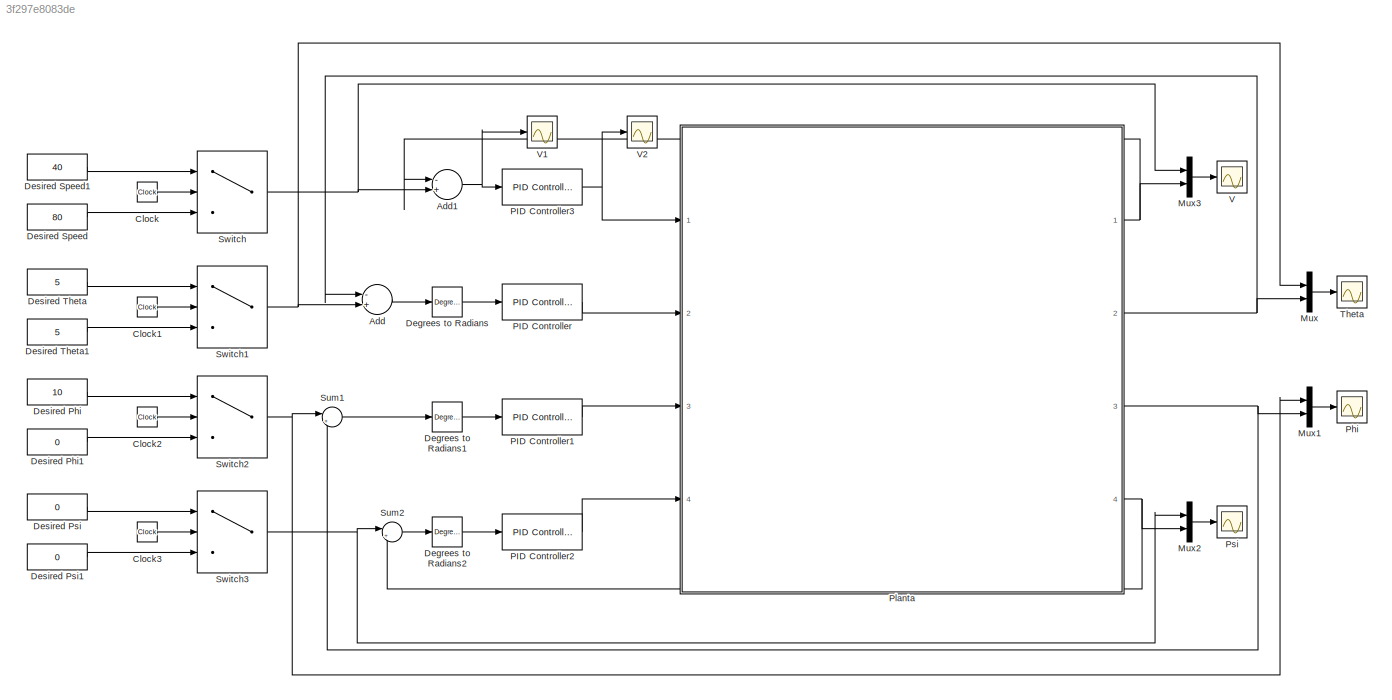
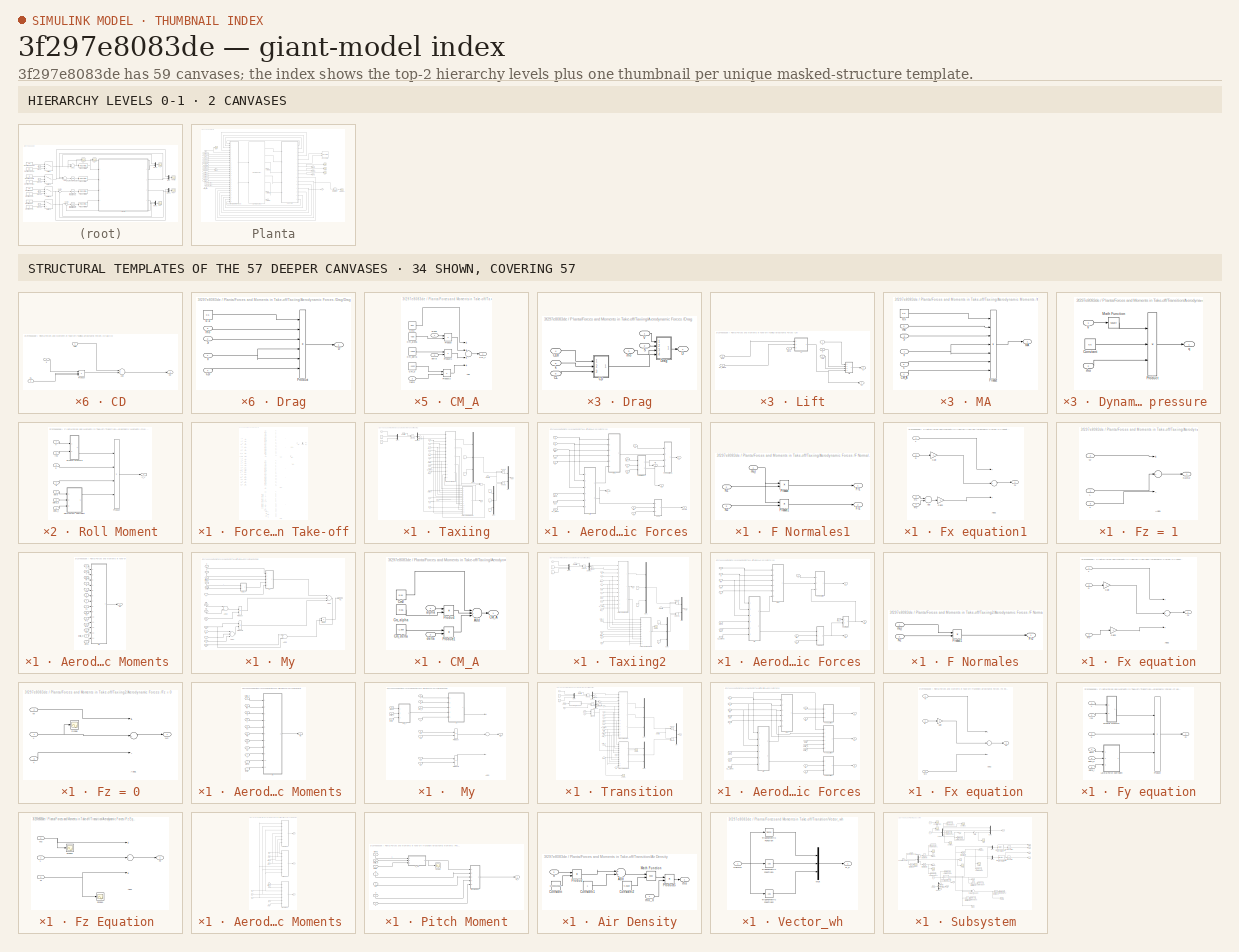
[diagram: thumbnail index - top-2 hierarchy levels (2 canvases) + 34 structural-template representatives of the remaining 57 canvases]
MODEL slx_3f297e8083de
KIND model
CONFIG AbsTol = auto
CONFIG FixedStep = 0.001
CONFIG MaxStep = auto
CONFIG MinStep = auto
CONFIG RelTol = 1e-3
CONFIG SampleTimeConstraint = Unconstrained
CONFIG Solver = ode45
CONFIG SolverMode = Auto
CONFIG SolverName = ode45
CONFIG StartTime = 0
CONFIG StopTime = 1000
BLOCK [Sum] Add
  InputSameDT = off
  Inputs = -+
  OutDataTypeStr = Inherit: Inherit via internal rule
  Ports = [2, 1]
  SaturateOnIntegerOverflow = off
BLOCK [Sum] Add1
  InputSameDT = off
  Inputs = -+
  OutDataTypeStr = Inherit: Inherit via internal rule
  Ports = [2, 1]
  SaturateOnIntegerOverflow = off
BLOCK [Clock] Clock
  DisplayTime = on
BLOCK [Clock] Clock1
  DisplayTime = on
BLOCK [Clock] Clock2
  DisplayTime = on
BLOCK [Clock] Clock3
  DisplayTime = on
BLOCK [Reference] Degrees to Radians  REF=simulink_extras/Transformations/Degrees to
Radians
  Ports = [1, 1]
  SourceBlock = simulink_extras/Transformations/Degrees to\nRadians
  SourceType = DegreesToRadians
BLOCK [Reference] Degrees to Radians1  REF=simulink_extras/Transformations/Degrees to
Radians
  Ports = [1, 1]
  SourceBlock = simulink_extras/Transformations/Degrees to\nRadians
  SourceType = DegreesToRadians
BLOCK [Reference] Degrees to Radians2  REF=simulink_extras/Transformations/Degrees to
Radians
  Ports = [1, 1]
  SourceBlock = simulink_extras/Transformations/Degrees to\nRadians
  SourceType = DegreesToRadians
BLOCK [Constant] Desired Phi
  Value = 10
BLOCK [Constant] Desired Phi1
  Value = 0
BLOCK [Constant] Desired Psi
  Value = 0
BLOCK [Constant] Desired Psi1
  Value = 0
BLOCK [Constant] Desired Speed
  Value = 80
BLOCK [Constant] Desired Speed1
  Value = 40
BLOCK [Constant] Desired Theta
  Value = 5
BLOCK [Constant] Desired Theta1
  Value = 5
BLOCK [Mux] Mux
  DisplayOption = bar
  Inputs = 2
  Ports = [2, 1]
BLOCK [Mux] Mux1
  DisplayOption = bar
  Inputs = 2
  Ports = [2, 1]
BLOCK [Mux] Mux2
  DisplayOption = bar
  Inputs = 2
  Ports = [2, 1]
BLOCK [Mux] Mux3
  DisplayOption = bar
  Inputs = 2
  Ports = [2, 1]
BLOCK [Reference] PID Controller  REF=simulink/Continuous/PID Controller
  Ports = [1, 1]
  SourceBlock = simulink/Continuous/PID Controller
  SourceType = PID 1dof
BLOCK [Reference] PID Controller1  REF=simulink/Continuous/PID Controller
  Ports = [1, 1]
  SourceBlock = simulink/Continuous/PID Controller
  SourceType = PID 1dof
BLOCK [Reference] PID Controller2  REF=simulink/Continuous/PID Controller
  Ports = [1, 1]
  SourceBlock = simulink/Continuous/PID Controller
  SourceType = PID 1dof
BLOCK [Reference] PID Controller3  REF=simulink/Continuous/PID Controller
  Ports = [1, 1]
  SourceBlock = simulink/Continuous/PID Controller
  SourceType = PID 1dof
BLOCK [Scope] Phi 
  Ports = [1]
  ScopeSpecificationString = Simulink.scopes.TimeScopeBlockCfg('CurrentConfiguration', extmgr.ConfigurationSet(extmgr.Configuration('Core','General UI',true),extmgr.Configuration('Core','Source UI',true),extmgr.Configuration('Sources','WiredSimulink',true,'DataLoggingVariableName','ScopeData1'),extmgr.Configuration('Visuals','Time Domain',true,'SerializedDisplays',{struct('MinYLimReal','-4.63956','MaxYLimReal','16.02574','YLa...<+1426ch>
BLOCK [SubSystem] Planta
  Ports = [4, 4]
  RequestExecContextInheritance = off
  Variant = off
BLOCK [Reference] Planta/6DoF (Euler Angles)1  REF=aerolibobsolete/6DoF (Euler Angles)
  Ports = [2, 8]
  SourceBlock = aerolibobsolete/6DoF (Euler Angles)
  SourceType = 6DoF EoM (Body Axis)
BLOCK [Reference] Planta/6DoF Animation  REF=aerolibanim/6DoF Animation
  Ports = [2]
  SourceBlock = aerolibanim/6DoF Animation
  SourceType = 6DoF_Animation
BLOCK [Constant] Planta/CD0
  Value = 0.0269
BLOCK [Constant] Planta/CL0
  Value = 0.309
BLOCK [Constant] Planta/CL_alpha 
  Value = 4.608
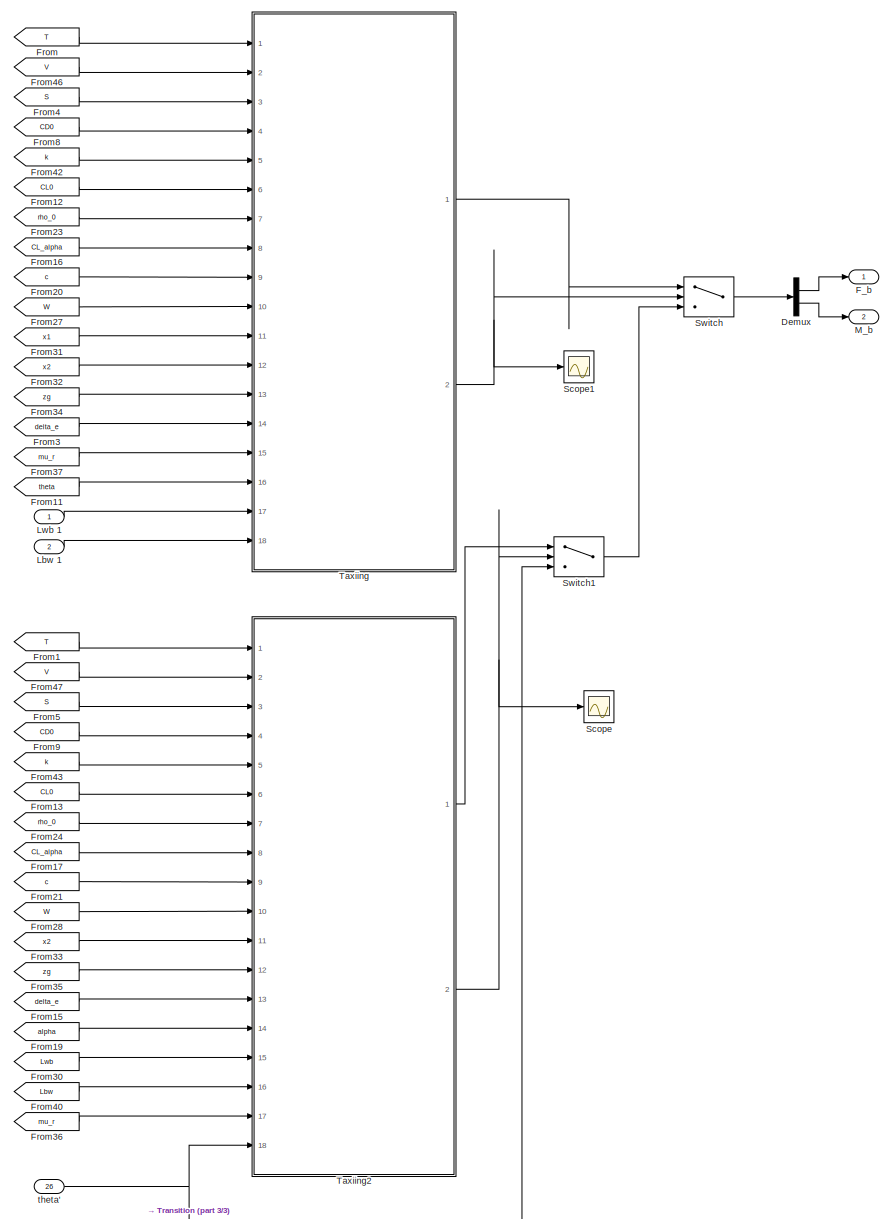
[diagram: Planta/Forces and Moments in Take-off - part 1/3, middle right region]
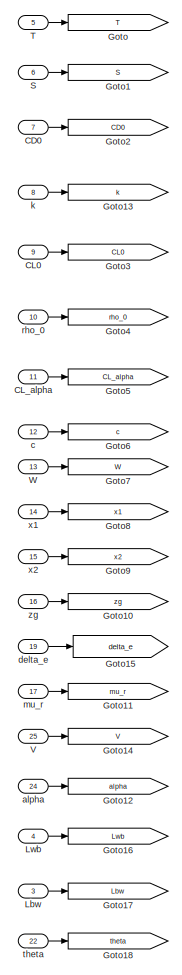
[diagram: Planta/Forces and Moments in Take-off - part 2/3, middle left region]
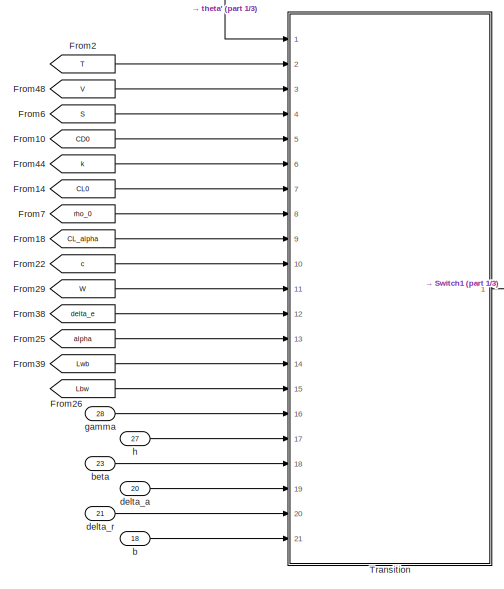
[diagram: Planta/Forces and Moments in Take-off - part 3/3, bottom center region]
BLOCK [SubSystem] Planta/Forces and Moments in Take-off
  Ports = [28, 2]
  RequestExecContextInheritance = off
  Variant = off
BLOCK [Inport] Planta/Forces and Moments in Take-off/CD0
  IconDisplay = Port number
  Port = 7
BLOCK [Inport] Planta/Forces and Moments in Take-off/CL0
  IconDisplay = Port number
  Port = 9
BLOCK [Inport] Planta/Forces and Moments in Take-off/CL_alpha
  IconDisplay = Port number
  Port = 11
BLOCK [Demux] Planta/Forces and Moments in Take-off/Demux
  DisplayOption = bar
  Outputs = 2
  Ports = [1, 2]
BLOCK [Outport] Planta/Forces and Moments in Take-off/F_b
  IconDisplay = Port number
BLOCK [From] Planta/Forces and Moments in Take-off/From
  GotoTag = T
BLOCK [From] Planta/Forces and Moments in Take-off/From1
  GotoTag = T
BLOCK [From] Planta/Forces and Moments in Take-off/From10
  GotoTag = CD0
BLOCK [From] Planta/Forces and Moments in Take-off/From11
  GotoTag = theta
BLOCK [From] Planta/Forces and Moments in Take-off/From12
  GotoTag = CL0
BLOCK [From] Planta/Forces and Moments in Take-off/From13
  GotoTag = CL0
BLOCK [From] Planta/Forces and Moments in Take-off/From14
  GotoTag = CL0
BLOCK [From] Planta/Forces and Moments in Take-off/From15
  GotoTag = delta_e
BLOCK [From] Planta/Forces and Moments in Take-off/From16
  GotoTag = CL_alpha
BLOCK [From] Planta/Forces and Moments in Take-off/From17
  GotoTag = CL_alpha
BLOCK [From] Planta/Forces and Moments in Take-off/From18
  GotoTag = CL_alpha
BLOCK [From] Planta/Forces and Moments in Take-off/From19
  GotoTag = alpha
BLOCK [From] Planta/Forces and Moments in Take-off/From2
  GotoTag = T
BLOCK [From] Planta/Forces and Moments in Take-off/From20
  GotoTag = c
BLOCK [From] Planta/Forces and Moments in Take-off/From21
  GotoTag = c
BLOCK [From] Planta/Forces and Moments in Take-off/From22
  GotoTag = c
BLOCK [From] Planta/Forces and Moments in Take-off/From23
  GotoTag = rho_0
BLOCK [From] Planta/Forces and Moments in Take-off/From24
  GotoTag = rho_0
BLOCK [From] Planta/Forces and Moments in Take-off/From25
  GotoTag = alpha
BLOCK [From] Planta/Forces and Moments in Take-off/From26
  GotoTag = Lbw
BLOCK [From] Planta/Forces and Moments in Take-off/From27
  GotoTag = W
BLOCK [From] Planta/Forces and Moments in Take-off/From28
  GotoTag = W
BLOCK [From] Planta/Forces and Moments in Take-off/From29
  GotoTag = W
BLOCK [From] Planta/Forces and Moments in Take-off/From3
  GotoTag = delta_e
BLOCK [From] Planta/Forces and Moments in Take-off/From30
  GotoTag = Lwb
BLOCK [From] Planta/Forces and Moments in Take-off/From31
  GotoTag = x1
BLOCK [From] Planta/Forces and Moments in Take-off/From32
  GotoTag = x2
BLOCK [From] Planta/Forces and Moments in Take-off/From33
  GotoTag = x2
BLOCK [From] Planta/Forces and Moments in Take-off/From34
  GotoTag = zg
BLOCK [From] Planta/Forces and Moments in Take-off/From35
  GotoTag = zg
BLOCK [From] Planta/Forces and Moments in Take-off/From36
  GotoTag = mu_r
BLOCK [From] Planta/Forces and Moments in Take-off/From37
  GotoTag = mu_r
BLOCK [From] Planta/Forces and Moments in Take-off/From38
  GotoTag = delta_e
BLOCK [From] Planta/Forces and Moments in Take-off/From39
  GotoTag = Lwb
BLOCK [From] Planta/Forces and Moments in Take-off/From4
  GotoTag = S
BLOCK [From] Planta/Forces and Moments in Take-off/From40
  GotoTag = Lbw
BLOCK [From] Planta/Forces and Moments in Take-off/From42
  GotoTag = k
BLOCK [From] Planta/Forces and Moments in Take-off/From43
  GotoTag = k
BLOCK [From] Planta/Forces and Moments in Take-off/From44
  GotoTag = k
BLOCK [From] Planta/Forces and Moments in Take-off/From46
  GotoTag = V
BLOCK [From] Planta/Forces and Moments in Take-off/From47
  GotoTag = V
BLOCK [From] Planta/Forces and Moments in Take-off/From48
  GotoTag = V
BLOCK [From] Planta/Forces and Moments in Take-off/From5
  GotoTag = S
BLOCK [From] Planta/Forces and Moments in Take-off/From6
  GotoTag = S
BLOCK [From] Planta/Forces and Moments in Take-off/From7
  GotoTag = rho_0
BLOCK [From] Planta/Forces and Moments in Take-off/From8
  GotoTag = CD0
BLOCK [From] Planta/Forces and Moments in Take-off/From9
  GotoTag = CD0
BLOCK [Goto] Planta/Forces and Moments in Take-off/Goto
  GotoTag = T
BLOCK [Goto] Planta/Forces and Moments in Take-off/Goto1
  GotoTag = S
BLOCK [Goto] Planta/Forces and Moments in Take-off/Goto10
  GotoTag = zg
BLOCK [Goto] Planta/Forces and Moments in Take-off/Goto11
  GotoTag = mu_r
BLOCK [Goto] Planta/Forces and Moments in Take-off/Goto12
  GotoTag = alpha
BLOCK [Goto] Planta/Forces and Moments in Take-off/Goto13
  GotoTag = k
BLOCK [Goto] Planta/Forces and Moments in Take-off/Goto14
  GotoTag = V
BLOCK [Goto] Planta/Forces and Moments in Take-off/Goto15
  GotoTag = delta_e
BLOCK [Goto] Planta/Forces and Moments in Take-off/Goto16
  GotoTag = Lwb
BLOCK [Goto] Planta/Forces and Moments in Take-off/Goto17
  GotoTag = Lbw
BLOCK [Goto] Planta/Forces and Moments in Take-off/Goto18
  GotoTag = theta
BLOCK [Goto] Planta/Forces and Moments in Take-off/Goto2
  GotoTag = CD0
BLOCK [Goto] Planta/Forces and Moments in Take-off/Goto3
  GotoTag = CL0
BLOCK [Goto] Planta/Forces and Moments in Take-off/Goto4
  GotoTag = rho_0
BLOCK [Goto] Planta/Forces and Moments in Take-off/Goto5
  GotoTag = CL_alpha
BLOCK [Goto] Planta/Forces and Moments in Take-off/Goto6
  GotoTag = c
BLOCK [Goto] Planta/Forces and Moments in Take-off/Goto7
  GotoTag = W
BLOCK [Goto] Planta/Forces and Moments in Take-off/Goto8
  GotoTag = x1
BLOCK [Goto] Planta/Forces and Moments in Take-off/Goto9
  GotoTag = x2
BLOCK [Inport] Planta/Forces and Moments in Take-off/Lbw
  IconDisplay = Port number
  Port = 3
BLOCK [Inport] Planta/Forces and Moments in Take-off/Lbw 1
  IconDisplay = Port number
  Port = 2
BLOCK [Inport] Planta/Forces and Moments in Take-off/Lwb
  IconDisplay = Port number
  Port = 4
BLOCK [Inport] Planta/Forces and Moments in Take-off/Lwb 1
  IconDisplay = Port number
BLOCK [Outport] Planta/Forces and Moments in Take-off/M_b
  IconDisplay = Port number
  Port = 2
BLOCK [Inport] Planta/Forces and Moments in Take-off/S
  IconDisplay = Port number
  Port = 6
BLOCK [Scope] Planta/Forces and Moments in Take-off/Scope
  Ports = [1]
  ScopeSpecificationString = Simulink.scopes.TimeScopeBlockCfg('CurrentConfiguration', extmgr.ConfigurationSet(extmgr.Configuration('Core','General UI',true),extmgr.Configuration('Core','Source UI',true),extmgr.Configuration('Sources','WiredSimulink',true,'DataLoggingVariableName','ScopeData4','DataLoggingSaveFormat','StructureWithTime','DataLoggingLimitDataPoints',true,'DataLoggingDecimation','1','DataLoggingDecimateData',tr...<+909ch>
BLOCK [Scope] Planta/Forces and Moments in Take-off/Scope1
  Ports = [1]
  ScopeSpecificationString = Simulink.scopes.TimeScopeBlockCfg('CurrentConfiguration', extmgr.ConfigurationSet(extmgr.Configuration('Core','General UI',true),extmgr.Configuration('Core','Source UI',true),extmgr.Configuration('Sources','WiredSimulink',true,'DataLoggingVariableName','ScopeData6','DataLoggingSaveFormat','StructureWithTime','DataLoggingLimitDataPoints',true,'DataLoggingDecimation','1','DataLoggingDecimateData',tr...<+1710ch>
BLOCK [Switch] Planta/Forces and Moments in Take-off/Switch
  Criteria = u2 > Threshold
  InputSameDT = off
  SaturateOnIntegerOverflow = off
  Threshold = 0.1
BLOCK [Switch] Planta/Forces and Moments in Take-off/Switch1
  Criteria = u2 > Threshold
  InputSameDT = off
  SaturateOnIntegerOverflow = off
  Threshold = 5
  ZeroCross = off
BLOCK [Inport] Planta/Forces and Moments in Take-off/T
  IconDisplay = Port number
  Port = 5
BLOCK [SubSystem] Planta/Forces and Moments in Take-off/Taxiing
  Ports = [18, 2]
  RequestExecContextInheritance = off
  Variant = off
BLOCK [Sum] Planta/Forces and Moments in Take-off/Taxiing/ 
  InputSameDT = off
  Inputs = +-
  OutDataTypeStr = Inherit: Inherit via internal rule
  Ports = [2, 1]
  SaturateOnIntegerOverflow = off
BLOCK [SubSystem] Planta/Forces and Moments in Take-off/Taxiing/Aerodynamic Forces 
  Ports = [14, 5]
  RequestExecContextInheritance = off
  Variant = off
BLOCK [Inport] Planta/Forces and Moments in Take-off/Taxiing/Aerodynamic Forces /CD0
  IconDisplay = Port number
  Port = 7
BLOCK [Inport] Planta/Forces and Moments in Take-off/Taxiing/Aerodynamic Forces /CL0
  IconDisplay = Port number
  Port = 10
BLOCK [Inport] Planta/Forces and Moments in Take-off/Taxiing/Aerodynamic Forces /CL_alpha
  IconDisplay = Port number
  Port = 11
BLOCK [SubSystem] Planta/Forces and Moments in Take-off/Taxiing/Aerodynamic Forces /Drag
  Ports = [6, 1]
  RequestExecContextInheritance = off
  Variant = off
BLOCK [SubSystem] Planta/Forces and Moments in Take-off/Taxiing/Aerodynamic Forces /Drag/CD
  Ports = [3, 1]
  RequestExecContextInheritance = off
  Variant = off
BLOCK [Sum] Planta/Forces and Moments in Take-off/Taxiing/Aerodynamic Forces /Drag/CD/Add
  InputSameDT = off
  OutDataTypeStr = Inherit: Inherit via internal rule
  Ports = [2, 1]
  SaturateOnIntegerOverflow = off
BLOCK [Outport] Planta/Forces and Moments in Take-off/Taxiing/Aerodynamic Forces /Drag/CD/CD
  IconDisplay = Port number
BLOCK [Inport] Planta/Forces and Moments in Take-off/Taxiing/Aerodynamic Forces /Drag/CD/CD0
  IconDisplay = Port number
BLOCK [Inport] Planta/Forces and Moments in Take-off/Taxiing/Aerodynamic Forces /Drag/CD/CL
  IconDisplay = Port number
  Port = 3
BLOCK [Product] Planta/Forces and Moments in Take-off/Taxiing/Aerodynamic Forces /Drag/CD/Product
  InputSameDT = off
  Inputs = 3
  OutDataTypeStr = Inherit: Inherit via internal rule
  Ports = [3, 1]
  RndMeth = Floor
  SaturateOnIntegerOverflow = off
BLOCK [Inport] Planta/Forces and Moments in Take-off/Taxiing/Aerodynamic Forces /Drag/CD/k
  IconDisplay = Port number
  Port = 2
BLOCK [Inport] Planta/Forces and Moments in Take-off/Taxiing/Aerodynamic Forces /Drag/CD0
  IconDisplay = Port number
  Port = 4
BLOCK [Inport] Planta/Forces and Moments in Take-off/Taxiing/Aerodynamic Forces /Drag/CL
  IconDisplay = Port number
  Port = 6
BLOCK [Outport] Planta/Forces and Moments in Take-off/Taxiing/Aerodynamic Forces /Drag/D
  IconDisplay = Port number
BLOCK [SubSystem] Planta/Forces and Moments in Take-off/Taxiing/Aerodynamic Forces /Drag/Drag
  Ports = [4, 1]
  RequestExecContextInheritance = off
  Variant = off
BLOCK [Constant] Planta/Forces and Moments in Take-off/Taxiing/Aerodynamic Forces /Drag/Drag/0.5 
  Value = 0.5
BLOCK [Inport] Planta/Forces and Moments in Take-off/Taxiing/Aerodynamic Forces /Drag/Drag/CD
  IconDisplay = Port number
  Port = 4
BLOCK [Outport] Planta/Forces and Moments in Take-off/Taxiing/Aerodynamic Forces /Drag/Drag/D
  IconDisplay = Port number
BLOCK [Product] Planta/Forces and Moments in Take-off/Taxiing/Aerodynamic Forces /Drag/Drag/Product
  InputSameDT = off
  Inputs = 6
  OutDataTypeStr = Inherit: Inherit via internal rule
  Ports = [6, 1]
  RndMeth = Floor
  SaturateOnIntegerOverflow = off
BLOCK [Inport] Planta/Forces and Moments in Take-off/Taxiing/Aerodynamic Forces /Drag/Drag/S
  IconDisplay = Port number
  Port = 2
BLOCK [Inport] Planta/Forces and Moments in Take-off/Taxiing/Aerodynamic Forces /Drag/Drag/V
  IconDisplay = Port number
BLOCK [Inport] Planta/Forces and Moments in Take-off/Taxiing/Aerodynamic Forces /Drag/Drag/rho
  IconDisplay = Port number
  Port = 3
BLOCK [Inport] Planta/Forces and Moments in Take-off/Taxiing/Aerodynamic Forces /Drag/S
  IconDisplay = Port number
  Port = 2
BLOCK [Inport] Planta/Forces and Moments in Take-off/Taxiing/Aerodynamic Forces /Drag/V
  IconDisplay = Port number
BLOCK [Inport] Planta/Forces and Moments in Take-off/Taxiing/Aerodynamic Forces /Drag/k
  IconDisplay = Port number
  Port = 5
BLOCK [Inport] Planta/Forces and Moments in Take-off/Taxiing/Aerodynamic Forces /Drag/rho
  IconDisplay = Port number
  Port = 3
BLOCK [SubSystem] Planta/Forces and Moments in Take-off/Taxiing/Aerodynamic Forces /F Normales1
  Ports = [3, 2]
  RequestExecContextInheritance = off
  Variant = off
BLOCK [Outport] Planta/Forces and Moments in Take-off/Taxiing/Aerodynamic Forces /F Normales1/Fr1 
  IconDisplay = Port number
BLOCK [Outport] Planta/Forces and Moments in Take-off/Taxiing/Aerodynamic Forces /F Normales1/Fr2
  IconDisplay = Port number
  Port = 2
BLOCK [Inport] Planta/Forces and Moments in Take-off/Taxiing/Aerodynamic Forces /F Normales1/N1
  IconDisplay = Port number
  Port = 2
BLOCK [Inport] Planta/Forces and Moments in Take-off/Taxiing/Aerodynamic Forces /F Normales1/N2
  IconDisplay = Port number
  Port = 3
BLOCK [Product] Planta/Forces and Moments in Take-off/Taxiing/Aerodynamic Forces /F Normales1/Product
  InputSameDT = off
  OutDataTypeStr = Inherit: Inherit via internal rule
  Ports = [2, 1]
  RndMeth = Floor
  SaturateOnIntegerOverflow = off
BLOCK [Product] Planta/Forces and Moments in Take-off/Taxiing/Aerodynamic Forces /F Normales1/Product1
  InputSameDT = off
  OutDataTypeStr = Inherit: Inherit via internal rule
  Ports = [2, 1]
  RndMeth = Floor
  SaturateOnIntegerOverflow = off
BLOCK [Inport] Planta/Forces and Moments in Take-off/Taxiing/Aerodynamic Forces /F Normales1/mu_r
  IconDisplay = Port number
BLOCK [Outport] Planta/Forces and Moments in Take-off/Taxiing/Aerodynamic Forces /Fr1
  IconDisplay = Port number
  Port = 5
BLOCK [Outport] Planta/Forces and Moments in Take-off/Taxiing/Aerodynamic Forces /Fr2
  IconDisplay = Port number
  Port = 3
BLOCK [Outport] Planta/Forces and Moments in Take-off/Taxiing/Aerodynamic Forces /Fx
  IconDisplay = Port number
BLOCK [SubSystem] Planta/Forces and Moments in Take-off/Taxiing/Aerodynamic Forces /Fx equation1
  Ports = [4, 1]
  RequestExecContextInheritance = off
  Variant = off
BLOCK [Sum] Planta/Forces and Moments in Take-off/Taxiing/Aerodynamic Forces /Fx equation1/Add
  InputSameDT = off
  OutDataTypeStr = Inherit: Inherit via internal rule
  Ports = [2, 1]
  SaturateOnIntegerOverflow = off
BLOCK [Sum] Planta/Forces and Moments in Take-off/Taxiing/Aerodynamic Forces /Fx equation1/Add2
  InputSameDT = off
  Inputs = +++
  OutDataTypeStr = Inherit: Inherit via internal rule
  Ports = [3, 1]
  SaturateOnIntegerOverflow = off
BLOCK [Inport] Planta/Forces and Moments in Take-off/Taxiing/Aerodynamic Forces /Fx equation1/D
  IconDisplay = Port number
  Port = 2
BLOCK [Inport] Planta/Forces and Moments in Take-off/Taxiing/Aerodynamic Forces /Fx equation1/Fr1
  IconDisplay = Port number
  Port = 3
BLOCK [Inport] Planta/Forces and Moments in Take-off/Taxiing/Aerodynamic Forces /Fx equation1/Fr2
  IconDisplay = Port number
  Port = 4
BLOCK [Outport] Planta/Forces and Moments in Take-off/Taxiing/Aerodynamic Forces /Fx equation1/Fx
  IconDisplay = Port number
BLOCK [Gain] Planta/Forces and Moments in Take-off/Taxiing/Aerodynamic Forces /Fx equation1/Gain
  Gain = -1
  OutDataTypeStr = Inherit: Inherit via internal rule
  ParamDataTypeStr = Inherit: Inherit via internal rule
  SaturateOnIntegerOverflow = off
BLOCK [Gain] Planta/Forces and Moments in Take-off/Taxiing/Aerodynamic Forces /Fx equation1/Gain2
  Gain = -1
  OutDataTypeStr = Inherit: Inherit via internal rule
  ParamDataTypeStr = Inherit: Inherit via internal rule
  SaturateOnIntegerOverflow = off
BLOCK [Inport] Planta/Forces and Moments in Take-off/Taxiing/Aerodynamic Forces /Fx equation1/T
  IconDisplay = Port number
BLOCK [SubSystem] Planta/Forces and Moments in Take-off/Taxiing/Aerodynamic Forces /Fz = 1
  Ports = [3, 1]
  RequestExecContextInheritance = off
  Variant = off
BLOCK [Sum] Planta/Forces and Moments in Take-off/Taxiing/Aerodynamic Forces /Fz = 1/Add1
  InputSameDT = off
  Inputs = +--
  OutDataTypeStr = Inherit: Inherit via internal rule
  Ports = [3, 1]
  SaturateOnIntegerOverflow = off
BLOCK [Inport] Planta/Forces and Moments in Take-off/Taxiing/Aerodynamic Forces /Fz = 1/L
  IconDisplay = Port number
BLOCK [Outport] Planta/Forces and Moments in Take-off/Taxiing/Aerodynamic Forces /Fz = 1/N1+N2
  IconDisplay = Port number
BLOCK [Inport] Planta/Forces and Moments in Take-off/Taxiing/Aerodynamic Forces /Fz = 1/T
  IconDisplay = Port number
  Port = 3
BLOCK [Inport] Planta/Forces and Moments in Take-off/Taxiing/Aerodynamic Forces /Fz = 1/W
  IconDisplay = Port number
  Port = 2
BLOCK [Outport] Planta/Forces and Moments in Take-off/Taxiing/Aerodynamic Forces /L
  IconDisplay = Port number
  Port = 4
BLOCK [SubSystem] Planta/Forces and Moments in Take-off/Taxiing/Aerodynamic Forces /Lift
  Ports = [6, 2]
  RequestExecContextInheritance = off
  Variant = off
BLOCK [Outport] Planta/Forces and Moments in Take-off/Taxiing/Aerodynamic Forces /Lift/CL
  IconDisplay = Port number
BLOCK [SubSystem] Planta/Forces and Moments in Take-off/Taxiing/Aerodynamic Forces /Lift/CL 
  Ports = [3, 1]
  RequestExecContextInheritance = off
  Variant = off
BLOCK [Sum] Planta/Forces and Moments in Take-off/Taxiing/Aerodynamic Forces /Lift/CL /Add
  InputSameDT = off
  OutDataTypeStr = Inherit: Inherit via internal rule
  Ports = [2, 1]
  SaturateOnIntegerOverflow = off
BLOCK [Outport] Planta/Forces and Moments in Take-off/Taxiing/Aerodynamic Forces /Lift/CL /CL 
  IconDisplay = Port number
BLOCK [Inport] Planta/Forces and Moments in Take-off/Taxiing/Aerodynamic Forces /Lift/CL /CL0
  IconDisplay = Port number
BLOCK [Inport] Planta/Forces and Moments in Take-off/Taxiing/Aerodynamic Forces /Lift/CL /CL_alpha
  IconDisplay = Port number
  Port = 2
BLOCK [Product] Planta/Forces and Moments in Take-off/Taxiing/Aerodynamic Forces /Lift/CL /Product
  InputSameDT = off
  OutDataTypeStr = Inherit: Inherit via internal rule
  Ports = [2, 1]
  RndMeth = Floor
  SaturateOnIntegerOverflow = off
BLOCK [Inport] Planta/Forces and Moments in Take-off/Taxiing/Aerodynamic Forces /Lift/CL /alpha
  IconDisplay = Port number
  Port = 3
BLOCK [Inport] Planta/Forces and Moments in Take-off/Taxiing/Aerodynamic Forces /Lift/CL0
  IconDisplay = Port number
  Port = 5
BLOCK [Inport] Planta/Forces and Moments in Take-off/Taxiing/Aerodynamic Forces /Lift/CL_alpha
  IconDisplay = Port number
  Port = 6
BLOCK [Outport] Planta/Forces and Moments in Take-off/Taxiing/Aerodynamic Forces /Lift/L
  IconDisplay = Port number
  Port = 2
BLOCK [SubSystem] Planta/Forces and Moments in Take-off/Taxiing/Aerodynamic Forces /Lift/Lift
  Ports = [4, 1]
  RequestExecContextInheritance = off
  Variant = off
BLOCK [Constant] Planta/Forces and Moments in Take-off/Taxiing/Aerodynamic Forces /Lift/Lift/0.5 
  Value = 0.5
BLOCK [Inport] Planta/Forces and Moments in Take-off/Taxiing/Aerodynamic Forces /Lift/Lift/CL
  IconDisplay = Port number
  Port = 4
BLOCK [Outport] Planta/Forces and Moments in Take-off/Taxiing/Aerodynamic Forces /Lift/Lift/L
  IconDisplay = Port number
BLOCK [Product] Planta/Forces and Moments in Take-off/Taxiing/Aerodynamic Forces /Lift/Lift/Product
  InputSameDT = off
  Inputs = 6
  OutDataTypeStr = Inherit: Inherit via internal rule
  Ports = [6, 1]
  RndMeth = Floor
  SaturateOnIntegerOverflow = off
BLOCK [Inport] Planta/Forces and Moments in Take-off/Taxiing/Aerodynamic Forces /Lift/Lift/S
  IconDisplay = Port number
  Port = 2
BLOCK [Inport] Planta/Forces and Moments in Take-off/Taxiing/Aerodynamic Forces /Lift/Lift/V
  IconDisplay = Port number
BLOCK [Inport] Planta/Forces and Moments in Take-off/Taxiing/Aerodynamic Forces /Lift/Lift/rho
  IconDisplay = Port number
  Port = 3
BLOCK [Inport] Planta/Forces and Moments in Take-off/Taxiing/Aerodynamic Forces /Lift/S
  IconDisplay = Port number
  Port = 2
BLOCK [Inport] Planta/Forces and Moments in Take-off/Taxiing/Aerodynamic Forces /Lift/V
  IconDisplay = Port number
BLOCK [Inport] Planta/Forces and Moments in Take-off/Taxiing/Aerodynamic Forces /Lift/alpha
  IconDisplay = Port number
  Port = 4
BLOCK [Inport] Planta/Forces and Moments in Take-off/Taxiing/Aerodynamic Forces /Lift/rho
  IconDisplay = Port number
  Port = 3
BLOCK [Inport] Planta/Forces and Moments in Take-off/Taxiing/Aerodynamic Forces /N1
  IconDisplay = Port number
  Port = 14
BLOCK [Outport] Planta/Forces and Moments in Take-off/Taxiing/Aerodynamic Forces /N1+N2
  IconDisplay = Port number
  Port = 2
BLOCK [Inport] Planta/Forces and Moments in Take-off/Taxiing/Aerodynamic Forces /N2
  IconDisplay = Port number
  Port = 13
BLOCK [Inport] Planta/Forces and Moments in Take-off/Taxiing/Aerodynamic Forces /S
  IconDisplay = Port number
  Port = 6
BLOCK [Inport] Planta/Forces and Moments in Take-off/Taxiing/Aerodynamic Forces /Tx 
  IconDisplay = Port number
BLOCK [Inport] Planta/Forces and Moments in Take-off/Taxiing/Aerodynamic Forces /Tz 
  IconDisplay = Port number
  Port = 2
BLOCK [Inport] Planta/Forces and Moments in Take-off/Taxiing/Aerodynamic Forces /V
  IconDisplay = Port number
  Port = 4
BLOCK [Inport] Planta/Forces and Moments in Take-off/Taxiing/Aerodynamic Forces /Wz
  IconDisplay = Port number
  Port = 3
BLOCK [Inport] Planta/Forces and Moments in Take-off/Taxiing/Aerodynamic Forces /alpha
  IconDisplay = Port number
  Port = 9
BLOCK [Inport] Planta/Forces and Moments in Take-off/Taxiing/Aerodynamic Forces /k
  IconDisplay = Port number
  Port = 8
BLOCK [Inport] Planta/Forces and Moments in Take-off/Taxiing/Aerodynamic Forces /mu_r
  IconDisplay = Port number
  Port = 12
BLOCK [Inport] Planta/Forces and Moments in Take-off/Taxiing/Aerodynamic Forces /rho
  IconDisplay = Port number
  Port = 5
BLOCK [SubSystem] Planta/Forces and Moments in Take-off/Taxiing/Aerodynamic Moments 
  Ports = [14, 1]
  RequestExecContextInheritance = off
  Variant = off
BLOCK [Inport] Planta/Forces and Moments in Take-off/Taxiing/Aerodynamic Moments /Fr1
  IconDisplay = Port number
  Port = 9
BLOCK [Inport] Planta/Forces and Moments in Take-off/Taxiing/Aerodynamic Moments /Fr2
  IconDisplay = Port number
  Port = 10
BLOCK [Inport] Planta/Forces and Moments in Take-off/Taxiing/Aerodynamic Moments /L
  IconDisplay = Port number
  Port = 12
BLOCK [SubSystem] Planta/Forces and Moments in Take-off/Taxiing/Aerodynamic Moments /My 
  Ports = [14, 1]
  RequestExecContextInheritance = off
  Variant = off
BLOCK [Sum] Planta/Forces and Moments in Take-off/Taxiing/Aerodynamic Moments /My /Add1
  InputSameDT = off
  Inputs = -++
  OutDataTypeStr = Inherit: Inherit via internal rule
  Ports = [3, 1]
  SaturateOnIntegerOverflow = off
BLOCK [Sum] Planta/Forces and Moments in Take-off/Taxiing/Aerodynamic Moments /My /Add2
  InputSameDT = off
  OutDataTypeStr = Inherit: Inherit via internal rule
  Ports = [2, 1]
  SaturateOnIntegerOverflow = off
BLOCK [Sum] Planta/Forces and Moments in Take-off/Taxiing/Aerodynamic Moments /My /Add4
  InputSameDT = off
  Inputs = +--
  OutDataTypeStr = Inherit: Inherit via internal rule
  Ports = [3, 1]
  SaturateOnIntegerOverflow = off
BLOCK [Sum] Planta/Forces and Moments in Take-off/Taxiing/Aerodynamic Moments /My /Add5
  InputSameDT = off
  OutDataTypeStr = Inherit: Inherit via internal rule
  Ports = [2, 1]
  SaturateOnIntegerOverflow = off
BLOCK [SubSystem] Planta/Forces and Moments in Take-off/Taxiing/Aerodynamic Moments /My /CM_A
  Ports = [2, 1]
  RequestExecContextInheritance = off
  Variant = off
BLOCK [Sum] Planta/Forces and Moments in Take-off/Taxiing/Aerodynamic Moments /My /CM_A/Add
  InputSameDT = off
  Inputs = +++
  OutDataTypeStr = Inherit: Inherit via internal rule
  Ports = [3, 1]
  SaturateOnIntegerOverflow = off
BLOCK [Outport] Planta/Forces and Moments in Take-off/Taxiing/Aerodynamic Moments /My /CM_A/CM_A
  IconDisplay = Port number
BLOCK [Constant] Planta/Forces and Moments in Take-off/Taxiing/Aerodynamic Moments /My /CM_A/Cm0
  Value = 0.04
BLOCK [Constant] Planta/Forces and Moments in Take-off/Taxiing/Aerodynamic Moments /My /CM_A/Cm_alpha
  Value = -0.65
BLOCK [Constant] Planta/Forces and Moments in Take-off/Taxiing/Aerodynamic Moments /My /CM_A/Cm_delta
  Value = -1.369
BLOCK [Product] Planta/Forces and Moments in Take-off/Taxiing/Aerodynamic Moments /My /CM_A/Product
  InputSameDT = off
  OutDataTypeStr = Inherit: Inherit via internal rule
  Ports = [2, 1]
  RndMeth = Floor
  SaturateOnIntegerOverflow = off
BLOCK [Product] Planta/Forces and Moments in Take-off/Taxiing/Aerodynamic Moments /My /CM_A/Product1
  InputSameDT = off
  OutDataTypeStr = Inherit: Inherit via internal rule
  Ports = [2, 1]
  RndMeth = Floor
  SaturateOnIntegerOverflow = off
BLOCK [Inport] Planta/Forces and Moments in Take-off/Taxiing/Aerodynamic Moments /My /CM_A/alpha
  IconDisplay = Port number
BLOCK [Inport] Planta/Forces and Moments in Take-off/Taxiing/Aerodynamic Moments /My /CM_A/delta
  IconDisplay = Port number
  Port = 2
BLOCK [Product] Planta/Forces and Moments in Take-off/Taxiing/Aerodynamic Moments /My /Divide
  InputSameDT = off
  Inputs = */
  OutDataTypeStr = Inherit: Inherit via internal rule
  Ports = [2, 1]
  RndMeth = Floor
  SaturateOnIntegerOverflow = off
BLOCK [Inport] Planta/Forces and Moments in Take-off/Taxiing/Aerodynamic Moments /My /Fr1
  IconDisplay = Port number
  Port = 10
BLOCK [Inport] Planta/Forces and Moments in Take-off/Taxiing/Aerodynamic Moments /My /Fr2
  IconDisplay = Port number
  Port = 11
BLOCK [Inport] Planta/Forces and Moments in Take-off/Taxiing/Aerodynamic Moments /My /L
  IconDisplay = Port number
BLOCK [SubSystem] Planta/Forces and Moments in Take-off/Taxiing/Aerodynamic Moments /My /MA
  Ports = [5, 1]
  RequestExecContextInheritance = off
  Variant = off
BLOCK [Constant] Planta/Forces and Moments in Take-off/Taxiing/Aerodynamic Moments /My /MA/0.5 
  Value = 0.5
BLOCK [Inport] Planta/Forces and Moments in Take-off/Taxiing/Aerodynamic Moments /My /MA/CM_A
  IconDisplay = Port number
  Port = 4
BLOCK [Outport] Planta/Forces and Moments in Take-off/Taxiing/Aerodynamic Moments /My /MA/MA
  IconDisplay = Port number
BLOCK [Product] Planta/Forces and Moments in Take-off/Taxiing/Aerodynamic Moments /My /MA/Product
  InputSameDT = off
  Inputs = 7
  OutDataTypeStr = Inherit: Inherit via internal rule
  Ports = [7, 1]
  RndMeth = Floor
  SaturateOnIntegerOverflow = off
BLOCK [Inport] Planta/Forces and Moments in Take-off/Taxiing/Aerodynamic Moments /My /MA/S
  IconDisplay = Port number
  Port = 2
BLOCK [Inport] Planta/Forces and Moments in Take-off/Taxiing/Aerodynamic Moments /My /MA/V
  IconDisplay = Port number
BLOCK [Inport] Planta/Forces and Moments in Take-off/Taxiing/Aerodynamic Moments /My /MA/c
  IconDisplay = Port number
  Port = 5
BLOCK [Inport] Planta/Forces and Moments in Take-off/Taxiing/Aerodynamic Moments /My /MA/rho
  IconDisplay = Port number
  Port = 3
BLOCK [Outport] Planta/Forces and Moments in Take-off/Taxiing/Aerodynamic Moments /My /N1
  IconDisplay = Port number
BLOCK [Product] Planta/Forces and Moments in Take-off/Taxiing/Aerodynamic Moments /My /Product
  InputSameDT = off
  OutDataTypeStr = Inherit: Inherit via internal rule
  Ports = [2, 1]
  RndMeth = Floor
  SaturateOnIntegerOverflow = off
BLOCK [Product] Planta/Forces and Moments in Take-off/Taxiing/Aerodynamic Moments /My /Product1
  InputSameDT = off
  OutDataTypeStr = Inherit: Inherit via internal rule
  Ports = [2, 1]
  RndMeth = Floor
  SaturateOnIntegerOverflow = off
BLOCK [Inport] Planta/Forces and Moments in Take-off/Taxiing/Aerodynamic Moments /My /S
  IconDisplay = Port number
  Port = 6
BLOCK [Inport] Planta/Forces and Moments in Take-off/Taxiing/Aerodynamic Moments /My /T
  IconDisplay = Port number
  Port = 2
BLOCK [Inport] Planta/Forces and Moments in Take-off/Taxiing/Aerodynamic Moments /My /V
  IconDisplay = Port number
  Port = 4
BLOCK [Inport] Planta/Forces and Moments in Take-off/Taxiing/Aerodynamic Moments /My /W
  IconDisplay = Port number
  Port = 3
BLOCK [Inport] Planta/Forces and Moments in Take-off/Taxiing/Aerodynamic Moments /My /alpha
  IconDisplay = Port number
  Port = 14
BLOCK [Inport] Planta/Forces and Moments in Take-off/Taxiing/Aerodynamic Moments /My /c
  IconDisplay = Port number
  Port = 7
BLOCK [Inport] Planta/Forces and Moments in Take-off/Taxiing/Aerodynamic Moments /My /delta
  IconDisplay = Port number
  Port = 13
BLOCK [Inport] Planta/Forces and Moments in Take-off/Taxiing/Aerodynamic Moments /My /rho
  IconDisplay = Port number
  Port = 5
BLOCK [Inport] Planta/Forces and Moments in Take-off/Taxiing/Aerodynamic Moments /My /x1
  IconDisplay = Port number
  Port = 8
BLOCK [Inport] Planta/Forces and Moments in Take-off/Taxiing/Aerodynamic Moments /My /x2
  IconDisplay = Port number
  Port = 9
BLOCK [Inport] Planta/Forces and Moments in Take-off/Taxiing/Aerodynamic Moments /My /zg
  IconDisplay = Port number
  Port = 12
BLOCK [Outport] Planta/Forces and Moments in Take-off/Taxiing/Aerodynamic Moments /N1
  IconDisplay = Port number
BLOCK [Inport] Planta/Forces and Moments in Take-off/Taxiing/Aerodynamic Moments /S
  IconDisplay = Port number
  Port = 5
BLOCK [Inport] Planta/Forces and Moments in Take-off/Taxiing/Aerodynamic Moments /T
  IconDisplay = Port number
  Port = 13
BLOCK [Inport] Planta/Forces and Moments in Take-off/Taxiing/Aerodynamic Moments /V
  IconDisplay = Port number
  Port = 3
BLOCK [Inport] Planta/Forces and Moments in Take-off/Taxiing/Aerodynamic Moments /W
  IconDisplay = Port number
  Port = 14
BLOCK [Inport] Planta/Forces and Moments in Take-off/Taxiing/Aerodynamic Moments /alpha
  IconDisplay = Port number
BLOCK [Inport] Planta/Forces and Moments in Take-off/Taxiing/Aerodynamic Moments /c
  IconDisplay = Port number
  Port = 6
BLOCK [Inport] Planta/Forces and Moments in Take-off/Taxiing/Aerodynamic Moments /delta_e
  IconDisplay = Port number
  Port = 2
BLOCK [Inport] Planta/Forces and Moments in Take-off/Taxiing/Aerodynamic Moments /rho
  IconDisplay = Port number
  Port = 4
BLOCK [Inport] Planta/Forces and Moments in Take-off/Taxiing/Aerodynamic Moments /x1
  IconDisplay = Port number
  Port = 7
BLOCK [Inport] Planta/Forces and Moments in Take-off/Taxiing/Aerodynamic Moments /x2
  IconDisplay = Port number
  Port = 8
BLOCK [Inport] Planta/Forces and Moments in Take-off/Taxiing/Aerodynamic Moments /zg
  IconDisplay = Port number
  Port = 11
BLOCK [Inport] Planta/Forces and Moments in Take-off/Taxiing/CD0
  IconDisplay = Port number
  Port = 4
BLOCK [Inport] Planta/Forces and Moments in Take-off/Taxiing/CL0
  IconDisplay = Port number
  Port = 6
BLOCK [Inport] Planta/Forces and Moments in Take-off/Taxiing/CL_alpha
  IconDisplay = Port number
  Port = 8
BLOCK [Demux] Planta/Forces and Moments in Take-off/Taxiing/Demux1
  DisplayOption = bar
  Outputs = 3
  Ports = [1, 3]
BLOCK [Outport] Planta/Forces and Moments in Take-off/Taxiing/F&M
  IconDisplay = Port number
BLOCK [Constant] Planta/Forces and Moments in Take-off/Taxiing/Fy
  Value = 0
BLOCK [Constant] Planta/Forces and Moments in Take-off/Taxiing/Fz
  Value = 0
BLOCK [Mux] Planta/Forces and Moments in Take-off/Taxiing/Mux
  DisplayOption = bar
  Inputs = 2
  Ports = [2, 1]
BLOCK [Mux] Planta/Forces and Moments in Take-off/Taxiing/Mux1
  DisplayOption = bar
  Inputs = 3
  Ports = [3, 1]
BLOCK [Mux] Planta/Forces and Moments in Take-off/Taxiing/Mux2
  DisplayOption = bar
  Inputs = 3
  Ports = [3, 1]
BLOCK [Mux] Planta/Forces and Moments in Take-off/Taxiing/Mux4
  DisplayOption = bar
  Inputs = 3
  Ports = [3, 1]
BLOCK [Constant] Planta/Forces and Moments in Take-off/Taxiing/Mx
  Value = 0
BLOCK [Constant] Planta/Forces and Moments in Take-off/Taxiing/My
  Value = 0
BLOCK [Constant] Planta/Forces and Moments in Take-off/Taxiing/Mz
  Value = 0
BLOCK [Outport] Planta/Forces and Moments in Take-off/Taxiing/N1
  IconDisplay = Port number
  Port = 2
BLOCK [Product] Planta/Forces and Moments in Take-off/Taxiing/Product1
  InputSameDT = off
  Multiplication = Matrix(*)
  OutDataTypeStr = Inherit: Inherit via internal rule
  Ports = [2, 1]
  RndMeth = Floor
  SaturateOnIntegerOverflow = off
BLOCK [Product] Planta/Forces and Moments in Take-off/Taxiing/Product2
  InputSameDT = off
  Multiplication = Matrix(*)
  OutDataTypeStr = Inherit: Inherit via internal rule
  Ports = [2, 1]
  RndMeth = Floor
  SaturateOnIntegerOverflow = off
BLOCK [Product] Planta/Forces and Moments in Take-off/Taxiing/Product3
  InputSameDT = off
  Multiplication = Matrix(*)
  OutDataTypeStr = Inherit: Inherit via internal rule
  Ports = [2, 1]
  RndMeth = Floor
  SaturateOnIntegerOverflow = off
BLOCK [Inport] Planta/Forces and Moments in Take-off/Taxiing/S
  IconDisplay = Port number
  Port = 3
BLOCK [Inport] Planta/Forces and Moments in Take-off/Taxiing/T
  IconDisplay = Port number
BLOCK [Terminator] Planta/Forces and Moments in Take-off/Taxiing/Terminator
BLOCK [Constant] Planta/Forces and Moments in Take-off/Taxiing/Ty
  Value = 0
BLOCK [Constant] Planta/Forces and Moments in Take-off/Taxiing/Tz
  Value = 0
BLOCK [Inport] Planta/Forces and Moments in Take-off/Taxiing/V
  IconDisplay = Port number
  Port = 2
BLOCK [Inport] Planta/Forces and Moments in Take-off/Taxiing/W
  IconDisplay = Port number
  Port = 10
BLOCK [Inport] Planta/Forces and Moments in Take-off/Taxiing/alpha
  IconDisplay = Port number
  Port = 16
BLOCK [Inport] Planta/Forces and Moments in Take-off/Taxiing/bw matrix
  IconDisplay = Port number
  Port = 18
BLOCK [Inport] Planta/Forces and Moments in Take-off/Taxiing/c
  IconDisplay = Port number
  Port = 9
BLOCK [Inport] Planta/Forces and Moments in Take-off/Taxiing/delta_e
  IconDisplay = Port number
  Port = 14
BLOCK [Inport] Planta/Forces and Moments in Take-off/Taxiing/k
  IconDisplay = Port number
  Port = 5
BLOCK [Inport] Planta/Forces and Moments in Take-off/Taxiing/mu_r
  IconDisplay = Port number
  Port = 15
BLOCK [Inport] Planta/Forces and Moments in Take-off/Taxiing/rho_0
  IconDisplay = Port number
  Port = 7
BLOCK [Inport] Planta/Forces and Moments in Take-off/Taxiing/wb matrix
  IconDisplay = Port number
  Port = 17
BLOCK [Inport] Planta/Forces and Moments in Take-off/Taxiing/x1
  IconDisplay = Port number
  Port = 11
BLOCK [Inport] Planta/Forces and Moments in Take-off/Taxiing/x2
  IconDisplay = Port number
  Port = 12
BLOCK [Inport] Planta/Forces and Moments in Take-off/Taxiing/zg
  IconDisplay = Port number
  Port = 13
BLOCK [SubSystem] Planta/Forces and Moments in Take-off/Taxiing2
  Ports = [18, 2]
  RequestExecContextInheritance = off
  Variant = off
BLOCK [SubSystem] Planta/Forces and Moments in Take-off/Taxiing2/Aerodynamic Forces 
  Ports = [12, 3]
  RequestExecContextInheritance = off
  Variant = off
BLOCK [Inport] Planta/Forces and Moments in Take-off/Taxiing2/Aerodynamic Forces /CD0
  IconDisplay = Port number
  Port = 7
BLOCK [Inport] Planta/Forces and Moments in Take-off/Taxiing2/Aerodynamic Forces /CL0
  IconDisplay = Port number
  Port = 10
BLOCK [Inport] Planta/Forces and Moments in Take-off/Taxiing2/Aerodynamic Forces /CL_alpha
  IconDisplay = Port number
  Port = 11
BLOCK [SubSystem] Planta/Forces and Moments in Take-off/Taxiing2/Aerodynamic Forces /Drag
  Ports = [6, 1]
  RequestExecContextInheritance = off
  Variant = off
BLOCK [SubSystem] Planta/Forces and Moments in Take-off/Taxiing2/Aerodynamic Forces /Drag/CD
  Ports = [3, 1]
  RequestExecContextInheritance = off
  Variant = off
BLOCK [Sum] Planta/Forces and Moments in Take-off/Taxiing2/Aerodynamic Forces /Drag/CD/Add
  InputSameDT = off
  OutDataTypeStr = Inherit: Inherit via internal rule
  Ports = [2, 1]
  SaturateOnIntegerOverflow = off
BLOCK [Outport] Planta/Forces and Moments in Take-off/Taxiing2/Aerodynamic Forces /Drag/CD/CD
  IconDisplay = Port number
BLOCK [Inport] Planta/Forces and Moments in Take-off/Taxiing2/Aerodynamic Forces /Drag/CD/CD0
  IconDisplay = Port number
BLOCK [Inport] Planta/Forces and Moments in Take-off/Taxiing2/Aerodynamic Forces /Drag/CD/CL
  IconDisplay = Port number
  Port = 3
BLOCK [Product] Planta/Forces and Moments in Take-off/Taxiing2/Aerodynamic Forces /Drag/CD/Product
  InputSameDT = off
  Inputs = 3
  OutDataTypeStr = Inherit: Inherit via internal rule
  Ports = [3, 1]
  RndMeth = Floor
  SaturateOnIntegerOverflow = off
BLOCK [Inport] Planta/Forces and Moments in Take-off/Taxiing2/Aerodynamic Forces /Drag/CD/k
  IconDisplay = Port number
  Port = 2
BLOCK [Inport] Planta/Forces and Moments in Take-off/Taxiing2/Aerodynamic Forces /Drag/CD0
  IconDisplay = Port number
  Port = 4
BLOCK [Inport] Planta/Forces and Moments in Take-off/Taxiing2/Aerodynamic Forces /Drag/CL
  IconDisplay = Port number
  Port = 6
BLOCK [Outport] Planta/Forces and Moments in Take-off/Taxiing2/Aerodynamic Forces /Drag/D
  IconDisplay = Port number
BLOCK [SubSystem] Planta/Forces and Moments in Take-off/Taxiing2/Aerodynamic Forces /Drag/Drag
  Ports = [4, 1]
  RequestExecContextInheritance = off
  Variant = off
BLOCK [Constant] Planta/Forces and Moments in Take-off/Taxiing2/Aerodynamic Forces /Drag/Drag/0.5 
  Value = 0.5
BLOCK [Inport] Planta/Forces and Moments in Take-off/Taxiing2/Aerodynamic Forces /Drag/Drag/CD
  IconDisplay = Port number
  Port = 4
BLOCK [Outport] Planta/Forces and Moments in Take-off/Taxiing2/Aerodynamic Forces /Drag/Drag/D
  IconDisplay = Port number
BLOCK [Product] Planta/Forces and Moments in Take-off/Taxiing2/Aerodynamic Forces /Drag/Drag/Product
  InputSameDT = off
  Inputs = 6
  OutDataTypeStr = Inherit: Inherit via internal rule
  Ports = [6, 1]
  RndMeth = Floor
  SaturateOnIntegerOverflow = off
BLOCK [Inport] Planta/Forces and Moments in Take-off/Taxiing2/Aerodynamic Forces /Drag/Drag/S
  IconDisplay = Port number
  Port = 2
BLOCK [Inport] Planta/Forces and Moments in Take-off/Taxiing2/Aerodynamic Forces /Drag/Drag/V
  IconDisplay = Port number
BLOCK [Inport] Planta/Forces and Moments in Take-off/Taxiing2/Aerodynamic Forces /Drag/Drag/rho
  IconDisplay = Port number
  Port = 3
BLOCK [Inport] Planta/Forces and Moments in Take-off/Taxiing2/Aerodynamic Forces /Drag/S
  IconDisplay = Port number
  Port = 2
BLOCK [Inport] Planta/Forces and Moments in Take-off/Taxiing2/Aerodynamic Forces /Drag/V
  IconDisplay = Port number
BLOCK [Inport] Planta/Forces and Moments in Take-off/Taxiing2/Aerodynamic Forces /Drag/k
  IconDisplay = Port number
  Port = 5
BLOCK [Inport] Planta/Forces and Moments in Take-off/Taxiing2/Aerodynamic Forces /Drag/rho
  IconDisplay = Port number
  Port = 3
BLOCK [SubSystem] Planta/Forces and Moments in Take-off/Taxiing2/Aerodynamic Forces /F Normales
  Ports = [2, 1]
  RequestExecContextInheritance = off
  Variant = off
BLOCK [Outport] Planta/Forces and Moments in Take-off/Taxiing2/Aerodynamic Forces /F Normales/Fr2
  IconDisplay = Port number
BLOCK [Inport] Planta/Forces and Moments in Take-off/Taxiing2/Aerodynamic Forces /F Normales/N2
  IconDisplay = Port number
  Port = 2
BLOCK [Product] Planta/Forces and Moments in Take-off/Taxiing2/Aerodynamic Forces /F Normales/Product1
  InputSameDT = off
  OutDataTypeStr = Inherit: Inherit via internal rule
  Ports = [2, 1]
  RndMeth = Floor
  SaturateOnIntegerOverflow = off
BLOCK [Inport] Planta/Forces and Moments in Take-off/Taxiing2/Aerodynamic Forces /F Normales/mu_r
  IconDisplay = Port number
BLOCK [Outport] Planta/Forces and Moments in Take-off/Taxiing2/Aerodynamic Forces /Fr2
  IconDisplay = Port number
  Port = 3
BLOCK [Outport] Planta/Forces and Moments in Take-off/Taxiing2/Aerodynamic Forces /Fx
  IconDisplay = Port number
BLOCK [SubSystem] Planta/Forces and Moments in Take-off/Taxiing2/Aerodynamic Forces /Fx equation
  Ports = [3, 1]
  RequestExecContextInheritance = off
  Variant = off
BLOCK [Sum] Planta/Forces and Moments in Take-off/Taxiing2/Aerodynamic Forces /Fx equation/Add2
  InputSameDT = off
  Inputs = +++
  OutDataTypeStr = Inherit: Inherit via internal rule
  Ports = [3, 1]
  SaturateOnIntegerOverflow = off
BLOCK [Inport] Planta/Forces and Moments in Take-off/Taxiing2/Aerodynamic Forces /Fx equation/D
  IconDisplay = Port number
  Port = 2
BLOCK [Inport] Planta/Forces and Moments in Take-off/Taxiing2/Aerodynamic Forces /Fx equation/Fr2
  IconDisplay = Port number
  Port = 3
BLOCK [Outport] Planta/Forces and Moments in Take-off/Taxiing2/Aerodynamic Forces /Fx equation/Fx
  IconDisplay = Port number
BLOCK [Gain] Planta/Forces and Moments in Take-off/Taxiing2/Aerodynamic Forces /Fx equation/Gain
  Gain = -1
  OutDataTypeStr = Inherit: Inherit via internal rule
  ParamDataTypeStr = Inherit: Inherit via internal rule
  SaturateOnIntegerOverflow = off
BLOCK [Gain] Planta/Forces and Moments in Take-off/Taxiing2/Aerodynamic Forces /Fx equation/Gain2
  Gain = -1
  OutDataTypeStr = Inherit: Inherit via internal rule
  ParamDataTypeStr = Inherit: Inherit via internal rule
  SaturateOnIntegerOverflow = off
BLOCK [Inport] Planta/Forces and Moments in Take-off/Taxiing2/Aerodynamic Forces /Fx equation/T
  IconDisplay = Port number
BLOCK [SubSystem] Planta/Forces and Moments in Take-off/Taxiing2/Aerodynamic Forces /Fz = 0
  Ports = [3, 1]
  RequestExecContextInheritance = off
  Variant = off
BLOCK [Sum] Planta/Forces and Moments in Take-off/Taxiing2/Aerodynamic Forces /Fz = 0/Add1
  InputSameDT = off
  Inputs = +--
  OutDataTypeStr = Inherit: Inherit via internal rule
  Ports = [3, 1]
  SaturateOnIntegerOverflow = off
BLOCK [Inport] Planta/Forces and Moments in Take-off/Taxiing2/Aerodynamic Forces /Fz = 0/L
  IconDisplay = Port number
BLOCK [Outport] Planta/Forces and Moments in Take-off/Taxiing2/Aerodynamic Forces /Fz = 0/N2
  IconDisplay = Port number
BLOCK [Scope] Planta/Forces and Moments in Take-off/Taxiing2/Aerodynamic Forces /Fz = 0/Scope
  Ports = [1]
  ScopeSpecificationString = Simulink.scopes.TimeScopeBlockCfg('CurrentConfiguration', extmgr.ConfigurationSet(extmgr.Configuration('Core','General UI',true),extmgr.Configuration('Core','Source UI',true),extmgr.Configuration('Sources','WiredSimulink',true,'DataLoggingVariableName','ScopeData5','DataLoggingSaveFormat','StructureWithTime','DataLoggingLimitDataPoints',true,'DataLoggingDecimation','1','DataLoggingDecimateData',tr...<+909ch>
BLOCK [Inport] Planta/Forces and Moments in Take-off/Taxiing2/Aerodynamic Forces /Fz = 0/T
  IconDisplay = Port number
  Port = 3
BLOCK [Inport] Planta/Forces and Moments in Take-off/Taxiing2/Aerodynamic Forces /Fz = 0/W
  IconDisplay = Port number
  Port = 2
BLOCK [SubSystem] Planta/Forces and Moments in Take-off/Taxiing2/Aerodynamic Forces /Lift
  Ports = [6, 2]
  RequestExecContextInheritance = off
  Variant = off
BLOCK [Outport] Planta/Forces and Moments in Take-off/Taxiing2/Aerodynamic Forces /Lift/CL
  IconDisplay = Port number
BLOCK [SubSystem] Planta/Forces and Moments in Take-off/Taxiing2/Aerodynamic Forces /Lift/CL 
  Ports = [3, 1]
  RequestExecContextInheritance = off
  Variant = off
BLOCK [Sum] Planta/Forces and Moments in Take-off/Taxiing2/Aerodynamic Forces /Lift/CL /Add
  InputSameDT = off
  OutDataTypeStr = Inherit: Inherit via internal rule
  Ports = [2, 1]
  SaturateOnIntegerOverflow = off
BLOCK [Outport] Planta/Forces and Moments in Take-off/Taxiing2/Aerodynamic Forces /Lift/CL /CL 
  IconDisplay = Port number
BLOCK [Inport] Planta/Forces and Moments in Take-off/Taxiing2/Aerodynamic Forces /Lift/CL /CL0
  IconDisplay = Port number
BLOCK [Inport] Planta/Forces and Moments in Take-off/Taxiing2/Aerodynamic Forces /Lift/CL /CL_alpha
  IconDisplay = Port number
  Port = 2
BLOCK [Product] Planta/Forces and Moments in Take-off/Taxiing2/Aerodynamic Forces /Lift/CL /Product
  InputSameDT = off
  OutDataTypeStr = Inherit: Inherit via internal rule
  Ports = [2, 1]
  RndMeth = Floor
  SaturateOnIntegerOverflow = off
BLOCK [Inport] Planta/Forces and Moments in Take-off/Taxiing2/Aerodynamic Forces /Lift/CL /alpha
  IconDisplay = Port number
  Port = 3
BLOCK [Inport] Planta/Forces and Moments in Take-off/Taxiing2/Aerodynamic Forces /Lift/CL0
  IconDisplay = Port number
  Port = 5
BLOCK [Inport] Planta/Forces and Moments in Take-off/Taxiing2/Aerodynamic Forces /Lift/CL_alpha
  IconDisplay = Port number
  Port = 6
BLOCK [Outport] Planta/Forces and Moments in Take-off/Taxiing2/Aerodynamic Forces /Lift/L
  IconDisplay = Port number
  Port = 2
BLOCK [SubSystem] Planta/Forces and Moments in Take-off/Taxiing2/Aerodynamic Forces /Lift/Lift
  Ports = [4, 1]
  RequestExecContextInheritance = off
  Variant = off
BLOCK [Constant] Planta/Forces and Moments in Take-off/Taxiing2/Aerodynamic Forces /Lift/Lift/0.5 
  Value = 0.5
BLOCK [Inport] Planta/Forces and Moments in Take-off/Taxiing2/Aerodynamic Forces /Lift/Lift/CL
  IconDisplay = Port number
  Port = 4
BLOCK [Outport] Planta/Forces and Moments in Take-off/Taxiing2/Aerodynamic Forces /Lift/Lift/L
  IconDisplay = Port number
BLOCK [Product] Planta/Forces and Moments in Take-off/Taxiing2/Aerodynamic Forces /Lift/Lift/Product
  InputSameDT = off
  Inputs = 6
  OutDataTypeStr = Inherit: Inherit via internal rule
  Ports = [6, 1]
  RndMeth = Floor
  SaturateOnIntegerOverflow = off
BLOCK [Inport] Planta/Forces and Moments in Take-off/Taxiing2/Aerodynamic Forces /Lift/Lift/S
  IconDisplay = Port number
  Port = 2
BLOCK [Inport] Planta/Forces and Moments in Take-off/Taxiing2/Aerodynamic Forces /Lift/Lift/V
  IconDisplay = Port number
BLOCK [Inport] Planta/Forces and Moments in Take-off/Taxiing2/Aerodynamic Forces /Lift/Lift/rho
  IconDisplay = Port number
  Port = 3
BLOCK [Inport] Planta/Forces and Moments in Take-off/Taxiing2/Aerodynamic Forces /Lift/S
  IconDisplay = Port number
  Port = 2
BLOCK [Inport] Planta/Forces and Moments in Take-off/Taxiing2/Aerodynamic Forces /Lift/V
  IconDisplay = Port number
BLOCK [Inport] Planta/Forces and Moments in Take-off/Taxiing2/Aerodynamic Forces /Lift/alpha
  IconDisplay = Port number
  Port = 4
BLOCK [Inport] Planta/Forces and Moments in Take-off/Taxiing2/Aerodynamic Forces /Lift/rho
  IconDisplay = Port number
  Port = 3
BLOCK [Outport] Planta/Forces and Moments in Take-off/Taxiing2/Aerodynamic Forces /N2
  IconDisplay = Port number
  Port = 2
BLOCK [Inport] Planta/Forces and Moments in Take-off/Taxiing2/Aerodynamic Forces /S
  IconDisplay = Port number
  Port = 6
BLOCK [Inport] Planta/Forces and Moments in Take-off/Taxiing2/Aerodynamic Forces /Tx 
  IconDisplay = Port number
BLOCK [Inport] Planta/Forces and Moments in Take-off/Taxiing2/Aerodynamic Forces /Tz 
  IconDisplay = Port number
  Port = 2
BLOCK [Inport] Planta/Forces and Moments in Take-off/Taxiing2/Aerodynamic Forces /V
  IconDisplay = Port number
  Port = 4
BLOCK [Inport] Planta/Forces and Moments in Take-off/Taxiing2/Aerodynamic Forces /Wz
  IconDisplay = Port number
  Port = 3
BLOCK [Inport] Planta/Forces and Moments in Take-off/Taxiing2/Aerodynamic Forces /alpha
  IconDisplay = Port number
  Port = 9
BLOCK [Inport] Planta/Forces and Moments in Take-off/Taxiing2/Aerodynamic Forces /k
  IconDisplay = Port number
  Port = 8
BLOCK [Inport] Planta/Forces and Moments in Take-off/Taxiing2/Aerodynamic Forces /mu_r
  IconDisplay = Port number
  Port = 12
BLOCK [Inport] Planta/Forces and Moments in Take-off/Taxiing2/Aerodynamic Forces /rho
  IconDisplay = Port number
  Port = 5
BLOCK [SubSystem] Planta/Forces and Moments in Take-off/Taxiing2/Aerodynamic Moments 
  Ports = [11, 1]
  RequestExecContextInheritance = off
  Variant = off
BLOCK [SubSystem] Planta/Forces and Moments in Take-off/Taxiing2/Aerodynamic Moments / My
  Ports = [11, 1]
  RequestExecContextInheritance = off
  Variant = off
BLOCK [Sum] Planta/Forces and Moments in Take-off/Taxiing2/Aerodynamic Moments / My/Add1
  InputSameDT = off
  Inputs = +--
  OutDataTypeStr = Inherit: Inherit via internal rule
  Ports = [3, 1]
  SaturateOnIntegerOverflow = off
BLOCK [SubSystem] Planta/Forces and Moments in Take-off/Taxiing2/Aerodynamic Moments / My/CM_A
  Ports = [3, 1]
  RequestExecContextInheritance = off
  Variant = off
BLOCK [Sum] Planta/Forces and Moments in Take-off/Taxiing2/Aerodynamic Moments / My/CM_A/Add
  InputSameDT = off
  Inputs = ++++
  OutDataTypeStr = Inherit: Inherit via internal rule
  Ports = [4, 1]
  SaturateOnIntegerOverflow = off
BLOCK [Outport] Planta/Forces and Moments in Take-off/Taxiing2/Aerodynamic Moments / My/CM_A/CM_A
  IconDisplay = Port number
BLOCK [Constant] Planta/Forces and Moments in Take-off/Taxiing2/Aerodynamic Moments / My/CM_A/Cm0
  Value = 0.04
BLOCK [Constant] Planta/Forces and Moments in Take-off/Taxiing2/Aerodynamic Moments / My/CM_A/Cm_alpha
  Value = -0.65
BLOCK [Constant] Planta/Forces and Moments in Take-off/Taxiing2/Aerodynamic Moments / My/CM_A/Cm_delta
  Value = -1.369
BLOCK [Constant] Planta/Forces and Moments in Take-off/Taxiing2/Aerodynamic Moments / My/CM_A/Cm_q
  Value = -15.20
BLOCK [Product] Planta/Forces and Moments in Take-off/Taxiing2/Aerodynamic Moments / My/CM_A/Product
  InputSameDT = off
  OutDataTypeStr = Inherit: Inherit via internal rule
  Ports = [2, 1]
  RndMeth = Floor
  SaturateOnIntegerOverflow = off
BLOCK [Product] Planta/Forces and Moments in Take-off/Taxiing2/Aerodynamic Moments / My/CM_A/Product1
  InputSameDT = off
  OutDataTypeStr = Inherit: Inherit via internal rule
  Ports = [2, 1]
  RndMeth = Floor
  SaturateOnIntegerOverflow = off
BLOCK [Product] Planta/Forces and Moments in Take-off/Taxiing2/Aerodynamic Moments / My/CM_A/Product2
  InputSameDT = off
  OutDataTypeStr = Inherit: Inherit via internal rule
  Ports = [2, 1]
  RndMeth = Floor
  SaturateOnIntegerOverflow = off
BLOCK [Inport] Planta/Forces and Moments in Take-off/Taxiing2/Aerodynamic Moments / My/CM_A/alpha
  IconDisplay = Port number
BLOCK [Inport] Planta/Forces and Moments in Take-off/Taxiing2/Aerodynamic Moments / My/CM_A/delta
  IconDisplay = Port number
  Port = 2
BLOCK [Inport] Planta/Forces and Moments in Take-off/Taxiing2/Aerodynamic Moments / My/CM_A/theta'
  IconDisplay = Port number
  Port = 3
BLOCK [Inport] Planta/Forces and Moments in Take-off/Taxiing2/Aerodynamic Moments / My/Fr2
  IconDisplay = Port number
  Port = 6
BLOCK [SubSystem] Planta/Forces and Moments in Take-off/Taxiing2/Aerodynamic Moments / My/MA
  Ports = [5, 1]
  RequestExecContextInheritance = off
  Variant = off
BLOCK [Constant] Planta/Forces and Moments in Take-off/Taxiing2/Aerodynamic Moments / My/MA/0.5 
  Value = 0.5
BLOCK [Inport] Planta/Forces and Moments in Take-off/Taxiing2/Aerodynamic Moments / My/MA/CM_A
  IconDisplay = Port number
  Port = 4
BLOCK [Outport] Planta/Forces and Moments in Take-off/Taxiing2/Aerodynamic Moments / My/MA/MA
  IconDisplay = Port number
BLOCK [Product] Planta/Forces and Moments in Take-off/Taxiing2/Aerodynamic Moments / My/MA/Product
  InputSameDT = off
  Inputs = 7
  OutDataTypeStr = Inherit: Inherit via internal rule
  Ports = [7, 1]
  RndMeth = Floor
  SaturateOnIntegerOverflow = off
BLOCK [Inport] Planta/Forces and Moments in Take-off/Taxiing2/Aerodynamic Moments / My/MA/S
  IconDisplay = Port number
  Port = 2
BLOCK [Inport] Planta/Forces and Moments in Take-off/Taxiing2/Aerodynamic Moments / My/MA/V
  IconDisplay = Port number
BLOCK [Inport] Planta/Forces and Moments in Take-off/Taxiing2/Aerodynamic Moments / My/MA/c
  IconDisplay = Port number
  Port = 5
BLOCK [Inport] Planta/Forces and Moments in Take-off/Taxiing2/Aerodynamic Moments / My/MA/rho_0
  IconDisplay = Port number
  Port = 3
BLOCK [Outport] Planta/Forces and Moments in Take-off/Taxiing2/Aerodynamic Moments / My/My
  IconDisplay = Port number
BLOCK [Inport] Planta/Forces and Moments in Take-off/Taxiing2/Aerodynamic Moments / My/N2
  IconDisplay = Port number
  Port = 8
BLOCK [Product] Planta/Forces and Moments in Take-off/Taxiing2/Aerodynamic Moments / My/Product
  InputSameDT = off
  OutDataTypeStr = Inherit: Inherit via internal rule
  Ports = [2, 1]
  RndMeth = Floor
  SaturateOnIntegerOverflow = off
BLOCK [Product] Planta/Forces and Moments in Take-off/Taxiing2/Aerodynamic Moments / My/Product1
  InputSameDT = off
  OutDataTypeStr = Inherit: Inherit via internal rule
  Ports = [2, 1]
  RndMeth = Floor
  SaturateOnIntegerOverflow = off
BLOCK [Inport] Planta/Forces and Moments in Take-off/Taxiing2/Aerodynamic Moments / My/S
  IconDisplay = Port number
  Port = 3
BLOCK [Inport] Planta/Forces and Moments in Take-off/Taxiing2/Aerodynamic Moments / My/V
  IconDisplay = Port number
  Port = 9
BLOCK [Inport] Planta/Forces and Moments in Take-off/Taxiing2/Aerodynamic Moments / My/alpha
  IconDisplay = Port number
  Port = 10
BLOCK [Inport] Planta/Forces and Moments in Take-off/Taxiing2/Aerodynamic Moments / My/c
  IconDisplay = Port number
  Port = 4
BLOCK [Inport] Planta/Forces and Moments in Take-off/Taxiing2/Aerodynamic Moments / My/delta_e
  IconDisplay = Port number
BLOCK [Inport] Planta/Forces and Moments in Take-off/Taxiing2/Aerodynamic Moments / My/rho_0
  IconDisplay = Port number
  Port = 2
BLOCK [Inport] Planta/Forces and Moments in Take-off/Taxiing2/Aerodynamic Moments / My/theta'
  IconDisplay = Port number
  Port = 11
BLOCK [Inport] Planta/Forces and Moments in Take-off/Taxiing2/Aerodynamic Moments / My/x2
  IconDisplay = Port number
  Port = 5
BLOCK [Inport] Planta/Forces and Moments in Take-off/Taxiing2/Aerodynamic Moments / My/zg
  IconDisplay = Port number
  Port = 7
BLOCK [Inport] Planta/Forces and Moments in Take-off/Taxiing2/Aerodynamic Moments /Fr2
  IconDisplay = Port number
  Port = 9
BLOCK [Outport] Planta/Forces and Moments in Take-off/Taxiing2/Aerodynamic Moments /My
  IconDisplay = Port number
BLOCK [Inport] Planta/Forces and Moments in Take-off/Taxiing2/Aerodynamic Moments /N2
  IconDisplay = Port number
  Port = 11
BLOCK [Inport] Planta/Forces and Moments in Take-off/Taxiing2/Aerodynamic Moments /S
  IconDisplay = Port number
  Port = 5
BLOCK [Inport] Planta/Forces and Moments in Take-off/Taxiing2/Aerodynamic Moments /V
  IconDisplay = Port number
  Port = 3
BLOCK [Inport] Planta/Forces and Moments in Take-off/Taxiing2/Aerodynamic Moments /alpha
  IconDisplay = Port number
BLOCK [Inport] Planta/Forces and Moments in Take-off/Taxiing2/Aerodynamic Moments /c
  IconDisplay = Port number
  Port = 6
BLOCK [Inport] Planta/Forces and Moments in Take-off/Taxiing2/Aerodynamic Moments /delta_e
  IconDisplay = Port number
  Port = 2
BLOCK [Inport] Planta/Forces and Moments in Take-off/Taxiing2/Aerodynamic Moments /rho
  IconDisplay = Port number
  Port = 4
BLOCK [Inport] Planta/Forces and Moments in Take-off/Taxiing2/Aerodynamic Moments /theta'
  IconDisplay = Port number
  Port = 7
BLOCK [Inport] Planta/Forces and Moments in Take-off/Taxiing2/Aerodynamic Moments /x2
  IconDisplay = Port number
  Port = 8
BLOCK [Inport] Planta/Forces and Moments in Take-off/Taxiing2/Aerodynamic Moments /zg
  IconDisplay = Port number
  Port = 10
BLOCK [Inport] Planta/Forces and Moments in Take-off/Taxiing2/CD0
  IconDisplay = Port number
  Port = 4
BLOCK [Inport] Planta/Forces and Moments in Take-off/Taxiing2/CL0
  IconDisplay = Port number
  Port = 6
BLOCK [Inport] Planta/Forces and Moments in Take-off/Taxiing2/CL_alpha
  IconDisplay = Port number
  Port = 8
BLOCK [Demux] Planta/Forces and Moments in Take-off/Taxiing2/Demux1
  DisplayOption = bar
  Outputs = 3
  Ports = [1, 3]
BLOCK [Outport] Planta/Forces and Moments in Take-off/Taxiing2/F&M
  IconDisplay = Port number
BLOCK [Constant] Planta/Forces and Moments in Take-off/Taxiing2/Fy
  Value = 0
BLOCK [Constant] Planta/Forces and Moments in Take-off/Taxiing2/Fz
  Value = 0
BLOCK [Mux] Planta/Forces and Moments in Take-off/Taxiing2/Mux
  DisplayOption = bar
  Inputs = 2
  Ports = [2, 1]
BLOCK [Mux] Planta/Forces and Moments in Take-off/Taxiing2/Mux1
  DisplayOption = bar
  Inputs = 3
  Ports = [3, 1]
BLOCK [Mux] Planta/Forces and Moments in Take-off/Taxiing2/Mux2
  DisplayOption = bar
  Inputs = 3
  Ports = [3, 1]
BLOCK [Mux] Planta/Forces and Moments in Take-off/Taxiing2/Mux4
  DisplayOption = bar
  Inputs = 3
  Ports = [3, 1]
BLOCK [Constant] Planta/Forces and Moments in Take-off/Taxiing2/Mx
  Value = 0
BLOCK [Constant] Planta/Forces and Moments in Take-off/Taxiing2/Mz
  Value = 0
BLOCK [Outport] Planta/Forces and Moments in Take-off/Taxiing2/N2
  IconDisplay = Port number
  Port = 2
BLOCK [Product] Planta/Forces and Moments in Take-off/Taxiing2/Product1
  InputSameDT = off
  Multiplication = Matrix(*)
  OutDataTypeStr = Inherit: Inherit via internal rule
  Ports = [2, 1]
  RndMeth = Floor
  SaturateOnIntegerOverflow = off
BLOCK [Product] Planta/Forces and Moments in Take-off/Taxiing2/Product2
  InputSameDT = off
  Multiplication = Matrix(*)
  OutDataTypeStr = Inherit: Inherit via internal rule
  Ports = [2, 1]
  RndMeth = Floor
  SaturateOnIntegerOverflow = off
BLOCK [Product] Planta/Forces and Moments in Take-off/Taxiing2/Product3
  InputSameDT = off
  Multiplication = Matrix(*)
  OutDataTypeStr = Inherit: Inherit via internal rule
  Ports = [2, 1]
  RndMeth = Floor
  SaturateOnIntegerOverflow = off
BLOCK [Inport] Planta/Forces and Moments in Take-off/Taxiing2/S
  IconDisplay = Port number
  Port = 3
BLOCK [Scope] Planta/Forces and Moments in Take-off/Taxiing2/Scope
  Ports = [1]
  ScopeSpecificationString = Simulink.scopes.TimeScopeBlockCfg('CurrentConfiguration', extmgr.ConfigurationSet(extmgr.Configuration('Core','General UI',true),extmgr.Configuration('Core','Source UI',true),extmgr.Configuration('Sources','WiredSimulink',true,'DataLoggingVariableName','ScopeData8','DataLoggingSaveFormat','StructureWithTime','DataLoggingLimitDataPoints',true,'DataLoggingDecimation','1','DataLoggingDecimateData',tr...<+909ch>
BLOCK [Inport] Planta/Forces and Moments in Take-off/Taxiing2/T
  IconDisplay = Port number
BLOCK [Terminator] Planta/Forces and Moments in Take-off/Taxiing2/Terminator
BLOCK [Constant] Planta/Forces and Moments in Take-off/Taxiing2/Ty
  Value = 0
BLOCK [Constant] Planta/Forces and Moments in Take-off/Taxiing2/Tz
  Value = 0
BLOCK [Inport] Planta/Forces and Moments in Take-off/Taxiing2/V
  IconDisplay = Port number
  Port = 2
BLOCK [Inport] Planta/Forces and Moments in Take-off/Taxiing2/W
  IconDisplay = Port number
  Port = 10
BLOCK [Inport] Planta/Forces and Moments in Take-off/Taxiing2/alpha
  IconDisplay = Port number
  Port = 14
BLOCK [Inport] Planta/Forces and Moments in Take-off/Taxiing2/bw matrix
  IconDisplay = Port number
  Port = 16
BLOCK [Inport] Planta/Forces and Moments in Take-off/Taxiing2/c
  IconDisplay = Port number
  Port = 9
BLOCK [Inport] Planta/Forces and Moments in Take-off/Taxiing2/delta_e
  IconDisplay = Port number
  Port = 13
BLOCK [Inport] Planta/Forces and Moments in Take-off/Taxiing2/k
  IconDisplay = Port number
  Port = 5
BLOCK [Inport] Planta/Forces and Moments in Take-off/Taxiing2/mu_r
  IconDisplay = Port number
  Port = 17
BLOCK [Inport] Planta/Forces and Moments in Take-off/Taxiing2/rho_0
  IconDisplay = Port number
  Port = 7
BLOCK [Inport] Planta/Forces and Moments in Take-off/Taxiing2/theta'
  IconDisplay = Port number
  Port = 18
BLOCK [Inport] Planta/Forces and Moments in Take-off/Taxiing2/wb matrix
  IconDisplay = Port number
  Port = 15
BLOCK [Inport] Planta/Forces and Moments in Take-off/Taxiing2/x2
  IconDisplay = Port number
  Port = 11
BLOCK [Inport] Planta/Forces and Moments in Take-off/Taxiing2/zg
  IconDisplay = Port number
  Port = 12
BLOCK [SubSystem] Planta/Forces and Moments in Take-off/Transition
  Ports = [21, 1]
  RequestExecContextInheritance = off
  Variant = off
BLOCK [SubSystem] Planta/Forces and Moments in Take-off/Transition/Aerodynamic Forces 
  Ports = [15, 3]
  RequestExecContextInheritance = off
  Variant = off
BLOCK [Inport] Planta/Forces and Moments in Take-off/Transition/Aerodynamic Forces /CD0
  IconDisplay = Port number
  Port = 8
BLOCK [Inport] Planta/Forces and Moments in Take-off/Transition/Aerodynamic Forces /CL0
  IconDisplay = Port number
  Port = 11
BLOCK [Inport] Planta/Forces and Moments in Take-off/Transition/Aerodynamic Forces /CL_alpha
  IconDisplay = Port number
  Port = 12
BLOCK [SubSystem] Planta/Forces and Moments in Take-off/Transition/Aerodynamic Forces /Drag
  Ports = [6, 1]
  RequestExecContextInheritance = off
  Variant = off
BLOCK [SubSystem] Planta/Forces and Moments in Take-off/Transition/Aerodynamic Forces /Drag/CD
  Ports = [3, 1]
  RequestExecContextInheritance = off
  Variant = off
BLOCK [Sum] Planta/Forces and Moments in Take-off/Transition/Aerodynamic Forces /Drag/CD/Add
  InputSameDT = off
  OutDataTypeStr = Inherit: Inherit via internal rule
  Ports = [2, 1]
  SaturateOnIntegerOverflow = off
BLOCK [Outport] Planta/Forces and Moments in Take-off/Transition/Aerodynamic Forces /Drag/CD/CD
  IconDisplay = Port number
BLOCK [Inport] Planta/Forces and Moments in Take-off/Transition/Aerodynamic Forces /Drag/CD/CD0
  IconDisplay = Port number
BLOCK [Inport] Planta/Forces and Moments in Take-off/Transition/Aerodynamic Forces /Drag/CD/CL
  IconDisplay = Port number
  Port = 3
BLOCK [Product] Planta/Forces and Moments in Take-off/Transition/Aerodynamic Forces /Drag/CD/Product
  InputSameDT = off
  Inputs = 3
  OutDataTypeStr = Inherit: Inherit via internal rule
  Ports = [3, 1]
  RndMeth = Floor
  SaturateOnIntegerOverflow = off
BLOCK [Inport] Planta/Forces and Moments in Take-off/Transition/Aerodynamic Forces /Drag/CD/k
  IconDisplay = Port number
  Port = 2
BLOCK [Inport] Planta/Forces and Moments in Take-off/Transition/Aerodynamic Forces /Drag/CD0
  IconDisplay = Port number
  Port = 4
BLOCK [Inport] Planta/Forces and Moments in Take-off/Transition/Aerodynamic Forces /Drag/CL
  IconDisplay = Port number
  Port = 6
BLOCK [Outport] Planta/Forces and Moments in Take-off/Transition/Aerodynamic Forces /Drag/D
  IconDisplay = Port number
BLOCK [SubSystem] Planta/Forces and Moments in Take-off/Transition/Aerodynamic Forces /Drag/Drag
  Ports = [4, 1]
  RequestExecContextInheritance = off
  Variant = off
BLOCK [Constant] Planta/Forces and Moments in Take-off/Transition/Aerodynamic Forces /Drag/Drag/0.5 
  Value = 0.5
BLOCK [Inport] Planta/Forces and Moments in Take-off/Transition/Aerodynamic Forces /Drag/Drag/CD
  IconDisplay = Port number
  Port = 4
BLOCK [Outport] Planta/Forces and Moments in Take-off/Transition/Aerodynamic Forces /Drag/Drag/D
  IconDisplay = Port number
BLOCK [Product] Planta/Forces and Moments in Take-off/Transition/Aerodynamic Forces /Drag/Drag/Product
  InputSameDT = off
  Inputs = 6
  OutDataTypeStr = Inherit: Inherit via internal rule
  Ports = [6, 1]
  RndMeth = Floor
  SaturateOnIntegerOverflow = off
BLOCK [Inport] Planta/Forces and Moments in Take-off/Transition/Aerodynamic Forces /Drag/Drag/S
  IconDisplay = Port number
  Port = 2
BLOCK [Inport] Planta/Forces and Moments in Take-off/Transition/Aerodynamic Forces /Drag/Drag/V
  IconDisplay = Port number
BLOCK [Inport] Planta/Forces and Moments in Take-off/Transition/Aerodynamic Forces /Drag/Drag/rho
  IconDisplay = Port number
  Port = 3
BLOCK [Inport] Planta/Forces and Moments in Take-off/Transition/Aerodynamic Forces /Drag/S
  IconDisplay = Port number
  Port = 2
BLOCK [Inport] Planta/Forces and Moments in Take-off/Transition/Aerodynamic Forces /Drag/V
  IconDisplay = Port number
BLOCK [Inport] Planta/Forces and Moments in Take-off/Transition/Aerodynamic Forces /Drag/k
  IconDisplay = Port number
  Port = 5
BLOCK [Inport] Planta/Forces and Moments in Take-off/Transition/Aerodynamic Forces /Drag/rho
  IconDisplay = Port number
  Port = 3
BLOCK [Outport] Planta/Forces and Moments in Take-off/Transition/Aerodynamic Forces /Fx
  IconDisplay = Port number
BLOCK [SubSystem] Planta/Forces and Moments in Take-off/Transition/Aerodynamic Forces /Fx equation
  Ports = [3, 1]
  RequestExecContextInheritance = off
  Variant = off
BLOCK [Sum] Planta/Forces and Moments in Take-off/Transition/Aerodynamic Forces /Fx equation/Add2
  InputSameDT = off
  Inputs = +++
  OutDataTypeStr = Inherit: Inherit via internal rule
  Ports = [3, 1]
  SaturateOnIntegerOverflow = off
BLOCK [Inport] Planta/Forces and Moments in Take-off/Transition/Aerodynamic Forces /Fx equation/D
  IconDisplay = Port number
  Port = 2
BLOCK [Outport] Planta/Forces and Moments in Take-off/Transition/Aerodynamic Forces /Fx equation/Fx
  IconDisplay = Port number
BLOCK [Gain] Planta/Forces and Moments in Take-off/Transition/Aerodynamic Forces /Fx equation/Gain
  Gain = -1
  OutDataTypeStr = Inherit: Inherit via internal rule
  ParamDataTypeStr = Inherit: Inherit via internal rule
  SaturateOnIntegerOverflow = off
BLOCK [Inport] Planta/Forces and Moments in Take-off/Transition/Aerodynamic Forces /Fx equation/Tx
  IconDisplay = Port number
BLOCK [Inport] Planta/Forces and Moments in Take-off/Transition/Aerodynamic Forces /Fx equation/Wx
  IconDisplay = Port number
  Port = 3
BLOCK [Outport] Planta/Forces and Moments in Take-off/Transition/Aerodynamic Forces /Fy
  IconDisplay = Port number
  Port = 2
BLOCK [SubSystem] Planta/Forces and Moments in Take-off/Transition/Aerodynamic Forces /Fy equation
  Ports = [6, 1]
  RequestExecContextInheritance = off
  Variant = off
BLOCK [SubSystem] Planta/Forces and Moments in Take-off/Transition/Aerodynamic Forces /Fy equation/Dynamic pressure 
  Ports = [2, 1]
  RequestExecContextInheritance = off
  Variant = off
BLOCK [Constant] Planta/Forces and Moments in Take-off/Transition/Aerodynamic Forces /Fy equation/Dynamic pressure /Constant
  Value = 0.5
BLOCK [Math] Planta/Forces and Moments in Take-off/Transition/Aerodynamic Forces /Fy equation/Dynamic pressure /Math Function
  Operator = square
  Ports = [1, 1]
BLOCK [Product] Planta/Forces and Moments in Take-off/Transition/Aerodynamic Forces /Fy equation/Dynamic pressure /Product
  InputSameDT = off
  Inputs = 3
  OutDataTypeStr = Inherit: Inherit via internal rule
  Ports = [3, 1]
  RndMeth = Floor
  SaturateOnIntegerOverflow = off
BLOCK [Inport] Planta/Forces and Moments in Take-off/Transition/Aerodynamic Forces /Fy equation/Dynamic pressure /V
  IconDisplay = Port number
BLOCK [Outport] Planta/Forces and Moments in Take-off/Transition/Aerodynamic Forces /Fy equation/Dynamic pressure /q
  IconDisplay = Port number
BLOCK [Inport] Planta/Forces and Moments in Take-off/Transition/Aerodynamic Forces /Fy equation/Dynamic pressure /rho 
  IconDisplay = Port number
  Port = 2
BLOCK [Outport] Planta/Forces and Moments in Take-off/Transition/Aerodynamic Forces /Fy equation/Fy
  IconDisplay = Port number
BLOCK [SubSystem] Planta/Forces and Moments in Take-off/Transition/Aerodynamic Forces /Fy equation/Lateral Force Coefficient
  Ports = [3, 1]
  RequestExecContextInheritance = off
  Variant = off
BLOCK [Outport] Planta/Forces and Moments in Take-off/Transition/Aerodynamic Forces /Fy equation/Lateral Force Coefficient/C_Y
  IconDisplay = Port number
BLOCK [Constant] Planta/Forces and Moments in Take-off/Transition/Aerodynamic Forces /Fy equation/Lateral Force Coefficient/C_Y0
  Value = 0
BLOCK [Constant] Planta/Forces and Moments in Take-off/Transition/Aerodynamic Forces /Fy equation/Lateral Force Coefficient/C_Ybeta
  Value = -0.404
BLOCK [Constant] Planta/Forces and Moments in Take-off/Transition/Aerodynamic Forces /Fy equation/Lateral Force Coefficient/C_Ydelta_a
  Value = 0
BLOCK [Constant] Planta/Forces and Moments in Take-off/Transition/Aerodynamic Forces /Fy equation/Lateral Force Coefficient/C_Ydelta_r
  Value = 0.187
BLOCK [Product] Planta/Forces and Moments in Take-off/Transition/Aerodynamic Forces /Fy equation/Lateral Force Coefficient/Product1
  InputSameDT = off
  OutDataTypeStr = Inherit: Inherit via internal rule
  Ports = [2, 1]
  RndMeth = Floor
  SaturateOnIntegerOverflow = off
BLOCK [Product] Planta/Forces and Moments in Take-off/Transition/Aerodynamic Forces /Fy equation/Lateral Force Coefficient/Product2
  InputSameDT = off
  OutDataTypeStr = Inherit: Inherit via internal rule
  Ports = [2, 1]
  RndMeth = Floor
  SaturateOnIntegerOverflow = off
BLOCK [Product] Planta/Forces and Moments in Take-off/Transition/Aerodynamic Forces /Fy equation/Lateral Force Coefficient/Product3
  InputSameDT = off
  OutDataTypeStr = Inherit: Inherit via internal rule
  Ports = [2, 1]
  RndMeth = Floor
  SaturateOnIntegerOverflow = off
BLOCK [Sum] Planta/Forces and Moments in Take-off/Transition/Aerodynamic Forces /Fy equation/Lateral Force Coefficient/Sum 
  InputSameDT = off
  Inputs = ++++
  OutDataTypeStr = Inherit: Inherit via internal rule
  Ports = [4, 1]
  SaturateOnIntegerOverflow = off
BLOCK [Inport] Planta/Forces and Moments in Take-off/Transition/Aerodynamic Forces /Fy equation/Lateral Force Coefficient/beta 
  IconDisplay = Port number
BLOCK [Inport] Planta/Forces and Moments in Take-off/Transition/Aerodynamic Forces /Fy equation/Lateral Force Coefficient/delta_a
  IconDisplay = Port number
  Port = 2
BLOCK [Inport] Planta/Forces and Moments in Take-off/Transition/Aerodynamic Forces /Fy equation/Lateral Force Coefficient/delta_r
  IconDisplay = Port number
  Port = 3
BLOCK [Product] Planta/Forces and Moments in Take-off/Transition/Aerodynamic Forces /Fy equation/Product
  InputSameDT = off
  Inputs = 3
  OutDataTypeStr = Inherit: Inherit via internal rule
  Ports = [3, 1]
  RndMeth = Floor
  SaturateOnIntegerOverflow = off
BLOCK [Inport] Planta/Forces and Moments in Take-off/Transition/Aerodynamic Forces /Fy equation/S
  IconDisplay = Port number
  Port = 3
BLOCK [Inport] Planta/Forces and Moments in Take-off/Transition/Aerodynamic Forces /Fy equation/V
  IconDisplay = Port number
BLOCK [Inport] Planta/Forces and Moments in Take-off/Transition/Aerodynamic Forces /Fy equation/beta 
  IconDisplay = Port number
  Port = 4
BLOCK [Inport] Planta/Forces and Moments in Take-off/Transition/Aerodynamic Forces /Fy equation/delta_a
  IconDisplay = Port number
  Port = 5
BLOCK [Inport] Planta/Forces and Moments in Take-off/Transition/Aerodynamic Forces /Fy equation/delta_r
  IconDisplay = Port number
  Port = 6
BLOCK [Inport] Planta/Forces and Moments in Take-off/Transition/Aerodynamic Forces /Fy equation/rho 
  IconDisplay = Port number
  Port = 2
BLOCK [Outport] Planta/Forces and Moments in Take-off/Transition/Aerodynamic Forces /Fz
  IconDisplay = Port number
  Port = 3
BLOCK [SubSystem] Planta/Forces and Moments in Take-off/Transition/Aerodynamic Forces /Fz Equation 
  Ports = [3, 1]
  RequestExecContextInheritance = off
  Variant = off
BLOCK [Sum] Planta/Forces and Moments in Take-off/Transition/Aerodynamic Forces /Fz Equation /Add1
  InputSameDT = off
  Inputs = +-+
  OutDataTypeStr = Inherit: Inherit via internal rule
  Ports = [3, 1]
  SaturateOnIntegerOverflow = off
BLOCK [Outport] Planta/Forces and Moments in Take-off/Transition/Aerodynamic Forces /Fz Equation /Fz
  IconDisplay = Port number
BLOCK [Inport] Planta/Forces and Moments in Take-off/Transition/Aerodynamic Forces /Fz Equation /L
  IconDisplay = Port number
BLOCK [Scope] Planta/Forces and Moments in Take-off/Transition/Aerodynamic Forces /Fz Equation /Scope1
  Ports = [1]
  ScopeSpecificationString = Simulink.scopes.TimeScopeBlockCfg('CurrentConfiguration', extmgr.ConfigurationSet(extmgr.Configuration('Core','General UI',true),extmgr.Configuration('Core','Source UI',true),extmgr.Configuration('Sources','WiredSimulink',true,'DataLoggingVariableName','ScopeData7','DataLoggingSaveFormat','StructureWithTime','DataLoggingLimitDataPoints',true,'DataLoggingDecimation','1','DataLoggingDecimateData',tr...<+909ch>
BLOCK [Scope] Planta/Forces and Moments in Take-off/Transition/Aerodynamic Forces /Fz Equation /Scope2
  Ports = [1]
  ScopeSpecificationString = Simulink.scopes.TimeScopeBlockCfg('CurrentConfiguration', extmgr.ConfigurationSet(extmgr.Configuration('Core','General UI',true),extmgr.Configuration('Core','Source UI',true),extmgr.Configuration('Sources','WiredSimulink',true,'DataLoggingVariableName','ScopeData11','DataLoggingSaveFormat','StructureWithTime','DataLoggingLimitDataPoints',true,'DataLoggingDecimation','1','DataLoggingDecimateData',t...<+910ch>
BLOCK [Inport] Planta/Forces and Moments in Take-off/Transition/Aerodynamic Forces /Fz Equation /Tz
  IconDisplay = Port number
  Port = 3
BLOCK [Inport] Planta/Forces and Moments in Take-off/Transition/Aerodynamic Forces /Fz Equation /Wz 
  IconDisplay = Port number
  Port = 2
BLOCK [SubSystem] Planta/Forces and Moments in Take-off/Transition/Aerodynamic Forces /Lift
  Ports = [6, 2]
  RequestExecContextInheritance = off
  Variant = off
BLOCK [Outport] Planta/Forces and Moments in Take-off/Transition/Aerodynamic Forces /Lift/CL
  IconDisplay = Port number
BLOCK [SubSystem] Planta/Forces and Moments in Take-off/Transition/Aerodynamic Forces /Lift/CL 
  Ports = [3, 1]
  RequestExecContextInheritance = off
  Variant = off
BLOCK [Sum] Planta/Forces and Moments in Take-off/Transition/Aerodynamic Forces /Lift/CL /Add
  InputSameDT = off
  OutDataTypeStr = Inherit: Inherit via internal rule
  Ports = [2, 1]
  SaturateOnIntegerOverflow = off
BLOCK [Outport] Planta/Forces and Moments in Take-off/Transition/Aerodynamic Forces /Lift/CL /CL 
  IconDisplay = Port number
BLOCK [Inport] Planta/Forces and Moments in Take-off/Transition/Aerodynamic Forces /Lift/CL /CL0
  IconDisplay = Port number
BLOCK [Inport] Planta/Forces and Moments in Take-off/Transition/Aerodynamic Forces /Lift/CL /CL_alpha
  IconDisplay = Port number
  Port = 2
BLOCK [Product] Planta/Forces and Moments in Take-off/Transition/Aerodynamic Forces /Lift/CL /Product
  InputSameDT = off
  OutDataTypeStr = Inherit: Inherit via internal rule
  Ports = [2, 1]
  RndMeth = Floor
  SaturateOnIntegerOverflow = off
BLOCK [Inport] Planta/Forces and Moments in Take-off/Transition/Aerodynamic Forces /Lift/CL /alpha
  IconDisplay = Port number
  Port = 3
BLOCK [Inport] Planta/Forces and Moments in Take-off/Transition/Aerodynamic Forces /Lift/CL0
  IconDisplay = Port number
  Port = 5
BLOCK [Inport] Planta/Forces and Moments in Take-off/Transition/Aerodynamic Forces /Lift/CL_alpha
  IconDisplay = Port number
  Port = 6
BLOCK [Outport] Planta/Forces and Moments in Take-off/Transition/Aerodynamic Forces /Lift/L
  IconDisplay = Port number
  Port = 2
BLOCK [SubSystem] Planta/Forces and Moments in Take-off/Transition/Aerodynamic Forces /Lift/Lift
  Ports = [4, 1]
  RequestExecContextInheritance = off
  Variant = off
BLOCK [Constant] Planta/Forces and Moments in Take-off/Transition/Aerodynamic Forces /Lift/Lift/0.5 
  Value = 0.5
BLOCK [Inport] Planta/Forces and Moments in Take-off/Transition/Aerodynamic Forces /Lift/Lift/CL
  IconDisplay = Port number
  Port = 4
BLOCK [Outport] Planta/Forces and Moments in Take-off/Transition/Aerodynamic Forces /Lift/Lift/L
  IconDisplay = Port number
BLOCK [Product] Planta/Forces and Moments in Take-off/Transition/Aerodynamic Forces /Lift/Lift/Product
  InputSameDT = off
  Inputs = 6
  OutDataTypeStr = Inherit: Inherit via internal rule
  Ports = [6, 1]
  RndMeth = Floor
  SaturateOnIntegerOverflow = off
BLOCK [Inport] Planta/Forces and Moments in Take-off/Transition/Aerodynamic Forces /Lift/Lift/S
  IconDisplay = Port number
  Port = 2
BLOCK [Inport] Planta/Forces and Moments in Take-off/Transition/Aerodynamic Forces /Lift/Lift/V
  IconDisplay = Port number
BLOCK [Inport] Planta/Forces and Moments in Take-off/Transition/Aerodynamic Forces /Lift/Lift/rho
  IconDisplay = Port number
  Port = 3
BLOCK [Inport] Planta/Forces and Moments in Take-off/Transition/Aerodynamic Forces /Lift/S
  IconDisplay = Port number
  Port = 2
BLOCK [Inport] Planta/Forces and Moments in Take-off/Transition/Aerodynamic Forces /Lift/V
  IconDisplay = Port number
BLOCK [Inport] Planta/Forces and Moments in Take-off/Transition/Aerodynamic Forces /Lift/alpha
  IconDisplay = Port number
  Port = 4
BLOCK [Inport] Planta/Forces and Moments in Take-off/Transition/Aerodynamic Forces /Lift/rho
  IconDisplay = Port number
  Port = 3
BLOCK [Inport] Planta/Forces and Moments in Take-off/Transition/Aerodynamic Forces /S
  IconDisplay = Port number
  Port = 7
BLOCK [Inport] Planta/Forces and Moments in Take-off/Transition/Aerodynamic Forces /Tx 
  IconDisplay = Port number
BLOCK [Inport] Planta/Forces and Moments in Take-off/Transition/Aerodynamic Forces /Tz 
  IconDisplay = Port number
  Port = 2
BLOCK [Inport] Planta/Forces and Moments in Take-off/Transition/Aerodynamic Forces /V
  IconDisplay = Port number
  Port = 5
BLOCK [Inport] Planta/Forces and Moments in Take-off/Transition/Aerodynamic Forces /Wx
  IconDisplay = Port number
  Port = 3
BLOCK [Inport] Planta/Forces and Moments in Take-off/Transition/Aerodynamic Forces /Wz
  IconDisplay = Port number
  Port = 4
BLOCK [Inport] Planta/Forces and Moments in Take-off/Transition/Aerodynamic Forces /alpha
  IconDisplay = Port number
  Port = 10
BLOCK [Inport] Planta/Forces and Moments in Take-off/Transition/Aerodynamic Forces /beta
  IconDisplay = Port number
  Port = 13
BLOCK [Inport] Planta/Forces and Moments in Take-off/Transition/Aerodynamic Forces /delta_a
  IconDisplay = Port number
  Port = 14
BLOCK [Inport] Planta/Forces and Moments in Take-off/Transition/Aerodynamic Forces /delta_r
  IconDisplay = Port number
  Port = 15
BLOCK [Inport] Planta/Forces and Moments in Take-off/Transition/Aerodynamic Forces /k
  IconDisplay = Port number
  Port = 9
BLOCK [Inport] Planta/Forces and Moments in Take-off/Transition/Aerodynamic Forces /rho
  IconDisplay = Port number
  Port = 6
BLOCK [SubSystem] Planta/Forces and Moments in Take-off/Transition/Aerodynamic Moments 
  Ports = [11, 3]
  RequestExecContextInheritance = off
  Variant = off
BLOCK [Outport] Planta/Forces and Moments in Take-off/Transition/Aerodynamic Moments /L_A 
  IconDisplay = Port number
BLOCK [Outport] Planta/Forces and Moments in Take-off/Transition/Aerodynamic Moments /M_A
  IconDisplay = Port number
  Port = 2
BLOCK [Outport] Planta/Forces and Moments in Take-off/Transition/Aerodynamic Moments /N_A
  IconDisplay = Port number
  Port = 3
BLOCK [SubSystem] Planta/Forces and Moments in Take-off/Transition/Aerodynamic Moments /Pitch Moment
  Ports = [7, 1]
  RequestExecContextInheritance = off
  Variant = off
BLOCK [SubSystem] Planta/Forces and Moments in Take-off/Transition/Aerodynamic Moments /Pitch Moment/C_mA
  Ports = [3, 1]
  RequestExecContextInheritance = off
  Variant = off
BLOCK [Sum] Planta/Forces and Moments in Take-off/Transition/Aerodynamic Moments /Pitch Moment/C_mA/Add
  InputSameDT = off
  Inputs = ++++
  OutDataTypeStr = Inherit: Inherit via internal rule
  Ports = [4, 1]
  SaturateOnIntegerOverflow = off
BLOCK [Constant] Planta/Forces and Moments in Take-off/Transition/Aerodynamic Moments /Pitch Moment/C_mA/C_m0
  Value = 0.04
BLOCK [Outport] Planta/Forces and Moments in Take-off/Transition/Aerodynamic Moments /Pitch Moment/C_mA/C_mA
  IconDisplay = Port number
BLOCK [Constant] Planta/Forces and Moments in Take-off/Transition/Aerodynamic Moments /Pitch Moment/C_mA/C_malpha
  Value = -0.65
BLOCK [Constant] Planta/Forces and Moments in Take-off/Transition/Aerodynamic Moments /Pitch Moment/C_mA/C_mdelta_e
  Value = -1.369
BLOCK [Constant] Planta/Forces and Moments in Take-off/Transition/Aerodynamic Moments /Pitch Moment/C_mA/C_mq
  Value = -15.20
BLOCK [Product] Planta/Forces and Moments in Take-off/Transition/Aerodynamic Moments /Pitch Moment/C_mA/Product
  InputSameDT = off
  OutDataTypeStr = Inherit: Inherit via internal rule
  Ports = [2, 1]
  RndMeth = Floor
  SaturateOnIntegerOverflow = off
BLOCK [Product] Planta/Forces and Moments in Take-off/Transition/Aerodynamic Moments /Pitch Moment/C_mA/Product1
  InputSameDT = off
  OutDataTypeStr = Inherit: Inherit via internal rule
  Ports = [2, 1]
  RndMeth = Floor
  SaturateOnIntegerOverflow = off
BLOCK [Product] Planta/Forces and Moments in Take-off/Transition/Aerodynamic Moments /Pitch Moment/C_mA/Product2
  InputSameDT = off
  OutDataTypeStr = Inherit: Inherit via internal rule
  Ports = [2, 1]
  RndMeth = Floor
  SaturateOnIntegerOverflow = off
BLOCK [Inport] Planta/Forces and Moments in Take-off/Transition/Aerodynamic Moments /Pitch Moment/C_mA/alpha
  IconDisplay = Port number
BLOCK [Inport] Planta/Forces and Moments in Take-off/Transition/Aerodynamic Moments /Pitch Moment/C_mA/delta_e
  IconDisplay = Port number
  Port = 2
BLOCK [Inport] Planta/Forces and Moments in Take-off/Transition/Aerodynamic Moments /Pitch Moment/C_mA/theta'
  IconDisplay = Port number
  Port = 3
BLOCK [Outport] Planta/Forces and Moments in Take-off/Transition/Aerodynamic Moments /Pitch Moment/M_A 
  IconDisplay = Port number
BLOCK [SubSystem] Planta/Forces and Moments in Take-off/Transition/Aerodynamic Moments /Pitch Moment/Pitch Moment
  Ports = [5, 1]
  RequestExecContextInheritance = off
  Variant = off
BLOCK [Constant] Planta/Forces and Moments in Take-off/Transition/Aerodynamic Moments /Pitch Moment/Pitch Moment/0.5 
  Value = 0.5
BLOCK [Inport] Planta/Forces and Moments in Take-off/Transition/Aerodynamic Moments /Pitch Moment/Pitch Moment/C_mA
  IconDisplay = Port number
BLOCK [Outport] Planta/Forces and Moments in Take-off/Transition/Aerodynamic Moments /Pitch Moment/Pitch Moment/M_A
  IconDisplay = Port number
BLOCK [Product] Planta/Forces and Moments in Take-off/Transition/Aerodynamic Moments /Pitch Moment/Pitch Moment/Product
  InputSameDT = off
  Inputs = 7
  OutDataTypeStr = Inherit: Inherit via internal rule
  Ports = [7, 1]
  RndMeth = Floor
  SaturateOnIntegerOverflow = off
BLOCK [Inport] Planta/Forces and Moments in Take-off/Transition/Aerodynamic Moments /Pitch Moment/Pitch Moment/S
  IconDisplay = Port number
  Port = 4
BLOCK [Inport] Planta/Forces and Moments in Take-off/Transition/Aerodynamic Moments /Pitch Moment/Pitch Moment/V
  IconDisplay = Port number
  Port = 2
BLOCK [Inport] Planta/Forces and Moments in Take-off/Transition/Aerodynamic Moments /Pitch Moment/Pitch Moment/c
  IconDisplay = Port number
  Port = 5
BLOCK [Inport] Planta/Forces and Moments in Take-off/Transition/Aerodynamic Moments /Pitch Moment/Pitch Moment/rho
  IconDisplay = Port number
  Port = 3
BLOCK [Inport] Planta/Forces and Moments in Take-off/Transition/Aerodynamic Moments /Pitch Moment/S
  IconDisplay = Port number
  Port = 5
BLOCK [Scope] Planta/Forces and Moments in Take-off/Transition/Aerodynamic Moments /Pitch Moment/Scope
  Ports = [1]
  ScopeSpecificationString = Simulink.scopes.TimeScopeBlockCfg('CurrentConfiguration', extmgr.ConfigurationSet(extmgr.Configuration('Core','General UI',true),extmgr.Configuration('Core','Source UI',true),extmgr.Configuration('Sources','WiredSimulink',true,'DataLoggingVariableName','ScopeData10','DataLoggingSaveFormat','StructureWithTime','DataLoggingLimitDataPoints',true,'DataLoggingDecimation','1','DataLoggingDecimateData',t...<+910ch>
BLOCK [Inport] Planta/Forces and Moments in Take-off/Transition/Aerodynamic Moments /Pitch Moment/V
  IconDisplay = Port number
  Port = 3
BLOCK [Inport] Planta/Forces and Moments in Take-off/Transition/Aerodynamic Moments /Pitch Moment/alpha
  IconDisplay = Port number
BLOCK [Inport] Planta/Forces and Moments in Take-off/Transition/Aerodynamic Moments /Pitch Moment/c
  IconDisplay = Port number
  Port = 6
BLOCK [Inport] Planta/Forces and Moments in Take-off/Transition/Aerodynamic Moments /Pitch Moment/delta_e
  IconDisplay = Port number
  Port = 2
BLOCK [Inport] Planta/Forces and Moments in Take-off/Transition/Aerodynamic Moments /Pitch Moment/rho
  IconDisplay = Port number
  Port = 4
BLOCK [Inport] Planta/Forces and Moments in Take-off/Transition/Aerodynamic Moments /Pitch Moment/theta'
  IconDisplay = Port number
  Port = 7
BLOCK [SubSystem] Planta/Forces and Moments in Take-off/Transition/Aerodynamic Moments /Roll Moment
  Ports = [7, 1]
  RequestExecContextInheritance = off
  Variant = off
BLOCK [SubSystem] Planta/Forces and Moments in Take-off/Transition/Aerodynamic Moments /Roll Moment/Dynamic pressure 
  Ports = [2, 1]
  RequestExecContextInheritance = off
  Variant = off
BLOCK [Constant] Planta/Forces and Moments in Take-off/Transition/Aerodynamic Moments /Roll Moment/Dynamic pressure /Constant
  Value = 0.5
BLOCK [Math] Planta/Forces and Moments in Take-off/Transition/Aerodynamic Moments /Roll Moment/Dynamic pressure /Math Function
  Operator = square
  Ports = [1, 1]
BLOCK [Product] Planta/Forces and Moments in Take-off/Transition/Aerodynamic Moments /Roll Moment/Dynamic pressure /Product
  InputSameDT = off
  Inputs = 3
  OutDataTypeStr = Inherit: Inherit via internal rule
  Ports = [3, 1]
  RndMeth = Floor
  SaturateOnIntegerOverflow = off
BLOCK [Inport] Planta/Forces and Moments in Take-off/Transition/Aerodynamic Moments /Roll Moment/Dynamic pressure /V
  IconDisplay = Port number
BLOCK [Outport] Planta/Forces and Moments in Take-off/Transition/Aerodynamic Moments /Roll Moment/Dynamic pressure /q
  IconDisplay = Port number
BLOCK [Inport] Planta/Forces and Moments in Take-off/Transition/Aerodynamic Moments /Roll Moment/Dynamic pressure /rho 
  IconDisplay = Port number
  Port = 2
BLOCK [Outport] Planta/Forces and Moments in Take-off/Transition/Aerodynamic Moments /Roll Moment/L_A
  IconDisplay = Port number
BLOCK [Product] Planta/Forces and Moments in Take-off/Transition/Aerodynamic Moments /Roll Moment/Product
  InputSameDT = off
  Inputs = 4
  OutDataTypeStr = Inherit: Inherit via internal rule
  Ports = [4, 1]
  RndMeth = Floor
  SaturateOnIntegerOverflow = off
BLOCK [SubSystem] Planta/Forces and Moments in Take-off/Transition/Aerodynamic Moments /Roll Moment/Roll Moment Coefficient
  Ports = [3, 1]
  RequestExecContextInheritance = off
  Variant = off
BLOCK [Outport] Planta/Forces and Moments in Take-off/Transition/Aerodynamic Moments /Roll Moment/Roll Moment Coefficient/C_l
  IconDisplay = Port number
BLOCK [Constant] Planta/Forces and Moments in Take-off/Transition/Aerodynamic Moments /Roll Moment/Roll Moment Coefficient/C_l0
  Value = 0
BLOCK [Constant] Planta/Forces and Moments in Take-off/Transition/Aerodynamic Moments /Roll Moment/Roll Moment Coefficient/C_lbeta
  Value = -0.0895
BLOCK [Constant] Planta/Forces and Moments in Take-off/Transition/Aerodynamic Moments /Roll Moment/Roll Moment Coefficient/C_ldelta_a
  Value = 0.2290
BLOCK [Constant] Planta/Forces and Moments in Take-off/Transition/Aerodynamic Moments /Roll Moment/Roll Moment Coefficient/C_ldelta_r
  Value = 0.0147
BLOCK [Product] Planta/Forces and Moments in Take-off/Transition/Aerodynamic Moments /Roll Moment/Roll Moment Coefficient/Product1
  InputSameDT = off
  OutDataTypeStr = Inherit: Inherit via internal rule
  Ports = [2, 1]
  RndMeth = Floor
  SaturateOnIntegerOverflow = off
BLOCK [Product] Planta/Forces and Moments in Take-off/Transition/Aerodynamic Moments /Roll Moment/Roll Moment Coefficient/Product2
  InputSameDT = off
  OutDataTypeStr = Inherit: Inherit via internal rule
  Ports = [2, 1]
  RndMeth = Floor
  SaturateOnIntegerOverflow = off
BLOCK [Product] Planta/Forces and Moments in Take-off/Transition/Aerodynamic Moments /Roll Moment/Roll Moment Coefficient/Product3
  InputSameDT = off
  OutDataTypeStr = Inherit: Inherit via internal rule
  Ports = [2, 1]
  RndMeth = Floor
  SaturateOnIntegerOverflow = off
BLOCK [Sum] Planta/Forces and Moments in Take-off/Transition/Aerodynamic Moments /Roll Moment/Roll Moment Coefficient/Sum 
  InputSameDT = off
  Inputs = ++++
  OutDataTypeStr = Inherit: Inherit via internal rule
  Ports = [4, 1]
  SaturateOnIntegerOverflow = off
BLOCK [Inport] Planta/Forces and Moments in Take-off/Transition/Aerodynamic Moments /Roll Moment/Roll Moment Coefficient/beta 
  IconDisplay = Port number
BLOCK [Inport] Planta/Forces and Moments in Take-off/Transition/Aerodynamic Moments /Roll Moment/Roll Moment Coefficient/delta_a
  IconDisplay = Port number
  Port = 2
BLOCK [Inport] Planta/Forces and Moments in Take-off/Transition/Aerodynamic Moments /Roll Moment/Roll Moment Coefficient/delta_r
  IconDisplay = Port number
  Port = 3
BLOCK [Inport] Planta/Forces and Moments in Take-off/Transition/Aerodynamic Moments /Roll Moment/S
  IconDisplay = Port number
  Port = 5
BLOCK [Inport] Planta/Forces and Moments in Take-off/Transition/Aerodynamic Moments /Roll Moment/V
  IconDisplay = Port number
  Port = 7
BLOCK [Inport] Planta/Forces and Moments in Take-off/Transition/Aerodynamic Moments /Roll Moment/b
  IconDisplay = Port number
BLOCK [Inport] Planta/Forces and Moments in Take-off/Transition/Aerodynamic Moments /Roll Moment/beta 
  IconDisplay = Port number
  Port = 2
BLOCK [Inport] Planta/Forces and Moments in Take-off/Transition/Aerodynamic Moments /Roll Moment/delta_a
  IconDisplay = Port number
  Port = 3
BLOCK [Inport] Planta/Forces and Moments in Take-off/Transition/Aerodynamic Moments /Roll Moment/delta_r
  IconDisplay = Port number
  Port = 4
BLOCK [Inport] Planta/Forces and Moments in Take-off/Transition/Aerodynamic Moments /Roll Moment/rho 
  IconDisplay = Port number
  Port = 6
BLOCK [Inport] Planta/Forces and Moments in Take-off/Transition/Aerodynamic Moments /S
  IconDisplay = Port number
  Port = 5
BLOCK [Inport] Planta/Forces and Moments in Take-off/Transition/Aerodynamic Moments /V
  IconDisplay = Port number
  Port = 3
BLOCK [SubSystem] Planta/Forces and Moments in Take-off/Transition/Aerodynamic Moments /Yaw Moment
  Ports = [7, 1]
  RequestExecContextInheritance = off
  Variant = off
BLOCK [SubSystem] Planta/Forces and Moments in Take-off/Transition/Aerodynamic Moments /Yaw Moment/Dynamic pressure 
  Ports = [2, 1]
  RequestExecContextInheritance = off
  Variant = off
BLOCK [Constant] Planta/Forces and Moments in Take-off/Transition/Aerodynamic Moments /Yaw Moment/Dynamic pressure /Constant
  Value = 0.5
BLOCK [Math] Planta/Forces and Moments in Take-off/Transition/Aerodynamic Moments /Yaw Moment/Dynamic pressure /Math Function
  Operator = square
  Ports = [1, 1]
BLOCK [Product] Planta/Forces and Moments in Take-off/Transition/Aerodynamic Moments /Yaw Moment/Dynamic pressure /Product
  InputSameDT = off
  Inputs = 3
  OutDataTypeStr = Inherit: Inherit via internal rule
  Ports = [3, 1]
  RndMeth = Floor
  SaturateOnIntegerOverflow = off
BLOCK [Inport] Planta/Forces and Moments in Take-off/Transition/Aerodynamic Moments /Yaw Moment/Dynamic pressure /V
  IconDisplay = Port number
BLOCK [Outport] Planta/Forces and Moments in Take-off/Transition/Aerodynamic Moments /Yaw Moment/Dynamic pressure /q
  IconDisplay = Port number
BLOCK [Inport] Planta/Forces and Moments in Take-off/Transition/Aerodynamic Moments /Yaw Moment/Dynamic pressure /rho 
  IconDisplay = Port number
  Port = 2
BLOCK [Outport] Planta/Forces and Moments in Take-off/Transition/Aerodynamic Moments /Yaw Moment/N_A
  IconDisplay = Port number
BLOCK [Product] Planta/Forces and Moments in Take-off/Transition/Aerodynamic Moments /Yaw Moment/Product
  InputSameDT = off
  Inputs = 4
  OutDataTypeStr = Inherit: Inherit via internal rule
  Ports = [4, 1]
  RndMeth = Floor
  SaturateOnIntegerOverflow = off
BLOCK [Inport] Planta/Forces and Moments in Take-off/Transition/Aerodynamic Moments /Yaw Moment/S
  IconDisplay = Port number
BLOCK [Inport] Planta/Forces and Moments in Take-off/Transition/Aerodynamic Moments /Yaw Moment/V
  IconDisplay = Port number
  Port = 3
BLOCK [SubSystem] Planta/Forces and Moments in Take-off/Transition/Aerodynamic Moments /Yaw Moment/Yaw Moment Coefficient
  Ports = [3, 1]
  RequestExecContextInheritance = off
  Variant = off
BLOCK [Outport] Planta/Forces and Moments in Take-off/Transition/Aerodynamic Moments /Yaw Moment/Yaw Moment Coefficient/C_n
  IconDisplay = Port number
BLOCK [Constant] Planta/Forces and Moments in Take-off/Transition/Aerodynamic Moments /Yaw Moment/Yaw Moment Coefficient/C_n0
  Value = 0
BLOCK [Constant] Planta/Forces and Moments in Take-off/Transition/Aerodynamic Moments /Yaw Moment/Yaw Moment Coefficient/C_nbeta
  Value = 0.0907
BLOCK [Constant] Planta/Forces and Moments in Take-off/Transition/Aerodynamic Moments /Yaw Moment/Yaw Moment Coefficient/C_ndelta_a
  Value = -0.0504
BLOCK [Constant] Planta/Forces and Moments in Take-off/Transition/Aerodynamic Moments /Yaw Moment/Yaw Moment Coefficient/C_ndelta_r
  Value = -0.0805
BLOCK [Product] Planta/Forces and Moments in Take-off/Transition/Aerodynamic Moments /Yaw Moment/Yaw Moment Coefficient/Product1
  InputSameDT = off
  OutDataTypeStr = Inherit: Inherit via internal rule
  Ports = [2, 1]
  RndMeth = Floor
  SaturateOnIntegerOverflow = off
BLOCK [Product] Planta/Forces and Moments in Take-off/Transition/Aerodynamic Moments /Yaw Moment/Yaw Moment Coefficient/Product2
  InputSameDT = off
  OutDataTypeStr = Inherit: Inherit via internal rule
  Ports = [2, 1]
  RndMeth = Floor
  SaturateOnIntegerOverflow = off
BLOCK [Product] Planta/Forces and Moments in Take-off/Transition/Aerodynamic Moments /Yaw Moment/Yaw Moment Coefficient/Product3
  InputSameDT = off
  OutDataTypeStr = Inherit: Inherit via internal rule
  Ports = [2, 1]
  RndMeth = Floor
  SaturateOnIntegerOverflow = off
BLOCK [Sum] Planta/Forces and Moments in Take-off/Transition/Aerodynamic Moments /Yaw Moment/Yaw Moment Coefficient/Sum 
  InputSameDT = off
  Inputs = ++++
  OutDataTypeStr = Inherit: Inherit via internal rule
  Ports = [4, 1]
  SaturateOnIntegerOverflow = off
BLOCK [Inport] Planta/Forces and Moments in Take-off/Transition/Aerodynamic Moments /Yaw Moment/Yaw Moment Coefficient/beta 
  IconDisplay = Port number
BLOCK [Inport] Planta/Forces and Moments in Take-off/Transition/Aerodynamic Moments /Yaw Moment/Yaw Moment Coefficient/delta_a
  IconDisplay = Port number
  Port = 2
BLOCK [Inport] Planta/Forces and Moments in Take-off/Transition/Aerodynamic Moments /Yaw Moment/Yaw Moment Coefficient/delta_r
  IconDisplay = Port number
  Port = 3
BLOCK [Inport] Planta/Forces and Moments in Take-off/Transition/Aerodynamic Moments /Yaw Moment/b
  IconDisplay = Port number
  Port = 7
BLOCK [Inport] Planta/Forces and Moments in Take-off/Transition/Aerodynamic Moments /Yaw Moment/beta 
  IconDisplay = Port number
  Port = 6
BLOCK [Inport] Planta/Forces and Moments in Take-off/Transition/Aerodynamic Moments /Yaw Moment/delta_a
  IconDisplay = Port number
  Port = 5
BLOCK [Inport] Planta/Forces and Moments in Take-off/Transition/Aerodynamic Moments /Yaw Moment/delta_r
  IconDisplay = Port number
  Port = 4
BLOCK [Inport] Planta/Forces and Moments in Take-off/Transition/Aerodynamic Moments /Yaw Moment/rho 
  IconDisplay = Port number
  Port = 2
BLOCK [Inport] Planta/Forces and Moments in Take-off/Transition/Aerodynamic Moments /alpha
  IconDisplay = Port number
BLOCK [Inport] Planta/Forces and Moments in Take-off/Transition/Aerodynamic Moments /b
  IconDisplay = Port number
  Port = 11
BLOCK [Inport] Planta/Forces and Moments in Take-off/Transition/Aerodynamic Moments /beta
  IconDisplay = Port number
  Port = 10
BLOCK [Inport] Planta/Forces and Moments in Take-off/Transition/Aerodynamic Moments /c
  IconDisplay = Port number
  Port = 6
BLOCK [Inport] Planta/Forces and Moments in Take-off/Transition/Aerodynamic Moments /delta_a
  IconDisplay = Port number
  Port = 9
BLOCK [Inport] Planta/Forces and Moments in Take-off/Transition/Aerodynamic Moments /delta_e
  IconDisplay = Port number
  Port = 2
BLOCK [Inport] Planta/Forces and Moments in Take-off/Transition/Aerodynamic Moments /delta_r
  IconDisplay = Port number
  Port = 8
BLOCK [Inport] Planta/Forces and Moments in Take-off/Transition/Aerodynamic Moments /rho
  IconDisplay = Port number
  Port = 4
BLOCK [Inport] Planta/Forces and Moments in Take-off/Transition/Aerodynamic Moments /theta'
  IconDisplay = Port number
  Port = 7
BLOCK [SubSystem] Planta/Forces and Moments in Take-off/Transition/Air Density
  Ports = [2, 1]
  RequestExecContextInheritance = off
  Variant = off
BLOCK [Sum] Planta/Forces and Moments in Take-off/Transition/Air Density/Add
  InputSameDT = off
  OutDataTypeStr = Inherit: Inherit via internal rule
  Ports = [2, 1]
  SaturateOnIntegerOverflow = off
BLOCK [Constant] Planta/Forces and Moments in Take-off/Transition/Air Density/Constant
  Value = 0.000022558
BLOCK [Constant] Planta/Forces and Moments in Take-off/Transition/Air Density/Constant1
BLOCK [Constant] Planta/Forces and Moments in Take-off/Transition/Air Density/Constant2
  Value = 4.2559
BLOCK [Math] Planta/Forces and Moments in Take-off/Transition/Air Density/Math Function
  Operator = pow
  Ports = [2, 1]
BLOCK [Product] Planta/Forces and Moments in Take-off/Transition/Air Density/Product
  InputSameDT = off
  OutDataTypeStr = Inherit: Inherit via internal rule
  Ports = [2, 1]
  RndMeth = Floor
  SaturateOnIntegerOverflow = off
BLOCK [Product] Planta/Forces and Moments in Take-off/Transition/Air Density/Product5
  InputSameDT = off
  OutDataTypeStr = Inherit: Inherit via internal rule
  Ports = [2, 1]
  RndMeth = Floor
  SaturateOnIntegerOverflow = off
BLOCK [Inport] Planta/Forces and Moments in Take-off/Transition/Air Density/h
  IconDisplay = Port number
  Port = 2
BLOCK [Outport] Planta/Forces and Moments in Take-off/Transition/Air Density/rho 
  IconDisplay = Port number
BLOCK [Inport] Planta/Forces and Moments in Take-off/Transition/Air Density/rho_0
  IconDisplay = Port number
BLOCK [Inport] Planta/Forces and Moments in Take-off/Transition/CD0
  IconDisplay = Port number
  Port = 5
BLOCK [Inport] Planta/Forces and Moments in Take-off/Transition/CL0
  IconDisplay = Port number
  Port = 7
BLOCK [Inport] Planta/Forces and Moments in Take-off/Transition/CL_alpha
  IconDisplay = Port number
  Port = 9
BLOCK [Demux] Planta/Forces and Moments in Take-off/Transition/Demux1
  DisplayOption = bar
  Outputs = 3
  Ports = [1, 3]
BLOCK [Demux] Planta/Forces and Moments in Take-off/Transition/Demux5
  DisplayOption = bar
  Outputs = 3
  Ports = [1, 3]
BLOCK [Outport] Planta/Forces and Moments in Take-off/Transition/F&M
  IconDisplay = Port number
BLOCK [Gain] Planta/Forces and Moments in Take-off/Transition/Gain
  Gain = -1
  OutDataTypeStr = Inherit: Inherit via internal rule
  ParamDataTypeStr = Inherit: Inherit via internal rule
  SaturateOnIntegerOverflow = off
BLOCK [Mux] Planta/Forces and Moments in Take-off/Transition/Mux
  DisplayOption = bar
  Inputs = 2
  Ports = [2, 1]
BLOCK [Mux] Planta/Forces and Moments in Take-off/Transition/Mux1
  DisplayOption = bar
  Inputs = 3
  Ports = [3, 1]
BLOCK [Mux] Planta/Forces and Moments in Take-off/Transition/Mux2
  DisplayOption = bar
  Inputs = 3
  Ports = [3, 1]
BLOCK [Mux] Planta/Forces and Moments in Take-off/Transition/Mux4
  DisplayOption = bar
  Inputs = 3
  Ports = [3, 1]
BLOCK [Product] Planta/Forces and Moments in Take-off/Transition/Product1
  InputSameDT = off
  Multiplication = Matrix(*)
  OutDataTypeStr = Inherit: Inherit via internal rule
  Ports = [2, 1]
  RndMeth = Floor
  SaturateOnIntegerOverflow = off
BLOCK [Product] Planta/Forces and Moments in Take-off/Transition/Product2
  InputSameDT = off
  Multiplication = Matrix(*)
  OutDataTypeStr = Inherit: Inherit via internal rule
  Ports = [2, 1]
  RndMeth = Floor
  SaturateOnIntegerOverflow = off
BLOCK [Product] Planta/Forces and Moments in Take-off/Transition/Product3
  InputSameDT = off
  Multiplication = Matrix(*)
  OutDataTypeStr = Inherit: Inherit via internal rule
  Ports = [2, 1]
  RndMeth = Floor
  SaturateOnIntegerOverflow = off
BLOCK [Product] Planta/Forces and Moments in Take-off/Transition/Product4
  InputSameDT = off
  Multiplication = Matrix(*)
  OutDataTypeStr = Inherit: Inherit via internal rule
  Ports = [2, 1]
  RndMeth = Floor
  SaturateOnIntegerOverflow = off
BLOCK [Inport] Planta/Forces and Moments in Take-off/Transition/S
  IconDisplay = Port number
  Port = 4
BLOCK [Scope] Planta/Forces and Moments in Take-off/Transition/Scope
  Ports = [1]
  ScopeSpecificationString = Simulink.scopes.TimeScopeBlockCfg('CurrentConfiguration', extmgr.ConfigurationSet(extmgr.Configuration('Core','General UI',true),extmgr.Configuration('Core','Source UI',true),extmgr.Configuration('Sources','WiredSimulink',true,'DataLoggingVariableName','ScopeData8','DataLoggingSaveFormat','StructureWithTime','DataLoggingLimitDataPoints',true,'DataLoggingDecimation','1','DataLoggingDecimateData',tr...<+1691ch>
BLOCK [Scope] Planta/Forces and Moments in Take-off/Transition/Scope1
  Ports = [1]
  ScopeSpecificationString = Simulink.scopes.TimeScopeBlockCfg('CurrentConfiguration', extmgr.ConfigurationSet(extmgr.Configuration('Core','General UI',true),extmgr.Configuration('Core','Source UI',true),extmgr.Configuration('Sources','WiredSimulink',true,'DataLoggingVariableName','ScopeData9','DataLoggingSaveFormat','StructureWithTime','DataLoggingLimitDataPoints',true,'DataLoggingDecimation','1','DataLoggingDecimateData',tr...<+909ch>
BLOCK [Inport] Planta/Forces and Moments in Take-off/Transition/T
  IconDisplay = Port number
  Port = 2
BLOCK [Terminator] Planta/Forces and Moments in Take-off/Transition/Terminator
BLOCK [Terminator] Planta/Forces and Moments in Take-off/Transition/Terminator5
BLOCK [Constant] Planta/Forces and Moments in Take-off/Transition/Ty
  Value = 0
BLOCK [Constant] Planta/Forces and Moments in Take-off/Transition/Tz
  Value = 0
BLOCK [Inport] Planta/Forces and Moments in Take-off/Transition/V
  IconDisplay = Port number
  Port = 3
BLOCK [SubSystem] Planta/Forces and Moments in Take-off/Transition/Vector_wh
  Ports = [1, 1]
  RequestExecContextInheritance = off
  Variant = off
BLOCK [Inport] Planta/Forces and Moments in Take-off/Transition/Vector_wh/Gamma
  IconDisplay = Port number
BLOCK [Mux] Planta/Forces and Moments in Take-off/Transition/Vector_wh/Mux
  DisplayOption = bar
  Inputs = 3
  Ports = [3, 1]
BLOCK [Trigonometry] Planta/Forces and Moments in Take-off/Transition/Vector_wh/Trigonometric Function
  Ports = [1, 1]
BLOCK [Trigonometry] Planta/Forces and Moments in Take-off/Transition/Vector_wh/Trigonometric Function1
  Operator = cos
  Ports = [1, 1]
BLOCK [Trigonometry] Planta/Forces and Moments in Take-off/Transition/Vector_wh/Trigonometric Function2
  Operator = cos
  Ports = [1, 1]
BLOCK [Outport] Planta/Forces and Moments in Take-off/Transition/Vector_wh/w_h
  IconDisplay = Port number
BLOCK [Inport] Planta/Forces and Moments in Take-off/Transition/W
  IconDisplay = Port number
  Port = 11
BLOCK [Inport] Planta/Forces and Moments in Take-off/Transition/alpha
  IconDisplay = Port number
  Port = 13
BLOCK [Inport] Planta/Forces and Moments in Take-off/Transition/b
  IconDisplay = Port number
  Port = 21
BLOCK [Inport] Planta/Forces and Moments in Take-off/Transition/beta
  IconDisplay = Port number
  Port = 18
BLOCK [Inport] Planta/Forces and Moments in Take-off/Transition/bw matrix
  IconDisplay = Port number
  Port = 15
BLOCK [Inport] Planta/Forces and Moments in Take-off/Transition/c
  IconDisplay = Port number
  Port = 10
BLOCK [Inport] Planta/Forces and Moments in Take-off/Transition/delta_a
  IconDisplay = Port number
  Port = 19
BLOCK [Inport] Planta/Forces and Moments in Take-off/Transition/delta_e
  IconDisplay = Port number
  Port = 12
BLOCK [Inport] Planta/Forces and Moments in Take-off/Transition/delta_r
  IconDisplay = Port number
  Port = 20
BLOCK [Inport] Planta/Forces and Moments in Take-off/Transition/gamma
  IconDisplay = Port number
  Port = 16
BLOCK [Inport] Planta/Forces and Moments in Take-off/Transition/h
  IconDisplay = Port number
  Port = 17
BLOCK [Inport] Planta/Forces and Moments in Take-off/Transition/k
  IconDisplay = Port number
  Port = 6
BLOCK [Inport] Planta/Forces and Moments in Take-off/Transition/rho_0
  IconDisplay = Port number
  Port = 8
BLOCK [Inport] Planta/Forces and Moments in Take-off/Transition/theta'
  IconDisplay = Port number
BLOCK [Inport] Planta/Forces and Moments in Take-off/Transition/wb matrix
  IconDisplay = Port number
  Port = 14
BLOCK [Inport] Planta/Forces and Moments in Take-off/V
  IconDisplay = Port number
  Port = 25
BLOCK [Inport] Planta/Forces and Moments in Take-off/W
  IconDisplay = Port number
  Port = 13
BLOCK [Inport] Planta/Forces and Moments in Take-off/alpha 
  IconDisplay = Port number
  Port = 24
BLOCK [Inport] Planta/Forces and Moments in Take-off/b
  IconDisplay = Port number
  Port = 18
BLOCK [Inport] Planta/Forces and Moments in Take-off/beta
  IconDisplay = Port number
  Port = 23
BLOCK [Inport] Planta/Forces and Moments in Take-off/c
  IconDisplay = Port number
  Port = 12
BLOCK [Inport] Planta/Forces and Moments in Take-off/delta_a
  IconDisplay = Port number
  Port = 20
BLOCK [Inport] Planta/Forces and Moments in Take-off/delta_e
  IconDisplay = Port number
  Port = 19
BLOCK [Inport] Planta/Forces and Moments in Take-off/delta_r
  IconDisplay = Port number
  Port = 21
BLOCK [Inport] Planta/Forces and Moments in Take-off/gamma
  IconDisplay = Port number
  Port = 28
BLOCK [Inport] Planta/Forces and Moments in Take-off/h
  IconDisplay = Port number
  Port = 27
BLOCK [Inport] Planta/Forces and Moments in Take-off/k
  IconDisplay = Port number
  Port = 8
BLOCK [Inport] Planta/Forces and Moments in Take-off/mu_r
  IconDisplay = Port number
  Port = 17
BLOCK [Inport] Planta/Forces and Moments in Take-off/rho_0
  IconDisplay = Port number
  Port = 10
BLOCK [Inport] Planta/Forces and Moments in Take-off/theta
  IconDisplay = Port number
  Port = 22
BLOCK [Inport] Planta/Forces and Moments in Take-off/theta'
  IconDisplay = Port number
  Port = 26
BLOCK [Inport] Planta/Forces and Moments in Take-off/x1
  IconDisplay = Port number
  Port = 14
BLOCK [Inport] Planta/Forces and Moments in Take-off/x2
  IconDisplay = Port number
  Port = 15
BLOCK [Inport] Planta/Forces and Moments in Take-off/zg
  IconDisplay = Port number
  Port = 16
BLOCK [Scope] Planta/Phi
  Ports = [1]
  ScopeSpecificationString = Simulink.scopes.TimeScopeBlockCfg('CurrentConfiguration', extmgr.ConfigurationSet(extmgr.Configuration('Core','General UI',true),extmgr.Configuration('Core','Source UI',true),extmgr.Configuration('Sources','WiredSimulink',true,'DataLoggingVariableName','ScopeData2'),extmgr.Configuration('Visuals','Time Domain',true,'SerializedDisplays',{struct('MinYLimReal','-1.00000','MaxYLimReal','1.00000','YLab...<+1709ch>
BLOCK [Outport] Planta/Phi[deg]
  IconDisplay = Port number
  Port = 3
BLOCK [Scope] Planta/Psi
  Ports = [1]
  ScopeSpecificationString = Simulink.scopes.TimeScopeBlockCfg('CurrentConfiguration', extmgr.ConfigurationSet(extmgr.Configuration('Core','General UI',true),extmgr.Configuration('Core','Source UI',true),extmgr.Configuration('Sources','WiredSimulink',true,'DataLoggingVariableName','ScopeData3'),extmgr.Configuration('Visuals','Time Domain',true,'SerializedDisplays',{struct('MinYLimReal','-1.00000','MaxYLimReal','1.00000','YLab...<+1709ch>
BLOCK [Outport] Planta/Psi[deg]
  IconDisplay = Port number
  Port = 4
BLOCK [Reference] Planta/Radians to Degrees7  REF=simulink_extras/Transformations/Radians
to Degrees
  Ports = [1, 1]
  SourceBlock = simulink_extras/Transformations/Radians\nto Degrees
  SourceType = RadiansToDegrees
BLOCK [Constant] Planta/S [m^2]
  Value = 16.1651
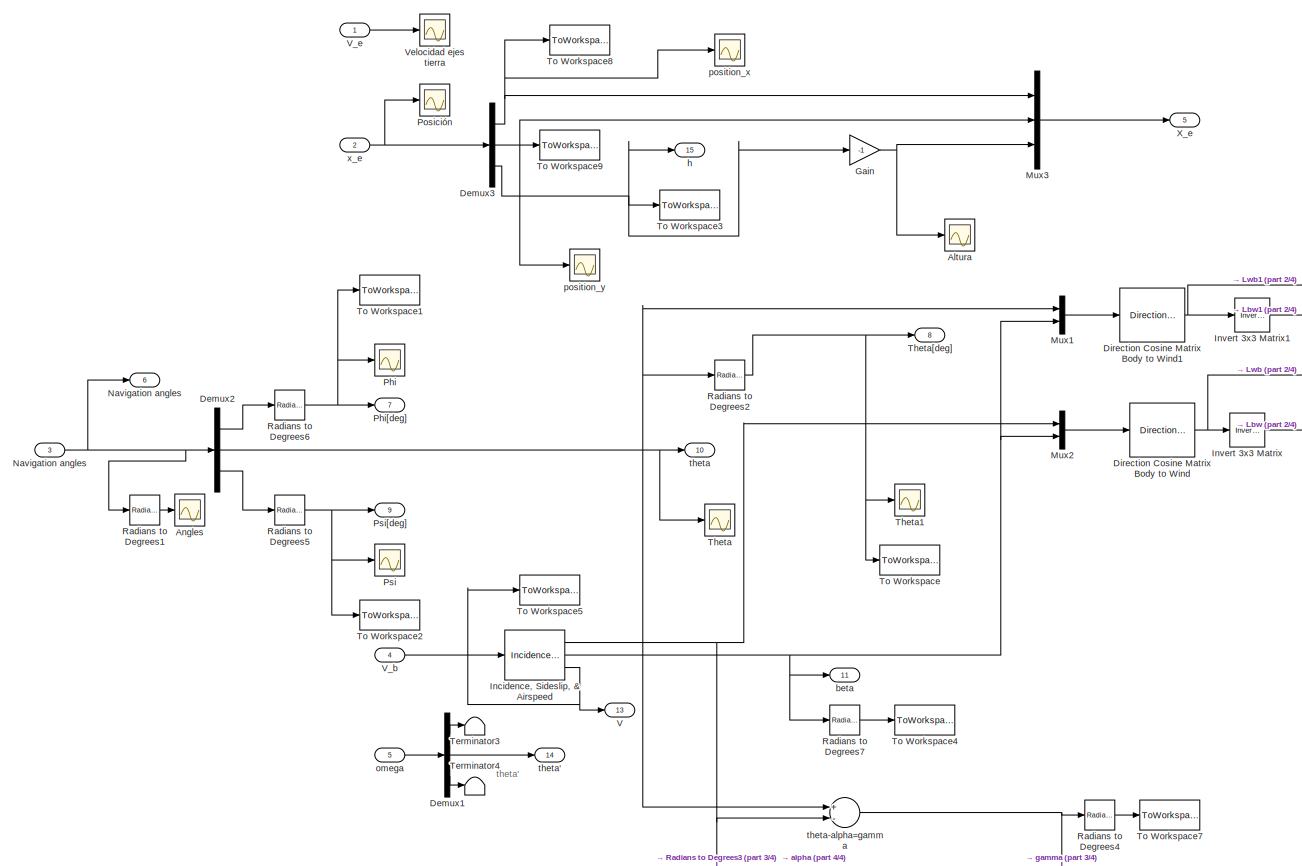
[diagram: Planta/Subsystem - part 1/4, most of the canvas]
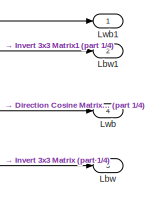
[diagram: Planta/Subsystem - part 2/4, middle right region]
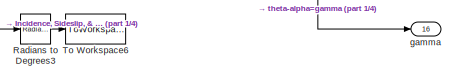
[diagram: Planta/Subsystem - part 3/4, bottom center region]
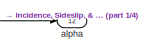
[diagram: Planta/Subsystem - part 4/4, bottom center region]
BLOCK [SubSystem] Planta/Subsystem
  Ports = [5, 16]
  RequestExecContextInheritance = off
  Variant = off
BLOCK [Scope] Planta/Subsystem/Altura
  Ports = [1]
  ScopeSpecificationString = Simulink.scopes.TimeScopeBlockCfg('CurrentConfiguration', extmgr.ConfigurationSet(extmgr.Configuration('Core','General UI',true),extmgr.Configuration('Core','Source UI',true),extmgr.Configuration('Sources','WiredSimulink',true,'DataLoggingVariableName','ScopeData9'),extmgr.Configuration('Visuals','Time Domain',true,'SerializedDisplays',{struct('MinYLimReal','-931.4831','MaxYLimReal','8383.34792','...<+1430ch>
BLOCK [Scope] Planta/Subsystem/Angles
  Ports = [1]
  ScopeSpecificationString = Simulink.scopes.TimeScopeBlockCfg('CurrentConfiguration', extmgr.ConfigurationSet(extmgr.Configuration('Core','General UI',true),extmgr.Configuration('Core','Source UI',true),extmgr.Configuration('Sources','WiredSimulink',true,'DataLoggingVariableName','ScopeData13','DataLoggingSaveFormat','StructureWithTime','DataLoggingLimitDataPoints',true,'DataLoggingDecimation','1','DataLoggingDecimateData',t...<+1760ch>
BLOCK [Demux] Planta/Subsystem/Demux1
  DisplayOption = bar
  Outputs = 3
  Ports = [1, 3]
BLOCK [Demux] Planta/Subsystem/Demux2
  DisplayOption = bar
  Outputs = 3
  Ports = [1, 3]
BLOCK [Demux] Planta/Subsystem/Demux3
  DisplayOption = bar
  Outputs = 3
  Ports = [1, 3]
BLOCK [Reference] Planta/Subsystem/Direction Cosine Matrix Body to Wind  REF=aerolibtransform2/Direction Cosine Matrix
Body to Wind
  Ports = [1, 1]
  SourceBlock = aerolibtransform2/Direction Cosine Matrix\nBody to Wind
  SourceType = DCM Body to Wind
BLOCK [Reference] Planta/Subsystem/Direction Cosine Matrix Body to Wind1  REF=aerolibtransform2/Direction Cosine Matrix
Body to Wind
  Ports = [1, 1]
  SourceBlock = aerolibtransform2/Direction Cosine Matrix\nBody to Wind
  SourceType = DCM Body to Wind
BLOCK [Gain] Planta/Subsystem/Gain
  Gain = -1
  OutDataTypeStr = Inherit: Inherit via internal rule
  ParamDataTypeStr = Inherit: Inherit via internal rule
  SaturateOnIntegerOverflow = off
BLOCK [Reference] Planta/Subsystem/Incidence, Sideslip, & Airspeed  REF=aerolibasang/Incidence, Sideslip,
& Airspeed
  Ports = [1, 3]
  SourceBlock = aerolibasang/Incidence, Sideslip,\n& Airspeed
  SourceType = Incidence,Sideslip,&Airspeed
BLOCK [Reference] Planta/Subsystem/Invert 3x3 Matrix  REF=aerolibutil/Invert 
3x3 Matrix
  Ports = [1, 1]
  SourceBlock = aerolibutil/Invert \n3x3 Matrix
  SourceType = Invert 3x3 Matrix
BLOCK [Reference] Planta/Subsystem/Invert 3x3 Matrix1  REF=aerolibutil/Invert 
3x3 Matrix
  Ports = [1, 1]
  SourceBlock = aerolibutil/Invert \n3x3 Matrix
  SourceType = Invert 3x3 Matrix
BLOCK [Outport] Planta/Subsystem/Lbw 
  IconDisplay = Port number
  Port = 3
BLOCK [Outport] Planta/Subsystem/Lbw1
  IconDisplay = Port number
  Port = 2
BLOCK [Outport] Planta/Subsystem/Lwb
  IconDisplay = Port number
  Port = 4
BLOCK [Outport] Planta/Subsystem/Lwb1
  IconDisplay = Port number
BLOCK [Mux] Planta/Subsystem/Mux1
  DisplayOption = bar
  Inputs = 2
  Ports = [2, 1]
BLOCK [Mux] Planta/Subsystem/Mux2
  DisplayOption = bar
  Inputs = 2
  Ports = [2, 1]
BLOCK [Mux] Planta/Subsystem/Mux3
  DisplayOption = bar
  Inputs = 3
  Ports = [3, 1]
BLOCK [Inport] Planta/Subsystem/Navigation angles
  IconDisplay = Port number
  Port = 3
BLOCK [Outport] Planta/Subsystem/Navigation angles 
  IconDisplay = Port number
  Port = 6
BLOCK [Scope] Planta/Subsystem/Phi
  Ports = [1]
  ScopeSpecificationString = Simulink.scopes.TimeScopeBlockCfg('CurrentConfiguration', extmgr.ConfigurationSet(extmgr.Configuration('Core','General UI',true),extmgr.Configuration('Core','Source UI',true),extmgr.Configuration('Sources','WiredSimulink',true,'DataLoggingVariableName','ScopeData4','DataLoggingSaveFormat','StructureWithTime','DataLoggingLimitDataPoints',true,'DataLoggingDecimation','1','DataLoggingDecimateData',tr...<+2080ch>
BLOCK [Outport] Planta/Subsystem/Phi[deg]
  IconDisplay = Port number
  Port = 7
BLOCK [Scope] Planta/Subsystem/Posición
  Ports = [1]
  ScopeSpecificationString = Simulink.scopes.TimeScopeBlockCfg('CurrentConfiguration', extmgr.ConfigurationSet(extmgr.Configuration('Core','General UI',true),extmgr.Configuration('Core','Source UI',true),extmgr.Configuration('Sources','WiredSimulink',true,'DataLoggingVariableName','ScopeData10','DataLoggingLimitDataPoints',true,'DataLoggingSaveFormat','Array','DataLoggingDecimation','1','DataLoggingDecimateData',true),extmgr....<+166ch>
BLOCK [Scope] Planta/Subsystem/Psi
  Ports = [1]
  ScopeSpecificationString = Simulink.scopes.TimeScopeBlockCfg('CurrentConfiguration', extmgr.ConfigurationSet(extmgr.Configuration('Core','General UI',true),extmgr.Configuration('Core','Source UI',true),extmgr.Configuration('Sources','WiredSimulink',true,'DataLoggingVariableName','ScopeData5','DataLoggingSaveFormat','StructureWithTime','DataLoggingLimitDataPoints',true,'DataLoggingDecimation','1','DataLoggingDecimateData',tr...<+2080ch>
BLOCK [Outport] Planta/Subsystem/Psi[deg]
  IconDisplay = Port number
  Port = 9
BLOCK [Reference] Planta/Subsystem/Radians to Degrees1  REF=simulink_extras/Transformations/Radians
to Degrees
  Ports = [1, 1]
  SourceBlock = simulink_extras/Transformations/Radians\nto Degrees
  SourceType = RadiansToDegrees
BLOCK [Reference] Planta/Subsystem/Radians to Degrees2  REF=simulink_extras/Transformations/Radians
to Degrees
  Ports = [1, 1]
  SourceBlock = simulink_extras/Transformations/Radians\nto Degrees
  SourceType = RadiansToDegrees
BLOCK [Reference] Planta/Subsystem/Radians to Degrees3  REF=simulink_extras/Transformations/Radians
to Degrees
  Ports = [1, 1]
  SourceBlock = simulink_extras/Transformations/Radians\nto Degrees
  SourceType = RadiansToDegrees
BLOCK [Reference] Planta/Subsystem/Radians to Degrees4  REF=simulink_extras/Transformations/Radians
to Degrees
  Ports = [1, 1]
  SourceBlock = simulink_extras/Transformations/Radians\nto Degrees
  SourceType = RadiansToDegrees
BLOCK [Reference] Planta/Subsystem/Radians to Degrees5  REF=simulink_extras/Transformations/Radians
to Degrees
  Ports = [1, 1]
  SourceBlock = simulink_extras/Transformations/Radians\nto Degrees
  SourceType = RadiansToDegrees
BLOCK [Reference] Planta/Subsystem/Radians to Degrees6  REF=simulink_extras/Transformations/Radians
to Degrees
  Ports = [1, 1]
  SourceBlock = simulink_extras/Transformations/Radians\nto Degrees
  SourceType = RadiansToDegrees
BLOCK [Reference] Planta/Subsystem/Radians to Degrees7  REF=simulink_extras/Transformations/Radians
to Degrees
  Ports = [1, 1]
  SourceBlock = simulink_extras/Transformations/Radians\nto Degrees
  SourceType = RadiansToDegrees
BLOCK [Terminator] Planta/Subsystem/Terminator3
BLOCK [Terminator] Planta/Subsystem/Terminator4
BLOCK [Scope] Planta/Subsystem/Theta
  Ports = [1]
  ScopeSpecificationString = Simulink.scopes.TimeScopeBlockCfg('CurrentConfiguration', extmgr.ConfigurationSet(extmgr.Configuration('Core','General UI',true),extmgr.Configuration('Core','Source UI',true),extmgr.Configuration('Sources','WiredSimulink',true,'DataLoggingVariableName','ScopeData2','DataLoggingSaveFormat','StructureWithTime','DataLoggingLimitDataPoints',true,'DataLoggingDecimation','1','DataLoggingDecimateData',tr...<+1751ch>
BLOCK [Scope] Planta/Subsystem/Theta1
  Ports = [1]
  ScopeSpecificationString = Simulink.scopes.TimeScopeBlockCfg('CurrentConfiguration', extmgr.ConfigurationSet(extmgr.Configuration('Core','General UI',true),extmgr.Configuration('Core','Source UI',true),extmgr.Configuration('Sources','WiredSimulink',true,'DataLoggingVariableName','ScopeData1','DataLoggingSaveFormat','StructureWithTime','DataLoggingLimitDataPoints',true,'DataLoggingDecimation','1','DataLoggingDecimateData',tr...<+2080ch>
BLOCK [Outport] Planta/Subsystem/Theta[deg]
  IconDisplay = Port number
  Port = 8
BLOCK [ToWorkspace] Planta/Subsystem/To Workspace
  MaxDataPoints = inf
  Ports = [1]
  SampleTime = -1
  VariableName = Theta
BLOCK [ToWorkspace] Planta/Subsystem/To Workspace1
  MaxDataPoints = inf
  Ports = [1]
  SampleTime = -1
  VariableName = Phi
BLOCK [ToWorkspace] Planta/Subsystem/To Workspace2
  MaxDataPoints = inf
  Ports = [1]
  SampleTime = -1
  VariableName = Psi
BLOCK [ToWorkspace] Planta/Subsystem/To Workspace3
  MaxDataPoints = inf
  Ports = [1]
  SampleTime = -1
  VariableName = Height
BLOCK [ToWorkspace] Planta/Subsystem/To Workspace4
  MaxDataPoints = inf
  Ports = [1]
  SampleTime = -1
  VariableName = Beta
BLOCK [ToWorkspace] Planta/Subsystem/To Workspace5
  MaxDataPoints = inf
  Ports = [1]
  SampleTime = -1
  VariableName = Speed
BLOCK [ToWorkspace] Planta/Subsystem/To Workspace6
  MaxDataPoints = inf
  Ports = [1]
  SampleTime = -1
  VariableName = Alpha
BLOCK [ToWorkspace] Planta/Subsystem/To Workspace7
  MaxDataPoints = inf
  Ports = [1]
  SampleTime = -1
  VariableName = Gamma
BLOCK [ToWorkspace] Planta/Subsystem/To Workspace8
  MaxDataPoints = inf
  Ports = [1]
  SampleTime = -1
  VariableName = Position_x
BLOCK [ToWorkspace] Planta/Subsystem/To Workspace9
  MaxDataPoints = inf
  Ports = [1]
  SampleTime = -1
  VariableName = Position_y
BLOCK [Outport] Planta/Subsystem/V
  IconDisplay = Port number
  Port = 13
BLOCK [Inport] Planta/Subsystem/V_b
  IconDisplay = Port number
  Port = 4
BLOCK [Inport] Planta/Subsystem/V_e
  IconDisplay = Port number
BLOCK [Scope] Planta/Subsystem/Velocidad ejes tierra 
  Ports = [1]
  ScopeSpecificationString = Simulink.scopes.TimeScopeBlockCfg('CurrentConfiguration', extmgr.ConfigurationSet(extmgr.Configuration('Core','General UI',true),extmgr.Configuration('Core','Source UI',true),extmgr.Configuration('Sources','WiredSimulink',true,'DataLoggingSaveFormat','StructureWithTime','DataLoggingDecimation','1','DataLoggingDecimateData',true,'DataLoggingVariableName','ScopeData11'),extmgr.Configuration('Visuals...<+1663ch>
BLOCK [Outport] Planta/Subsystem/X_e
  IconDisplay = Port number
  Port = 5
BLOCK [Outport] Planta/Subsystem/alpha
  IconDisplay = Port number
  Port = 12
BLOCK [Outport] Planta/Subsystem/beta
  IconDisplay = Port number
  Port = 11
BLOCK [Outport] Planta/Subsystem/gamma
  IconDisplay = Port number
  Port = 16
BLOCK [Outport] Planta/Subsystem/h
  IconDisplay = Port number
  Port = 15
BLOCK [Inport] Planta/Subsystem/omega
  IconDisplay = Port number
  Port = 5
BLOCK [Scope] Planta/Subsystem/position_x
  Ports = [1]
  ScopeSpecificationString = Simulink.scopes.TimeScopeBlockCfg('CurrentConfiguration', extmgr.ConfigurationSet(extmgr.Configuration('Core','General UI',true),extmgr.Configuration('Core','Source UI',true),extmgr.Configuration('Sources','WiredSimulink',true,'DataLoggingVariableName','ScopeData2'),extmgr.Configuration('Visuals','Time Domain',true,'SerializedDisplays',{struct('MinYLimReal','-1770.80624','MaxYLimReal','15937.25619...<+1444ch>
BLOCK [Scope] Planta/Subsystem/position_y
  Ports = [1]
  ScopeSpecificationString = Simulink.scopes.TimeScopeBlockCfg('CurrentConfiguration', extmgr.ConfigurationSet(extmgr.Configuration('Core','General UI',true),extmgr.Configuration('Core','Source UI',true),extmgr.Configuration('Sources','WiredSimulink',true,'DataLoggingVariableName','ScopeData3'),extmgr.Configuration('Visuals','Time Domain',true,'SerializedDisplays',{struct('MinYLimReal','-1057.03862','MaxYLimReal','117.46962',...<+1438ch>
BLOCK [Outport] Planta/Subsystem/theta
  IconDisplay = Port number
  Port = 10
BLOCK [Outport] Planta/Subsystem/theta'
  IconDisplay = Port number
  Port = 14
BLOCK [Sum] Planta/Subsystem/theta-alpha=gamma
  InputSameDT = off
  Inputs = +-
  OutDataTypeStr = Inherit: Inherit via internal rule
  Ports = [2, 1]
  SaturateOnIntegerOverflow = off
BLOCK [Inport] Planta/Subsystem/x_e
  IconDisplay = Port number
  Port = 2
BLOCK [Inport] Planta/T
  IconDisplay = Port number
BLOCK [Terminator] Planta/Terminator6
BLOCK [Terminator] Planta/Terminator7
BLOCK [Terminator] Planta/Terminator8
BLOCK [Scope] Planta/Theta
  Ports = [1]
  ScopeSpecificationString = Simulink.scopes.TimeScopeBlockCfg('CurrentConfiguration', extmgr.ConfigurationSet(extmgr.Configuration('Core','General UI',true),extmgr.Configuration('Core','Source UI',true),extmgr.Configuration('Sources','WiredSimulink',true,'DataLoggingVariableName','ScopeData1'),extmgr.Configuration('Visuals','Time Domain',true,'SerializedDisplays',{struct('MinYLimReal','1.37916','MaxYLimReal','7.64104','YLabe...<+1707ch>
BLOCK [Outport] Planta/Theta[deg]
  IconDisplay = Port number
  Port = 2
BLOCK [Outport] Planta/V
  IconDisplay = Port number
BLOCK [Scope] Planta/alpha deg 
  Ports = [1]
  ScopeSpecificationString = Simulink.scopes.TimeScopeBlockCfg('CurrentConfiguration', extmgr.ConfigurationSet(extmgr.Configuration('Core','General UI',true),extmgr.Configuration('Core','Source UI',true),extmgr.Configuration('Sources','WiredSimulink',true,'DataLoggingVariableName','ScopeData1'),extmgr.Configuration('Visuals','Time Domain',true,'SerializedDisplays',{struct('MinYLimReal','-2.57182','MaxYLimReal','10.10706','YLa...<+1400ch>
BLOCK [Constant] Planta/b[m]
  Value = 10.9728
BLOCK [Constant] Planta/c [m]
  Value = 0.18288
BLOCK [Inport] Planta/delta_a [rad]
  IconDisplay = Port number
  Port = 3
BLOCK [Inport] Planta/delta_e [rad]
  IconDisplay = Port number
  Port = 2
BLOCK [Inport] Planta/delta_r [rad]
  IconDisplay = Port number
  Port = 4
BLOCK [Gain] Planta/g[m//s^2]
  Gain = 9.81
  OutDataTypeStr = Inherit: Inherit via internal rule
  ParamDataTypeStr = Inherit: Inherit via internal rule
  SaturateOnIntegerOverflow = off
BLOCK [Constant] Planta/k
  Value = 0.044024
BLOCK [Constant] Planta/masa [kg] 
  Value = 1202.02
BLOCK [Constant] Planta/mu_r 
  Value = 0.02
BLOCK [Constant] Planta/rho_0 [kg//m^3]
  Value = 1.225
BLOCK [Scope] Planta/thrust
  Ports = [1]
  ScopeSpecificationString = Simulink.scopes.TimeScopeBlockCfg('CurrentConfiguration', extmgr.ConfigurationSet(extmgr.Configuration('Core','General UI',true),extmgr.Configuration('Core','Source UI',true),extmgr.Configuration('Sources','WiredSimulink',true,'DataLoggingVariableName','ScopeData4'),extmgr.Configuration('Visuals','Time Domain',true,'SerializedDisplays',{struct('MinYLimReal','1466.6228','MaxYLimReal','3549.09606','...<+1404ch>
BLOCK [Constant] Planta/x1[m]
  Value = 2
BLOCK [Constant] Planta/x2[m]
BLOCK [Constant] Planta/zg[m]
  Value = 0.5
BLOCK [Scope] Psi
  Ports = [1]
  ScopeSpecificationString = Simulink.scopes.TimeScopeBlockCfg('CurrentConfiguration', extmgr.ConfigurationSet(extmgr.Configuration('Core','General UI',true),extmgr.Configuration('Core','Source UI',true),extmgr.Configuration('Sources','WiredSimulink',true,'DataLoggingVariableName','ScopeData1'),extmgr.Configuration('Visuals','Time Domain',true,'SerializedDisplays',{struct('MinYLimReal','-1.60297','MaxYLimReal','1.79981','YLab...<+1403ch>
BLOCK [Sum] Sum1
  IconShape = round
  InputSameDT = off
  Inputs = |+-
  OutDataTypeStr = Inherit: Inherit via internal rule
  Ports = [2, 1]
  SaturateOnIntegerOverflow = off
BLOCK [Sum] Sum2
  IconShape = round
  InputSameDT = off
  Inputs = |+-
  OutDataTypeStr = Inherit: Inherit via internal rule
  Ports = [2, 1]
  SaturateOnIntegerOverflow = off
BLOCK [Switch] Switch
  InputSameDT = off
  SaturateOnIntegerOverflow = off
  Threshold = 500
BLOCK [Switch] Switch1
  InputSameDT = off
  SaturateOnIntegerOverflow = off
  Threshold = 500
BLOCK [Switch] Switch2
  InputSameDT = off
  SaturateOnIntegerOverflow = off
  Threshold = 500
BLOCK [Switch] Switch3
  InputSameDT = off
  SaturateOnIntegerOverflow = off
  Threshold = 500
BLOCK [Scope] Theta
  Ports = [1]
  ScopeSpecificationString = Simulink.scopes.TimeScopeBlockCfg('CurrentConfiguration', extmgr.ConfigurationSet(extmgr.Configuration('Core','General UI',true),extmgr.Configuration('Core','Source UI',true),extmgr.Configuration('Sources','WiredSimulink',true,'DataLoggingVariableName','ScopeData2'),extmgr.Configuration('Visuals','Time Domain',true,'SerializedDisplays',{struct('MinYLimReal','1.35003','MaxYLimReal','7.90321','YLabe...<+1420ch>
BLOCK [Scope] V
  Ports = [1]
  ScopeSpecificationString = Simulink.scopes.TimeScopeBlockCfg('CurrentConfiguration', extmgr.ConfigurationSet(extmgr.Configuration('Core','General UI',true),extmgr.Configuration('Core','Source UI',true),extmgr.Configuration('Sources','WiredSimulink',true,'DataLoggingVariableName','ScopeData1'),extmgr.Configuration('Visuals','Time Domain',true,'SerializedDisplays',{struct('MinYLimReal','-11.58908','MaxYLimReal','104.40174','Y...<+1456ch>
BLOCK [Scope] V1
  Ports = [1]
  ScopeSpecificationString = Simulink.scopes.TimeScopeBlockCfg('CurrentConfiguration', extmgr.ConfigurationSet(extmgr.Configuration('Core','General UI',true),extmgr.Configuration('Core','Source UI',true),extmgr.Configuration('Sources','WiredSimulink',true,'DataLoggingVariableName','ScopeData2'),extmgr.Configuration('Visuals','Time Domain',true,'SerializedDisplays',{struct('MinYLimReal','-11.94178','MaxYLimReal','79.09353','YL...<+1414ch>
BLOCK [Scope] V2
  Ports = [1]
  ScopeSpecificationString = Simulink.scopes.TimeScopeBlockCfg('CurrentConfiguration', extmgr.ConfigurationSet(extmgr.Configuration('Core','General UI',true),extmgr.Configuration('Core','Source UI',true),extmgr.Configuration('Sources','WiredSimulink',true,'DataLoggingVariableName','ScopeData3'),extmgr.Configuration('Visuals','Time Domain',true,'SerializedDisplays',{struct('MinYLimReal','1466.6228','MaxYLimReal','3549.09606','...<+1437ch>
ANNOTATION Planta/Subsystem: theta'
NET Add1:1 -> PID Controller3:1, V1:1
LINE Add:1 -> Degrees to Radians:1
LINE Clock1:1 -> Switch1:2
LINE Clock2:1 -> Switch2:2
LINE Clock3:1 -> Switch3:2
LINE Clock:1 -> Switch:2
LINE Degrees to Radians1:1 -> PID Controller1:1
LINE Degrees to Radians2:1 -> PID Controller2:1
LINE Degrees to Radians:1 -> PID Controller:1
LINE Desired Phi1:1 -> Switch2:3
LINE Desired Phi:1 -> Switch2:1
LINE Desired Psi1:1 -> Switch3:3
LINE Desired Psi:1 -> Switch3:1
LINE Desired Speed1:1 -> Switch:1
LINE Desired Speed:1 -> Switch:3
LINE Desired Theta1:1 -> Switch1:3
LINE Desired Theta:1 -> Switch1:1
LINE Mux1:1 -> Phi :1
LINE Mux2:1 -> Psi:1
LINE Mux3:1 -> V:1
LINE Mux:1 -> Theta:1
LINE PID Controller1:1 -> Planta:3
LINE PID Controller2:1 -> Planta:4
NET PID Controller3:1 -> Planta:1, V2:1
LINE PID Controller:1 -> Planta:2
LINE Planta/6DoF (Euler Angles)1:1 -> Planta/Subsystem:1
LINE Planta/6DoF (Euler Angles)1:2 -> Planta/Subsystem:2
LINE Planta/6DoF (Euler Angles)1:3 -> Planta/Subsystem:3
LINE Planta/6DoF (Euler Angles)1:4 -> Planta/Terminator8:1
LINE Planta/6DoF (Euler Angles)1:5 -> Planta/Subsystem:4
LINE Planta/6DoF (Euler Angles)1:6 -> Planta/Subsystem:5
LINE Planta/6DoF (Euler Angles)1:7 -> Planta/Terminator6:1
LINE Planta/6DoF (Euler Angles)1:8 -> Planta/Terminator7:1
LINE Planta/CD0:1 -> Planta/Forces and Moments in Take-off:7
LINE Planta/CL0:1 -> Planta/Forces and Moments in Take-off:9
LINE Planta/CL_alpha :1 -> Planta/Forces and Moments in Take-off:11
LINE Planta/Forces and Moments in Take-off/CD0:1 -> Planta/Forces and Moments in Take-off/Goto2:1
LINE Planta/Forces and Moments in Take-off/CL0:1 -> Planta/Forces and Moments in Take-off/Goto3:1
LINE Planta/Forces and Moments in Take-off/CL_alpha:1 -> Planta/Forces and Moments in Take-off/Goto5:1
LINE Planta/Forces and Moments in Take-off/Demux:1 -> Planta/Forces and Moments in Take-off/F_b:1
LINE Planta/Forces and Moments in Take-off/Demux:2 -> Planta/Forces and Moments in Take-off/M_b:1
LINE Planta/Forces and Moments in Take-off/From10:1 -> Planta/Forces and Moments in Take-off/Transition:5
LINE Planta/Forces and Moments in Take-off/From11:1 -> Planta/Forces and Moments in Take-off/Taxiing:16
LINE Planta/Forces and Moments in Take-off/From12:1 -> Planta/Forces and Moments in Take-off/Taxiing:6
LINE Planta/Forces and Moments in Take-off/From13:1 -> Planta/Forces and Moments in Take-off/Taxiing2:6
LINE Planta/Forces and Moments in Take-off/From14:1 -> Planta/Forces and Moments in Take-off/Transition:7
LINE Planta/Forces and Moments in Take-off/From15:1 -> Planta/Forces and Moments in Take-off/Taxiing2:13
LINE Planta/Forces and Moments in Take-off/From16:1 -> Planta/Forces and Moments in Take-off/Taxiing:8
LINE Planta/Forces and Moments in Take-off/From17:1 -> Planta/Forces and Moments in Take-off/Taxiing2:8
LINE Planta/Forces and Moments in Take-off/From18:1 -> Planta/Forces and Moments in Take-off/Transition:9
LINE Planta/Forces and Moments in Take-off/From19:1 -> Planta/Forces and Moments in Take-off/Taxiing2:14
LINE Planta/Forces and Moments in Take-off/From1:1 -> Planta/Forces and Moments in Take-off/Taxiing2:1
LINE Planta/Forces and Moments in Take-off/From20:1 -> Planta/Forces and Moments in Take-off/Taxiing:9
LINE Planta/Forces and Moments in Take-off/From21:1 -> Planta/Forces and Moments in Take-off/Taxiing2:9
LINE Planta/Forces and Moments in Take-off/From22:1 -> Planta/Forces and Moments in Take-off/Transition:10
LINE Planta/Forces and Moments in Take-off/From23:1 -> Planta/Forces and Moments in Take-off/Taxiing:7
LINE Planta/Forces and Moments in Take-off/From24:1 -> Planta/Forces and Moments in Take-off/Taxiing2:7
LINE Planta/Forces and Moments in Take-off/From25:1 -> Planta/Forces and Moments in Take-off/Transition:13
LINE Planta/Forces and Moments in Take-off/From26:1 -> Planta/Forces and Moments in Take-off/Transition:15
LINE Planta/Forces and Moments in Take-off/From27:1 -> Planta/Forces and Moments in Take-off/Taxiing:10
LINE Planta/Forces and Moments in Take-off/From28:1 -> Planta/Forces and Moments in Take-off/Taxiing2:10
LINE Planta/Forces and Moments in Take-off/From29:1 -> Planta/Forces and Moments in Take-off/Transition:11
LINE Planta/Forces and Moments in Take-off/From2:1 -> Planta/Forces and Moments in Take-off/Transition:2
LINE Planta/Forces and Moments in Take-off/From30:1 -> Planta/Forces and Moments in Take-off/Taxiing2:15
LINE Planta/Forces and Moments in Take-off/From31:1 -> Planta/Forces and Moments in Take-off/Taxiing:11
LINE Planta/Forces and Moments in Take-off/From32:1 -> Planta/Forces and Moments in Take-off/Taxiing:12
LINE Planta/Forces and Moments in Take-off/From33:1 -> Planta/Forces and Moments in Take-off/Taxiing2:11
LINE Planta/Forces and Moments in Take-off/From34:1 -> Planta/Forces and Moments in Take-off/Taxiing:13
LINE Planta/Forces and Moments in Take-off/From35:1 -> Planta/Forces and Moments in Take-off/Taxiing2:12
LINE Planta/Forces and Moments in Take-off/From36:1 -> Planta/Forces and Moments in Take-off/Taxiing2:17
LINE Planta/Forces and Moments in Take-off/From37:1 -> Planta/Forces and Moments in Take-off/Taxiing:15
LINE Planta/Forces and Moments in Take-off/From38:1 -> Planta/Forces and Moments in Take-off/Transition:12
LINE Planta/Forces and Moments in Take-off/From39:1 -> Planta/Forces and Moments in Take-off/Transition:14
LINE Planta/Forces and Moments in Take-off/From3:1 -> Planta/Forces and Moments in Take-off/Taxiing:14
LINE Planta/Forces and Moments in Take-off/From40:1 -> Planta/Forces and Moments in Take-off/Taxiing2:16
LINE Planta/Forces and Moments in Take-off/From42:1 -> Planta/Forces and Moments in Take-off/Taxiing:5
LINE Planta/Forces and Moments in Take-off/From43:1 -> Planta/Forces and Moments in Take-off/Taxiing2:5
LINE Planta/Forces and Moments in Take-off/From44:1 -> Planta/Forces and Moments in Take-off/Transition:6
LINE Planta/Forces and Moments in Take-off/From46:1 -> Planta/Forces and Moments in Take-off/Taxiing:2
LINE Planta/Forces and Moments in Take-off/From47:1 -> Planta/Forces and Moments in Take-off/Taxiing2:2
LINE Planta/Forces and Moments in Take-off/From48:1 -> Planta/Forces and Moments in Take-off/Transition:3
LINE Planta/Forces and Moments in Take-off/From4:1 -> Planta/Forces and Moments in Take-off/Taxiing:3
LINE Planta/Forces and Moments in Take-off/From5:1 -> Planta/Forces and Moments in Take-off/Taxiing2:3
LINE Planta/Forces and Moments in Take-off/From6:1 -> Planta/Forces and Moments in Take-off/Transition:4
LINE Planta/Forces and Moments in Take-off/From7:1 -> Planta/Forces and Moments in Take-off/Transition:8
LINE Planta/Forces and Moments in Take-off/From8:1 -> Planta/Forces and Moments in Take-off/Taxiing:4
LINE Planta/Forces and Moments in Take-off/From9:1 -> Planta/Forces and Moments in Take-off/Taxiing2:4
LINE Planta/Forces and Moments in Take-off/From:1 -> Planta/Forces and Moments in Take-off/Taxiing:1
LINE Planta/Forces and Moments in Take-off/Lbw 1:1 -> Planta/Forces and Moments in Take-off/Taxiing:18
LINE Planta/Forces and Moments in Take-off/Lbw:1 -> Planta/Forces and Moments in Take-off/Goto17:1
LINE Planta/Forces and Moments in Take-off/Lwb 1:1 -> Planta/Forces and Moments in Take-off/Taxiing:17
LINE Planta/Forces and Moments in Take-off/Lwb:1 -> Planta/Forces and Moments in Take-off/Goto16:1
LINE Planta/Forces and Moments in Take-off/S:1 -> Planta/Forces and Moments in Take-off/Goto1:1
LINE Planta/Forces and Moments in Take-off/Switch1:1 -> Planta/Forces and Moments in Take-off/Switch:3
LINE Planta/Forces and Moments in Take-off/Switch:1 -> Planta/Forces and Moments in Take-off/Demux:1
LINE Planta/Forces and Moments in Take-off/T:1 -> Planta/Forces and Moments in Take-off/Goto:1
LINE Planta/Forces and Moments in Take-off/Taxiing/ :1 -> Planta/Forces and Moments in Take-off/Taxiing/Aerodynamic Forces :13
LINE Planta/Forces and Moments in Take-off/Taxiing/Aerodynamic Forces /CD0:1 -> Planta/Forces and Moments in Take-off/Taxiing/Aerodynamic Forces /Drag:4
LINE Planta/Forces and Moments in Take-off/Taxiing/Aerodynamic Forces /CL0:1 -> Planta/Forces and Moments in Take-off/Taxiing/Aerodynamic Forces /Lift:5
LINE Planta/Forces and Moments in Take-off/Taxiing/Aerodynamic Forces /CL_alpha:1 -> Planta/Forces and Moments in Take-off/Taxiing/Aerodynamic Forces /Lift:6
LINE Planta/Forces and Moments in Take-off/Taxiing/Aerodynamic Forces /Drag/CD/Add:1 -> Planta/Forces and Moments in Take-off/Taxiing/Aerodynamic Forces /Drag/CD/CD:1
LINE Planta/Forces and Moments in Take-off/Taxiing/Aerodynamic Forces /Drag/CD/CD0:1 -> Planta/Forces and Moments in Take-off/Taxiing/Aerodynamic Forces /Drag/CD/Add:1
NET Planta/Forces and Moments in Take-off/Taxiing/Aerodynamic Forces /Drag/CD/CL:1 -> Planta/Forces and Moments in Take-off/Taxiing/Aerodynamic Forces /Drag/CD/Product:2, Planta/Forces and Moments in Take-off/Taxiing/Aerodynamic Forces /Drag/CD/Product:3
LINE Planta/Forces and Moments in Take-off/Taxiing/Aerodynamic Forces /Drag/CD/Product:1 -> Planta/Forces and Moments in Take-off/Taxiing/Aerodynamic Forces /Drag/CD/Add:2
LINE Planta/Forces and Moments in Take-off/Taxiing/Aerodynamic Forces /Drag/CD/k:1 -> Planta/Forces and Moments in Take-off/Taxiing/Aerodynamic Forces /Drag/CD/Product:1
LINE Planta/Forces and Moments in Take-off/Taxiing/Aerodynamic Forces /Drag/CD0:1 -> Planta/Forces and Moments in Take-off/Taxiing/Aerodynamic Forces /Drag/CD:1
LINE Planta/Forces and Moments in Take-off/Taxiing/Aerodynamic Forces /Drag/CD:1 -> Planta/Forces and Moments in Take-off/Taxiing/Aerodynamic Forces /Drag/Drag:4
LINE Planta/Forces and Moments in Take-off/Taxiing/Aerodynamic Forces /Drag/CL:1 -> Planta/Forces and Moments in Take-off/Taxiing/Aerodynamic Forces /Drag/CD:3
LINE Planta/Forces and Moments in Take-off/Taxiing/Aerodynamic Forces /Drag/Drag/0.5 :1 -> Planta/Forces and Moments in Take-off/Taxiing/Aerodynamic Forces /Drag/Drag/Product:1
LINE Planta/Forces and Moments in Take-off/Taxiing/Aerodynamic Forces /Drag/Drag/CD:1 -> Planta/Forces and Moments in Take-off/Taxiing/Aerodynamic Forces /Drag/Drag/Product:6
LINE Planta/Forces and Moments in Take-off/Taxiing/Aerodynamic Forces /Drag/Drag/Product:1 -> Planta/Forces and Moments in Take-off/Taxiing/Aerodynamic Forces /Drag/Drag/D:1
LINE Planta/Forces and Moments in Take-off/Taxiing/Aerodynamic Forces /Drag/Drag/S:1 -> Planta/Forces and Moments in Take-off/Taxiing/Aerodynamic Forces /Drag/Drag/Product:3
NET Planta/Forces and Moments in Take-off/Taxiing/Aerodynamic Forces /Drag/Drag/V:1 -> Planta/Forces and Moments in Take-off/Taxiing/Aerodynamic Forces /Drag/Drag/Product:4, Planta/Forces and Moments in Take-off/Taxiing/Aerodynamic Forces /Drag/Drag/Product:5
LINE Planta/Forces and Moments in Take-off/Taxiing/Aerodynamic Forces /Drag/Drag/rho:1 -> Planta/Forces and Moments in Take-off/Taxiing/Aerodynamic Forces /Drag/Drag/Product:2
LINE Planta/Forces and Moments in Take-off/Taxiing/Aerodynamic Forces /Drag/Drag:1 -> Planta/Forces and Moments in Take-off/Taxiing/Aerodynamic Forces /Drag/D:1
LINE Planta/Forces and Moments in Take-off/Taxiing/Aerodynamic Forces /Drag/S:1 -> Planta/Forces and Moments in Take-off/Taxiing/Aerodynamic Forces /Drag/Drag:2
LINE Planta/Forces and Moments in Take-off/Taxiing/Aerodynamic Forces /Drag/V:1 -> Planta/Forces and Moments in Take-off/Taxiing/Aerodynamic Forces /Drag/Drag:1
LINE Planta/Forces and Moments in Take-off/Taxiing/Aerodynamic Forces /Drag/k:1 -> Planta/Forces and Moments in Take-off/Taxiing/Aerodynamic Forces /Drag/CD:2
LINE Planta/Forces and Moments in Take-off/Taxiing/Aerodynamic Forces /Drag/rho:1 -> Planta/Forces and Moments in Take-off/Taxiing/Aerodynamic Forces /Drag/Drag:3
LINE Planta/Forces and Moments in Take-off/Taxiing/Aerodynamic Forces /Drag:1 -> Planta/Forces and Moments in Take-off/Taxiing/Aerodynamic Forces /Fx equation1:2
LINE Planta/Forces and Moments in Take-off/Taxiing/Aerodynamic Forces /F Normales1/N1:1 -> Planta/Forces and Moments in Take-off/Taxiing/Aerodynamic Forces /F Normales1/Product:2
LINE Planta/Forces and Moments in Take-off/Taxiing/Aerodynamic Forces /F Normales1/N2:1 -> Planta/Forces and Moments in Take-off/Taxiing/Aerodynamic Forces /F Normales1/Product1:2
LINE Planta/Forces and Moments in Take-off/Taxiing/Aerodynamic Forces /F Normales1/Product1:1 -> Planta/Forces and Moments in Take-off/Taxiing/Aerodynamic Forces /F Normales1/Fr2:1
LINE Planta/Forces and Moments in Take-off/Taxiing/Aerodynamic Forces /F Normales1/Product:1 -> Planta/Forces and Moments in Take-off/Taxiing/Aerodynamic Forces /F Normales1/Fr1 :1
NET Planta/Forces and Moments in Take-off/Taxiing/Aerodynamic Forces /F Normales1/mu_r:1 -> Planta/Forces and Moments in Take-off/Taxiing/Aerodynamic Forces /F Normales1/Product1:1, Planta/Forces and Moments in Take-off/Taxiing/Aerodynamic Forces /F Normales1/Product:1
NET Planta/Forces and Moments in Take-off/Taxiing/Aerodynamic Forces /F Normales1:1 -> Planta/Forces and Moments in Take-off/Taxiing/Aerodynamic Forces /Fr1:1, Planta/Forces and Moments in Take-off/Taxiing/Aerodynamic Forces /Fx equation1:3
NET Planta/Forces and Moments in Take-off/Taxiing/Aerodynamic Forces /F Normales1:2 -> Planta/Forces and Moments in Take-off/Taxiing/Aerodynamic Forces /Fr2:1, Planta/Forces and Moments in Take-off/Taxiing/Aerodynamic Forces /Fx equation1:4
LINE Planta/Forces and Moments in Take-off/Taxiing/Aerodynamic Forces /Fx equation1/Add2:1 -> Planta/Forces and Moments in Take-off/Taxiing/Aerodynamic Forces /Fx equation1/Fx:1
LINE Planta/Forces and Moments in Take-off/Taxiing/Aerodynamic Forces /Fx equation1/Add:1 -> Planta/Forces and Moments in Take-off/Taxiing/Aerodynamic Forces /Fx equation1/Gain2:1
LINE Planta/Forces and Moments in Take-off/Taxiing/Aerodynamic Forces /Fx equation1/D:1 -> Planta/Forces and Moments in Take-off/Taxiing/Aerodynamic Forces /Fx equation1/Gain:1
LINE Planta/Forces and Moments in Take-off/Taxiing/Aerodynamic Forces /Fx equation1/Fr1:1 -> Planta/Forces and Moments in Take-off/Taxiing/Aerodynamic Forces /Fx equation1/Add:1
LINE Planta/Forces and Moments in Take-off/Taxiing/Aerodynamic Forces /Fx equation1/Fr2:1 -> Planta/Forces and Moments in Take-off/Taxiing/Aerodynamic Forces /Fx equation1/Add:2
LINE Planta/Forces and Moments in Take-off/Taxiing/Aerodynamic Forces /Fx equation1/Gain2:1 -> Planta/Forces and Moments in Take-off/Taxiing/Aerodynamic Forces /Fx equation1/Add2:3
LINE Planta/Forces and Moments in Take-off/Taxiing/Aerodynamic Forces /Fx equation1/Gain:1 -> Planta/Forces and Moments in Take-off/Taxiing/Aerodynamic Forces /Fx equation1/Add2:2
LINE Planta/Forces and Moments in Take-off/Taxiing/Aerodynamic Forces /Fx equation1/T:1 -> Planta/Forces and Moments in Take-off/Taxiing/Aerodynamic Forces /Fx equation1/Add2:1
LINE Planta/Forces and Moments in Take-off/Taxiing/Aerodynamic Forces /Fx equation1:1 -> Planta/Forces and Moments in Take-off/Taxiing/Aerodynamic Forces /Fx:1
LINE Planta/Forces and Moments in Take-off/Taxiing/Aerodynamic Forces /Fz = 1/Add1:1 -> Planta/Forces and Moments in Take-off/Taxiing/Aerodynamic Forces /Fz = 1/N1+N2:1
LINE Planta/Forces and Moments in Take-off/Taxiing/Aerodynamic Forces /Fz = 1/L:1 -> Planta/Forces and Moments in Take-off/Taxiing/Aerodynamic Forces /Fz = 1/Add1:2
LINE Planta/Forces and Moments in Take-off/Taxiing/Aerodynamic Forces /Fz = 1/T:1 -> Planta/Forces and Moments in Take-off/Taxiing/Aerodynamic Forces /Fz = 1/Add1:3
LINE Planta/Forces and Moments in Take-off/Taxiing/Aerodynamic Forces /Fz = 1/W:1 -> Planta/Forces and Moments in Take-off/Taxiing/Aerodynamic Forces /Fz = 1/Add1:1
LINE Planta/Forces and Moments in Take-off/Taxiing/Aerodynamic Forces /Fz = 1:1 -> Planta/Forces and Moments in Take-off/Taxiing/Aerodynamic Forces /N1+N2:1
LINE Planta/Forces and Moments in Take-off/Taxiing/Aerodynamic Forces /Lift/CL /Add:1 -> Planta/Forces and Moments in Take-off/Taxiing/Aerodynamic Forces /Lift/CL /CL :1
LINE Planta/Forces and Moments in Take-off/Taxiing/Aerodynamic Forces /Lift/CL /CL0:1 -> Planta/Forces and Moments in Take-off/Taxiing/Aerodynamic Forces /Lift/CL /Add:1
LINE Planta/Forces and Moments in Take-off/Taxiing/Aerodynamic Forces /Lift/CL /CL_alpha:1 -> Planta/Forces and Moments in Take-off/Taxiing/Aerodynamic Forces /Lift/CL /Product:1
LINE Planta/Forces and Moments in Take-off/Taxiing/Aerodynamic Forces /Lift/CL /Product:1 -> Planta/Forces and Moments in Take-off/Taxiing/Aerodynamic Forces /Lift/CL /Add:2
LINE Planta/Forces and Moments in Take-off/Taxiing/Aerodynamic Forces /Lift/CL /alpha:1 -> Planta/Forces and Moments in Take-off/Taxiing/Aerodynamic Forces /Lift/CL /Product:2
NET Planta/Forces and Moments in Take-off/Taxiing/Aerodynamic Forces /Lift/CL :1 -> Planta/Forces and Moments in Take-off/Taxiing/Aerodynamic Forces /Lift/CL:1, Planta/Forces and Moments in Take-off/Taxiing/Aerodynamic Forces /Lift/Lift:4
LINE Planta/Forces and Moments in Take-off/Taxiing/Aerodynamic Forces /Lift/CL0:1 -> Planta/Forces and Moments in Take-off/Taxiing/Aerodynamic Forces /Lift/CL :1
LINE Planta/Forces and Moments in Take-off/Taxiing/Aerodynamic Forces /Lift/CL_alpha:1 -> Planta/Forces and Moments in Take-off/Taxiing/Aerodynamic Forces /Lift/CL :2
LINE Planta/Forces and Moments in Take-off/Taxiing/Aerodynamic Forces /Lift/Lift/0.5 :1 -> Planta/Forces and Moments in Take-off/Taxiing/Aerodynamic Forces /Lift/Lift/Product:1
LINE Planta/Forces and Moments in Take-off/Taxiing/Aerodynamic Forces /Lift/Lift/CL:1 -> Planta/Forces and Moments in Take-off/Taxiing/Aerodynamic Forces /Lift/Lift/Product:6
LINE Planta/Forces and Moments in Take-off/Taxiing/Aerodynamic Forces /Lift/Lift/Product:1 -> Planta/Forces and Moments in Take-off/Taxiing/Aerodynamic Forces /Lift/Lift/L:1
LINE Planta/Forces and Moments in Take-off/Taxiing/Aerodynamic Forces /Lift/Lift/S:1 -> Planta/Forces and Moments in Take-off/Taxiing/Aerodynamic Forces /Lift/Lift/Product:3
NET Planta/Forces and Moments in Take-off/Taxiing/Aerodynamic Forces /Lift/Lift/V:1 -> Planta/Forces and Moments in Take-off/Taxiing/Aerodynamic Forces /Lift/Lift/Product:4, Planta/Forces and Moments in Take-off/Taxiing/Aerodynamic Forces /Lift/Lift/Product:5
LINE Planta/Forces and Moments in Take-off/Taxiing/Aerodynamic Forces /Lift/Lift/rho:1 -> Planta/Forces and Moments in Take-off/Taxiing/Aerodynamic Forces /Lift/Lift/Product:2
LINE Planta/Forces and Moments in Take-off/Taxiing/Aerodynamic Forces /Lift/Lift:1 -> Planta/Forces and Moments in Take-off/Taxiing/Aerodynamic Forces /Lift/L:1
LINE Planta/Forces and Moments in Take-off/Taxiing/Aerodynamic Forces /Lift/S:1 -> Planta/Forces and Moments in Take-off/Taxiing/Aerodynamic Forces /Lift/Lift:2
LINE Planta/Forces and Moments in Take-off/Taxiing/Aerodynamic Forces /Lift/V:1 -> Planta/Forces and Moments in Take-off/Taxiing/Aerodynamic Forces /Lift/Lift:1
LINE Planta/Forces and Moments in Take-off/Taxiing/Aerodynamic Forces /Lift/alpha:1 -> Planta/Forces and Moments in Take-off/Taxiing/Aerodynamic Forces /Lift/CL :3
LINE Planta/Forces and Moments in Take-off/Taxiing/Aerodynamic Forces /Lift/rho:1 -> Planta/Forces and Moments in Take-off/Taxiing/Aerodynamic Forces /Lift/Lift:3
LINE Planta/Forces and Moments in Take-off/Taxiing/Aerodynamic Forces /Lift:1 -> Planta/Forces and Moments in Take-off/Taxiing/Aerodynamic Forces /Drag:6
NET Planta/Forces and Moments in Take-off/Taxiing/Aerodynamic Forces /Lift:2 -> Planta/Forces and Moments in Take-off/Taxiing/Aerodynamic Forces /Fz = 1:1, Planta/Forces and Moments in Take-off/Taxiing/Aerodynamic Forces /L:1
LINE Planta/Forces and Moments in Take-off/Taxiing/Aerodynamic Forces /N1:1 -> Planta/Forces and Moments in Take-off/Taxiing/Aerodynamic Forces /F Normales1:2
LINE Planta/Forces and Moments in Take-off/Taxiing/Aerodynamic Forces /N2:1 -> Planta/Forces and Moments in Take-off/Taxiing/Aerodynamic Forces /F Normales1:3
NET Planta/Forces and Moments in Take-off/Taxiing/Aerodynamic Forces /S:1 -> Planta/Forces and Moments in Take-off/Taxiing/Aerodynamic Forces /Drag:2, Planta/Forces and Moments in Take-off/Taxiing/Aerodynamic Forces /Lift:2
LINE Planta/Forces and Moments in Take-off/Taxiing/Aerodynamic Forces /Tx :1 -> Planta/Forces and Moments in Take-off/Taxiing/Aerodynamic Forces /Fx equation1:1
LINE Planta/Forces and Moments in Take-off/Taxiing/Aerodynamic Forces /Tz :1 -> Planta/Forces and Moments in Take-off/Taxiing/Aerodynamic Forces /Fz = 1:3
NET Planta/Forces and Moments in Take-off/Taxiing/Aerodynamic Forces /V:1 -> Planta/Forces and Moments in Take-off/Taxiing/Aerodynamic Forces /Drag:1, Planta/Forces and Moments in Take-off/Taxiing/Aerodynamic Forces /Lift:1
LINE Planta/Forces and Moments in Take-off/Taxiing/Aerodynamic Forces /Wz:1 -> Planta/Forces and Moments in Take-off/Taxiing/Aerodynamic Forces /Fz = 1:2
LINE Planta/Forces and Moments in Take-off/Taxiing/Aerodynamic Forces /alpha:1 -> Planta/Forces and Moments in Take-off/Taxiing/Aerodynamic Forces /Lift:4
LINE Planta/Forces and Moments in Take-off/Taxiing/Aerodynamic Forces /k:1 -> Planta/Forces and Moments in Take-off/Taxiing/Aerodynamic Forces /Drag:5
LINE Planta/Forces and Moments in Take-off/Taxiing/Aerodynamic Forces /mu_r:1 -> Planta/Forces and Moments in Take-off/Taxiing/Aerodynamic Forces /F Normales1:1
NET Planta/Forces and Moments in Take-off/Taxiing/Aerodynamic Forces /rho:1 -> Planta/Forces and Moments in Take-off/Taxiing/Aerodynamic Forces /Drag:3, Planta/Forces and Moments in Take-off/Taxiing/Aerodynamic Forces /Lift:3
LINE Planta/Forces and Moments in Take-off/Taxiing/Aerodynamic Forces :1 -> Planta/Forces and Moments in Take-off/Taxiing/Mux1:1
LINE Planta/Forces and Moments in Take-off/Taxiing/Aerodynamic Forces :2 -> Planta/Forces and Moments in Take-off/Taxiing/ :1
LINE Planta/Forces and Moments in Take-off/Taxiing/Aerodynamic Forces :3 -> Planta/Forces and Moments in Take-off/Taxiing/Aerodynamic Moments :10
LINE Planta/Forces and Moments in Take-off/Taxiing/Aerodynamic Forces :4 -> Planta/Forces and Moments in Take-off/Taxiing/Aerodynamic Moments :12
LINE Planta/Forces and Moments in Take-off/Taxiing/Aerodynamic Forces :5 -> Planta/Forces and Moments in Take-off/Taxiing/Aerodynamic Moments :9
LINE Planta/Forces and Moments in Take-off/Taxiing/Aerodynamic Moments /Fr1:1 -> Planta/Forces and Moments in Take-off/Taxiing/Aerodynamic Moments /My :10
LINE Planta/Forces and Moments in Take-off/Taxiing/Aerodynamic Moments /Fr2:1 -> Planta/Forces and Moments in Take-off/Taxiing/Aerodynamic Moments /My :11
LINE Planta/Forces and Moments in Take-off/Taxiing/Aerodynamic Moments /L:1 -> Planta/Forces and Moments in Take-off/Taxiing/Aerodynamic Moments /My :1
LINE Planta/Forces and Moments in Take-off/Taxiing/Aerodynamic Moments /My /Add1:1 -> Planta/Forces and Moments in Take-off/Taxiing/Aerodynamic Moments /My /Divide:1
LINE Planta/Forces and Moments in Take-off/Taxiing/Aerodynamic Moments /My /Add2:1 -> Planta/Forces and Moments in Take-off/Taxiing/Aerodynamic Moments /My /Product:1
LINE Planta/Forces and Moments in Take-off/Taxiing/Aerodynamic Moments /My /Add4:1 -> Planta/Forces and Moments in Take-off/Taxiing/Aerodynamic Moments /My /Product1:2
LINE Planta/Forces and Moments in Take-off/Taxiing/Aerodynamic Moments /My /Add5:1 -> Planta/Forces and Moments in Take-off/Taxiing/Aerodynamic Moments /My /Divide:2
LINE Planta/Forces and Moments in Take-off/Taxiing/Aerodynamic Moments /My /CM_A/Add:1 -> Planta/Forces and Moments in Take-off/Taxiing/Aerodynamic Moments /My /CM_A/CM_A:1
LINE Planta/Forces and Moments in Take-off/Taxiing/Aerodynamic Moments /My /CM_A/Cm0:1 -> Planta/Forces and Moments in Take-off/Taxiing/Aerodynamic Moments /My /CM_A/Add:1
LINE Planta/Forces and Moments in Take-off/Taxiing/Aerodynamic Moments /My /CM_A/Cm_alpha:1 -> Planta/Forces and Moments in Take-off/Taxiing/Aerodynamic Moments /My /CM_A/Product:2
LINE Planta/Forces and Moments in Take-off/Taxiing/Aerodynamic Moments /My /CM_A/Cm_delta:1 -> Planta/Forces and Moments in Take-off/Taxiing/Aerodynamic Moments /My /CM_A/Product1:1
LINE Planta/Forces and Moments in Take-off/Taxiing/Aerodynamic Moments /My /CM_A/Product1:1 -> Planta/Forces and Moments in Take-off/Taxiing/Aerodynamic Moments /My /CM_A/Add:3
LINE Planta/Forces and Moments in Take-off/Taxiing/Aerodynamic Moments /My /CM_A/Product:1 -> Planta/Forces and Moments in Take-off/Taxiing/Aerodynamic Moments /My /CM_A/Add:2
LINE Planta/Forces and Moments in Take-off/Taxiing/Aerodynamic Moments /My /CM_A/alpha:1 -> Planta/Forces and Moments in Take-off/Taxiing/Aerodynamic Moments /My /CM_A/Product:1
LINE Planta/Forces and Moments in Take-off/Taxiing/Aerodynamic Moments /My /CM_A/delta:1 -> Planta/Forces and Moments in Take-off/Taxiing/Aerodynamic Moments /My /CM_A/Product1:2
LINE Planta/Forces and Moments in Take-off/Taxiing/Aerodynamic Moments /My /CM_A:1 -> Planta/Forces and Moments in Take-off/Taxiing/Aerodynamic Moments /My /MA:4
LINE Planta/Forces and Moments in Take-off/Taxiing/Aerodynamic Moments /My /Divide:1 -> Planta/Forces and Moments in Take-off/Taxiing/Aerodynamic Moments /My /N1:1
LINE Planta/Forces and Moments in Take-off/Taxiing/Aerodynamic Moments /My /Fr1:1 -> Planta/Forces and Moments in Take-off/Taxiing/Aerodynamic Moments /My /Add2:1
LINE Planta/Forces and Moments in Take-off/Taxiing/Aerodynamic Moments /My /Fr2:1 -> Planta/Forces and Moments in Take-off/Taxiing/Aerodynamic Moments /My /Add2:2
LINE Planta/Forces and Moments in Take-off/Taxiing/Aerodynamic Moments /My /L:1 -> Planta/Forces and Moments in Take-off/Taxiing/Aerodynamic Moments /My /Add4:2
LINE Planta/Forces and Moments in Take-off/Taxiing/Aerodynamic Moments /My /MA/0.5 :1 -> Planta/Forces and Moments in Take-off/Taxiing/Aerodynamic Moments /My /MA/Product:1
LINE Planta/Forces and Moments in Take-off/Taxiing/Aerodynamic Moments /My /MA/CM_A:1 -> Planta/Forces and Moments in Take-off/Taxiing/Aerodynamic Moments /My /MA/Product:7
LINE Planta/Forces and Moments in Take-off/Taxiing/Aerodynamic Moments /My /MA/Product:1 -> Planta/Forces and Moments in Take-off/Taxiing/Aerodynamic Moments /My /MA/MA:1
LINE Planta/Forces and Moments in Take-off/Taxiing/Aerodynamic Moments /My /MA/S:1 -> Planta/Forces and Moments in Take-off/Taxiing/Aerodynamic Moments /My /MA/Product:3
NET Planta/Forces and Moments in Take-off/Taxiing/Aerodynamic Moments /My /MA/V:1 -> Planta/Forces and Moments in Take-off/Taxiing/Aerodynamic Moments /My /MA/Product:4, Planta/Forces and Moments in Take-off/Taxiing/Aerodynamic Moments /My /MA/Product:5
LINE Planta/Forces and Moments in Take-off/Taxiing/Aerodynamic Moments /My /MA/c:1 -> Planta/Forces and Moments in Take-off/Taxiing/Aerodynamic Moments /My /MA/Product:6
LINE Planta/Forces and Moments in Take-off/Taxiing/Aerodynamic Moments /My /MA/rho:1 -> Planta/Forces and Moments in Take-off/Taxiing/Aerodynamic Moments /My /MA/Product:2
LINE Planta/Forces and Moments in Take-off/Taxiing/Aerodynamic Moments /My /MA:1 -> Planta/Forces and Moments in Take-off/Taxiing/Aerodynamic Moments /My /Add1:1
LINE Planta/Forces and Moments in Take-off/Taxiing/Aerodynamic Moments /My /Product1:1 -> Planta/Forces and Moments in Take-off/Taxiing/Aerodynamic Moments /My /Add1:3
LINE Planta/Forces and Moments in Take-off/Taxiing/Aerodynamic Moments /My /Product:1 -> Planta/Forces and Moments in Take-off/Taxiing/Aerodynamic Moments /My /Add1:2
LINE Planta/Forces and Moments in Take-off/Taxiing/Aerodynamic Moments /My /S:1 -> Planta/Forces and Moments in Take-off/Taxiing/Aerodynamic Moments /My /MA:2
LINE Planta/Forces and Moments in Take-off/Taxiing/Aerodynamic Moments /My /T:1 -> Planta/Forces and Moments in Take-off/Taxiing/Aerodynamic Moments /My /Add4:3
LINE Planta/Forces and Moments in Take-off/Taxiing/Aerodynamic Moments /My /V:1 -> Planta/Forces and Moments in Take-off/Taxiing/Aerodynamic Moments /My /MA:1
LINE Planta/Forces and Moments in Take-off/Taxiing/Aerodynamic Moments /My /W:1 -> Planta/Forces and Moments in Take-off/Taxiing/Aerodynamic Moments /My /Add4:1
LINE Planta/Forces and Moments in Take-off/Taxiing/Aerodynamic Moments /My /alpha:1 -> Planta/Forces and Moments in Take-off/Taxiing/Aerodynamic Moments /My /CM_A:1
LINE Planta/Forces and Moments in Take-off/Taxiing/Aerodynamic Moments /My /c:1 -> Planta/Forces and Moments in Take-off/Taxiing/Aerodynamic Moments /My /MA:5
LINE Planta/Forces and Moments in Take-off/Taxiing/Aerodynamic Moments /My /delta:1 -> Planta/Forces and Moments in Take-off/Taxiing/Aerodynamic Moments /My /CM_A:2
LINE Planta/Forces and Moments in Take-off/Taxiing/Aerodynamic Moments /My /rho:1 -> Planta/Forces and Moments in Take-off/Taxiing/Aerodynamic Moments /My /MA:3
LINE Planta/Forces and Moments in Take-off/Taxiing/Aerodynamic Moments /My /x1:1 -> Planta/Forces and Moments in Take-off/Taxiing/Aerodynamic Moments /My /Add5:1
NET Planta/Forces and Moments in Take-off/Taxiing/Aerodynamic Moments /My /x2:1 -> Planta/Forces and Moments in Take-off/Taxiing/Aerodynamic Moments /My /Add5:2, Planta/Forces and Moments in Take-off/Taxiing/Aerodynamic Moments /My /Product1:1
LINE Planta/Forces and Moments in Take-off/Taxiing/Aerodynamic Moments /My /zg:1 -> Planta/Forces and Moments in Take-off/Taxiing/Aerodynamic Moments /My /Product:2
LINE Planta/Forces and Moments in Take-off/Taxiing/Aerodynamic Moments /My :1 -> Planta/Forces and Moments in Take-off/Taxiing/Aerodynamic Moments /N1:1
LINE Planta/Forces and Moments in Take-off/Taxiing/Aerodynamic Moments /S:1 -> Planta/Forces and Moments in Take-off/Taxiing/Aerodynamic Moments /My :6
LINE Planta/Forces and Moments in Take-off/Taxiing/Aerodynamic Moments /T:1 -> Planta/Forces and Moments in Take-off/Taxiing/Aerodynamic Moments /My :2
LINE Planta/Forces and Moments in Take-off/Taxiing/Aerodynamic Moments /V:1 -> Planta/Forces and Moments in Take-off/Taxiing/Aerodynamic Moments /My :4
LINE Planta/Forces and Moments in Take-off/Taxiing/Aerodynamic Moments /W:1 -> Planta/Forces and Moments in Take-off/Taxiing/Aerodynamic Moments /My :3
LINE Planta/Forces and Moments in Take-off/Taxiing/Aerodynamic Moments /alpha:1 -> Planta/Forces and Moments in Take-off/Taxiing/Aerodynamic Moments /My :14
LINE Planta/Forces and Moments in Take-off/Taxiing/Aerodynamic Moments /c:1 -> Planta/Forces and Moments in Take-off/Taxiing/Aerodynamic Moments /My :7
LINE Planta/Forces and Moments in Take-off/Taxiing/Aerodynamic Moments /delta_e:1 -> Planta/Forces and Moments in Take-off/Taxiing/Aerodynamic Moments /My :13
LINE Planta/Forces and Moments in Take-off/Taxiing/Aerodynamic Moments /rho:1 -> Planta/Forces and Moments in Take-off/Taxiing/Aerodynamic Moments /My :5
LINE Planta/Forces and Moments in Take-off/Taxiing/Aerodynamic Moments /x1:1 -> Planta/Forces and Moments in Take-off/Taxiing/Aerodynamic Moments /My :8
LINE Planta/Forces and Moments in Take-off/Taxiing/Aerodynamic Moments /x2:1 -> Planta/Forces and Moments in Take-off/Taxiing/Aerodynamic Moments /My :9
LINE Planta/Forces and Moments in Take-off/Taxiing/Aerodynamic Moments /zg:1 -> Planta/Forces and Moments in Take-off/Taxiing/Aerodynamic Moments /My :12
NET Planta/Forces and Moments in Take-off/Taxiing/Aerodynamic Moments :1 -> Planta/Forces and Moments in Take-off/Taxiing/ :2, Planta/Forces and Moments in Take-off/Taxiing/Aerodynamic Forces :14, Planta/Forces and Moments in Take-off/Taxiing/N1:1
LINE Planta/Forces and Moments in Take-off/Taxiing/CD0:1 -> Planta/Forces and Moments in Take-off/Taxiing/Aerodynamic Forces :7
LINE Planta/Forces and Moments in Take-off/Taxiing/CL0:1 -> Planta/Forces and Moments in Take-off/Taxiing/Aerodynamic Forces :10
LINE Planta/Forces and Moments in Take-off/Taxiing/CL_alpha:1 -> Planta/Forces and Moments in Take-off/Taxiing/Aerodynamic Forces :11
LINE Planta/Forces and Moments in Take-off/Taxiing/Demux1:1 -> Planta/Forces and Moments in Take-off/Taxiing/Aerodynamic Forces :1
LINE Planta/Forces and Moments in Take-off/Taxiing/Demux1:2 -> Planta/Forces and Moments in Take-off/Taxiing/Terminator:1
NET Planta/Forces and Moments in Take-off/Taxiing/Demux1:3 -> Planta/Forces and Moments in Take-off/Taxiing/Aerodynamic Forces :2, Planta/Forces and Moments in Take-off/Taxiing/Aerodynamic Moments :13
LINE Planta/Forces and Moments in Take-off/Taxiing/Fy:1 -> Planta/Forces and Moments in Take-off/Taxiing/Mux1:2
LINE Planta/Forces and Moments in Take-off/Taxiing/Fz:1 -> Planta/Forces and Moments in Take-off/Taxiing/Mux1:3
LINE Planta/Forces and Moments in Take-off/Taxiing/Mux1:1 -> Planta/Forces and Moments in Take-off/Taxiing/Product2:2
LINE Planta/Forces and Moments in Take-off/Taxiing/Mux2:1 -> Planta/Forces and Moments in Take-off/Taxiing/Product3:2
LINE Planta/Forces and Moments in Take-off/Taxiing/Mux4:1 -> Planta/Forces and Moments in Take-off/Taxiing/Product1:2
LINE Planta/Forces and Moments in Take-off/Taxiing/Mux:1 -> Planta/Forces and Moments in Take-off/Taxiing/F&M:1
LINE Planta/Forces and Moments in Take-off/Taxiing/Mx:1 -> Planta/Forces and Moments in Take-off/Taxiing/Mux2:1
LINE Planta/Forces and Moments in Take-off/Taxiing/My:1 -> Planta/Forces and Moments in Take-off/Taxiing/Mux2:2
LINE Planta/Forces and Moments in Take-off/Taxiing/Mz:1 -> Planta/Forces and Moments in Take-off/Taxiing/Mux2:3
LINE Planta/Forces and Moments in Take-off/Taxiing/Product1:1 -> Planta/Forces and Moments in Take-off/Taxiing/Demux1:1
LINE Planta/Forces and Moments in Take-off/Taxiing/Product2:1 -> Planta/Forces and Moments in Take-off/Taxiing/Mux:1
LINE Planta/Forces and Moments in Take-off/Taxiing/Product3:1 -> Planta/Forces and Moments in Take-off/Taxiing/Mux:2
NET Planta/Forces and Moments in Take-off/Taxiing/S:1 -> Planta/Forces and Moments in Take-off/Taxiing/Aerodynamic Forces :6, Planta/Forces and Moments in Take-off/Taxiing/Aerodynamic Moments :5
LINE Planta/Forces and Moments in Take-off/Taxiing/T:1 -> Planta/Forces and Moments in Take-off/Taxiing/Mux4:1
LINE Planta/Forces and Moments in Take-off/Taxiing/Ty:1 -> Planta/Forces and Moments in Take-off/Taxiing/Mux4:2
LINE Planta/Forces and Moments in Take-off/Taxiing/Tz:1 -> Planta/Forces and Moments in Take-off/Taxiing/Mux4:3
NET Planta/Forces and Moments in Take-off/Taxiing/V:1 -> Planta/Forces and Moments in Take-off/Taxiing/Aerodynamic Forces :4, Planta/Forces and Moments in Take-off/Taxiing/Aerodynamic Moments :3
NET Planta/Forces and Moments in Take-off/Taxiing/W:1 -> Planta/Forces and Moments in Take-off/Taxiing/Aerodynamic Forces :3, Planta/Forces and Moments in Take-off/Taxiing/Aerodynamic Moments :14
NET Planta/Forces and Moments in Take-off/Taxiing/alpha:1 -> Planta/Forces and Moments in Take-off/Taxiing/Aerodynamic Forces :9, Planta/Forces and Moments in Take-off/Taxiing/Aerodynamic Moments :1
NET Planta/Forces and Moments in Take-off/Taxiing/bw matrix:1 -> Planta/Forces and Moments in Take-off/Taxiing/Product2:1, Planta/Forces and Moments in Take-off/Taxiing/Product3:1
LINE Planta/Forces and Moments in Take-off/Taxiing/c:1 -> Planta/Forces and Moments in Take-off/Taxiing/Aerodynamic Moments :6
LINE Planta/Forces and Moments in Take-off/Taxiing/delta_e:1 -> Planta/Forces and Moments in Take-off/Taxiing/Aerodynamic Moments :2
LINE Planta/Forces and Moments in Take-off/Taxiing/k:1 -> Planta/Forces and Moments in Take-off/Taxiing/Aerodynamic Forces :8
LINE Planta/Forces and Moments in Take-off/Taxiing/mu_r:1 -> Planta/Forces and Moments in Take-off/Taxiing/Aerodynamic Forces :12
NET Planta/Forces and Moments in Take-off/Taxiing/rho_0:1 -> Planta/Forces and Moments in Take-off/Taxiing/Aerodynamic Forces :5, Planta/Forces and Moments in Take-off/Taxiing/Aerodynamic Moments :4
LINE Planta/Forces and Moments in Take-off/Taxiing/wb matrix:1 -> Planta/Forces and Moments in Take-off/Taxiing/Product1:1
LINE Planta/Forces and Moments in Take-off/Taxiing/x1:1 -> Planta/Forces and Moments in Take-off/Taxiing/Aerodynamic Moments :7
LINE Planta/Forces and Moments in Take-off/Taxiing/x2:1 -> Planta/Forces and Moments in Take-off/Taxiing/Aerodynamic Moments :8
LINE Planta/Forces and Moments in Take-off/Taxiing/zg:1 -> Planta/Forces and Moments in Take-off/Taxiing/Aerodynamic Moments :11
LINE Planta/Forces and Moments in Take-off/Taxiing2/Aerodynamic Forces /CD0:1 -> Planta/Forces and Moments in Take-off/Taxiing2/Aerodynamic Forces /Drag:4
LINE Planta/Forces and Moments in Take-off/Taxiing2/Aerodynamic Forces /CL0:1 -> Planta/Forces and Moments in Take-off/Taxiing2/Aerodynamic Forces /Lift:5
LINE Planta/Forces and Moments in Take-off/Taxiing2/Aerodynamic Forces /CL_alpha:1 -> Planta/Forces and Moments in Take-off/Taxiing2/Aerodynamic Forces /Lift:6
LINE Planta/Forces and Moments in Take-off/Taxiing2/Aerodynamic Forces /Drag/CD/Add:1 -> Planta/Forces and Moments in Take-off/Taxiing2/Aerodynamic Forces /Drag/CD/CD:1
LINE Planta/Forces and Moments in Take-off/Taxiing2/Aerodynamic Forces /Drag/CD/CD0:1 -> Planta/Forces and Moments in Take-off/Taxiing2/Aerodynamic Forces /Drag/CD/Add:1
NET Planta/Forces and Moments in Take-off/Taxiing2/Aerodynamic Forces /Drag/CD/CL:1 -> Planta/Forces and Moments in Take-off/Taxiing2/Aerodynamic Forces /Drag/CD/Product:2, Planta/Forces and Moments in Take-off/Taxiing2/Aerodynamic Forces /Drag/CD/Product:3
LINE Planta/Forces and Moments in Take-off/Taxiing2/Aerodynamic Forces /Drag/CD/Product:1 -> Planta/Forces and Moments in Take-off/Taxiing2/Aerodynamic Forces /Drag/CD/Add:2
LINE Planta/Forces and Moments in Take-off/Taxiing2/Aerodynamic Forces /Drag/CD/k:1 -> Planta/Forces and Moments in Take-off/Taxiing2/Aerodynamic Forces /Drag/CD/Product:1
LINE Planta/Forces and Moments in Take-off/Taxiing2/Aerodynamic Forces /Drag/CD0:1 -> Planta/Forces and Moments in Take-off/Taxiing2/Aerodynamic Forces /Drag/CD:1
LINE Planta/Forces and Moments in Take-off/Taxiing2/Aerodynamic Forces /Drag/CD:1 -> Planta/Forces and Moments in Take-off/Taxiing2/Aerodynamic Forces /Drag/Drag:4
LINE Planta/Forces and Moments in Take-off/Taxiing2/Aerodynamic Forces /Drag/CL:1 -> Planta/Forces and Moments in Take-off/Taxiing2/Aerodynamic Forces /Drag/CD:3
LINE Planta/Forces and Moments in Take-off/Taxiing2/Aerodynamic Forces /Drag/Drag/0.5 :1 -> Planta/Forces and Moments in Take-off/Taxiing2/Aerodynamic Forces /Drag/Drag/Product:1
LINE Planta/Forces and Moments in Take-off/Taxiing2/Aerodynamic Forces /Drag/Drag/CD:1 -> Planta/Forces and Moments in Take-off/Taxiing2/Aerodynamic Forces /Drag/Drag/Product:6
LINE Planta/Forces and Moments in Take-off/Taxiing2/Aerodynamic Forces /Drag/Drag/Product:1 -> Planta/Forces and Moments in Take-off/Taxiing2/Aerodynamic Forces /Drag/Drag/D:1
LINE Planta/Forces and Moments in Take-off/Taxiing2/Aerodynamic Forces /Drag/Drag/S:1 -> Planta/Forces and Moments in Take-off/Taxiing2/Aerodynamic Forces /Drag/Drag/Product:3
NET Planta/Forces and Moments in Take-off/Taxiing2/Aerodynamic Forces /Drag/Drag/V:1 -> Planta/Forces and Moments in Take-off/Taxiing2/Aerodynamic Forces /Drag/Drag/Product:4, Planta/Forces and Moments in Take-off/Taxiing2/Aerodynamic Forces /Drag/Drag/Product:5
LINE Planta/Forces and Moments in Take-off/Taxiing2/Aerodynamic Forces /Drag/Drag/rho:1 -> Planta/Forces and Moments in Take-off/Taxiing2/Aerodynamic Forces /Drag/Drag/Product:2
LINE Planta/Forces and Moments in Take-off/Taxiing2/Aerodynamic Forces /Drag/Drag:1 -> Planta/Forces and Moments in Take-off/Taxiing2/Aerodynamic Forces /Drag/D:1
LINE Planta/Forces and Moments in Take-off/Taxiing2/Aerodynamic Forces /Drag/S:1 -> Planta/Forces and Moments in Take-off/Taxiing2/Aerodynamic Forces /Drag/Drag:2
LINE Planta/Forces and Moments in Take-off/Taxiing2/Aerodynamic Forces /Drag/V:1 -> Planta/Forces and Moments in Take-off/Taxiing2/Aerodynamic Forces /Drag/Drag:1
LINE Planta/Forces and Moments in Take-off/Taxiing2/Aerodynamic Forces /Drag/k:1 -> Planta/Forces and Moments in Take-off/Taxiing2/Aerodynamic Forces /Drag/CD:2
LINE Planta/Forces and Moments in Take-off/Taxiing2/Aerodynamic Forces /Drag/rho:1 -> Planta/Forces and Moments in Take-off/Taxiing2/Aerodynamic Forces /Drag/Drag:3
LINE Planta/Forces and Moments in Take-off/Taxiing2/Aerodynamic Forces /Drag:1 -> Planta/Forces and Moments in Take-off/Taxiing2/Aerodynamic Forces /Fx equation:2
LINE Planta/Forces and Moments in Take-off/Taxiing2/Aerodynamic Forces /F Normales/N2:1 -> Planta/Forces and Moments in Take-off/Taxiing2/Aerodynamic Forces /F Normales/Product1:2
LINE Planta/Forces and Moments in Take-off/Taxiing2/Aerodynamic Forces /F Normales/Product1:1 -> Planta/Forces and Moments in Take-off/Taxiing2/Aerodynamic Forces /F Normales/Fr2:1
LINE Planta/Forces and Moments in Take-off/Taxiing2/Aerodynamic Forces /F Normales/mu_r:1 -> Planta/Forces and Moments in Take-off/Taxiing2/Aerodynamic Forces /F Normales/Product1:1
NET Planta/Forces and Moments in Take-off/Taxiing2/Aerodynamic Forces /F Normales:1 -> Planta/Forces and Moments in Take-off/Taxiing2/Aerodynamic Forces /Fr2:1, Planta/Forces and Moments in Take-off/Taxiing2/Aerodynamic Forces /Fx equation:3
LINE Planta/Forces and Moments in Take-off/Taxiing2/Aerodynamic Forces /Fx equation/Add2:1 -> Planta/Forces and Moments in Take-off/Taxiing2/Aerodynamic Forces /Fx equation/Fx:1
LINE Planta/Forces and Moments in Take-off/Taxiing2/Aerodynamic Forces /Fx equation/D:1 -> Planta/Forces and Moments in Take-off/Taxiing2/Aerodynamic Forces /Fx equation/Gain:1
LINE Planta/Forces and Moments in Take-off/Taxiing2/Aerodynamic Forces /Fx equation/Fr2:1 -> Planta/Forces and Moments in Take-off/Taxiing2/Aerodynamic Forces /Fx equation/Gain2:1
LINE Planta/Forces and Moments in Take-off/Taxiing2/Aerodynamic Forces /Fx equation/Gain2:1 -> Planta/Forces and Moments in Take-off/Taxiing2/Aerodynamic Forces /Fx equation/Add2:3
LINE Planta/Forces and Moments in Take-off/Taxiing2/Aerodynamic Forces /Fx equation/Gain:1 -> Planta/Forces and Moments in Take-off/Taxiing2/Aerodynamic Forces /Fx equation/Add2:2
LINE Planta/Forces and Moments in Take-off/Taxiing2/Aerodynamic Forces /Fx equation/T:1 -> Planta/Forces and Moments in Take-off/Taxiing2/Aerodynamic Forces /Fx equation/Add2:1
LINE Planta/Forces and Moments in Take-off/Taxiing2/Aerodynamic Forces /Fx equation:1 -> Planta/Forces and Moments in Take-off/Taxiing2/Aerodynamic Forces /Fx:1
LINE Planta/Forces and Moments in Take-off/Taxiing2/Aerodynamic Forces /Fz = 0/Add1:1 -> Planta/Forces and Moments in Take-off/Taxiing2/Aerodynamic Forces /Fz = 0/N2:1
NET Planta/Forces and Moments in Take-off/Taxiing2/Aerodynamic Forces /Fz = 0/L:1 -> Planta/Forces and Moments in Take-off/Taxiing2/Aerodynamic Forces /Fz = 0/Add1:2, Planta/Forces and Moments in Take-off/Taxiing2/Aerodynamic Forces /Fz = 0/Scope:1
LINE Planta/Forces and Moments in Take-off/Taxiing2/Aerodynamic Forces /Fz = 0/T:1 -> Planta/Forces and Moments in Take-off/Taxiing2/Aerodynamic Forces /Fz = 0/Add1:3
LINE Planta/Forces and Moments in Take-off/Taxiing2/Aerodynamic Forces /Fz = 0/W:1 -> Planta/Forces and Moments in Take-off/Taxiing2/Aerodynamic Forces /Fz = 0/Add1:1
NET Planta/Forces and Moments in Take-off/Taxiing2/Aerodynamic Forces /Fz = 0:1 -> Planta/Forces and Moments in Take-off/Taxiing2/Aerodynamic Forces /F Normales:2, Planta/Forces and Moments in Take-off/Taxiing2/Aerodynamic Forces /N2:1
LINE Planta/Forces and Moments in Take-off/Taxiing2/Aerodynamic Forces /Lift/CL /Add:1 -> Planta/Forces and Moments in Take-off/Taxiing2/Aerodynamic Forces /Lift/CL /CL :1
LINE Planta/Forces and Moments in Take-off/Taxiing2/Aerodynamic Forces /Lift/CL /CL0:1 -> Planta/Forces and Moments in Take-off/Taxiing2/Aerodynamic Forces /Lift/CL /Add:1
LINE Planta/Forces and Moments in Take-off/Taxiing2/Aerodynamic Forces /Lift/CL /CL_alpha:1 -> Planta/Forces and Moments in Take-off/Taxiing2/Aerodynamic Forces /Lift/CL /Product:1
LINE Planta/Forces and Moments in Take-off/Taxiing2/Aerodynamic Forces /Lift/CL /Product:1 -> Planta/Forces and Moments in Take-off/Taxiing2/Aerodynamic Forces /Lift/CL /Add:2
LINE Planta/Forces and Moments in Take-off/Taxiing2/Aerodynamic Forces /Lift/CL /alpha:1 -> Planta/Forces and Moments in Take-off/Taxiing2/Aerodynamic Forces /Lift/CL /Product:2
NET Planta/Forces and Moments in Take-off/Taxiing2/Aerodynamic Forces /Lift/CL :1 -> Planta/Forces and Moments in Take-off/Taxiing2/Aerodynamic Forces /Lift/CL:1, Planta/Forces and Moments in Take-off/Taxiing2/Aerodynamic Forces /Lift/Lift:4
LINE Planta/Forces and Moments in Take-off/Taxiing2/Aerodynamic Forces /Lift/CL0:1 -> Planta/Forces and Moments in Take-off/Taxiing2/Aerodynamic Forces /Lift/CL :1
LINE Planta/Forces and Moments in Take-off/Taxiing2/Aerodynamic Forces /Lift/CL_alpha:1 -> Planta/Forces and Moments in Take-off/Taxiing2/Aerodynamic Forces /Lift/CL :2
LINE Planta/Forces and Moments in Take-off/Taxiing2/Aerodynamic Forces /Lift/Lift/0.5 :1 -> Planta/Forces and Moments in Take-off/Taxiing2/Aerodynamic Forces /Lift/Lift/Product:1
LINE Planta/Forces and Moments in Take-off/Taxiing2/Aerodynamic Forces /Lift/Lift/CL:1 -> Planta/Forces and Moments in Take-off/Taxiing2/Aerodynamic Forces /Lift/Lift/Product:6
LINE Planta/Forces and Moments in Take-off/Taxiing2/Aerodynamic Forces /Lift/Lift/Product:1 -> Planta/Forces and Moments in Take-off/Taxiing2/Aerodynamic Forces /Lift/Lift/L:1
LINE Planta/Forces and Moments in Take-off/Taxiing2/Aerodynamic Forces /Lift/Lift/S:1 -> Planta/Forces and Moments in Take-off/Taxiing2/Aerodynamic Forces /Lift/Lift/Product:3
NET Planta/Forces and Moments in Take-off/Taxiing2/Aerodynamic Forces /Lift/Lift/V:1 -> Planta/Forces and Moments in Take-off/Taxiing2/Aerodynamic Forces /Lift/Lift/Product:4, Planta/Forces and Moments in Take-off/Taxiing2/Aerodynamic Forces /Lift/Lift/Product:5
LINE Planta/Forces and Moments in Take-off/Taxiing2/Aerodynamic Forces /Lift/Lift/rho:1 -> Planta/Forces and Moments in Take-off/Taxiing2/Aerodynamic Forces /Lift/Lift/Product:2
LINE Planta/Forces and Moments in Take-off/Taxiing2/Aerodynamic Forces /Lift/Lift:1 -> Planta/Forces and Moments in Take-off/Taxiing2/Aerodynamic Forces /Lift/L:1
LINE Planta/Forces and Moments in Take-off/Taxiing2/Aerodynamic Forces /Lift/S:1 -> Planta/Forces and Moments in Take-off/Taxiing2/Aerodynamic Forces /Lift/Lift:2
LINE Planta/Forces and Moments in Take-off/Taxiing2/Aerodynamic Forces /Lift/V:1 -> Planta/Forces and Moments in Take-off/Taxiing2/Aerodynamic Forces /Lift/Lift:1
LINE Planta/Forces and Moments in Take-off/Taxiing2/Aerodynamic Forces /Lift/alpha:1 -> Planta/Forces and Moments in Take-off/Taxiing2/Aerodynamic Forces /Lift/CL :3
LINE Planta/Forces and Moments in Take-off/Taxiing2/Aerodynamic Forces /Lift/rho:1 -> Planta/Forces and Moments in Take-off/Taxiing2/Aerodynamic Forces /Lift/Lift:3
LINE Planta/Forces and Moments in Take-off/Taxiing2/Aerodynamic Forces /Lift:1 -> Planta/Forces and Moments in Take-off/Taxiing2/Aerodynamic Forces /Drag:6
LINE Planta/Forces and Moments in Take-off/Taxiing2/Aerodynamic Forces /Lift:2 -> Planta/Forces and Moments in Take-off/Taxiing2/Aerodynamic Forces /Fz = 0:1
NET Planta/Forces and Moments in Take-off/Taxiing2/Aerodynamic Forces /S:1 -> Planta/Forces and Moments in Take-off/Taxiing2/Aerodynamic Forces /Drag:2, Planta/Forces and Moments in Take-off/Taxiing2/Aerodynamic Forces /Lift:2
LINE Planta/Forces and Moments in Take-off/Taxiing2/Aerodynamic Forces /Tx :1 -> Planta/Forces and Moments in Take-off/Taxiing2/Aerodynamic Forces /Fx equation:1
LINE Planta/Forces and Moments in Take-off/Taxiing2/Aerodynamic Forces /Tz :1 -> Planta/Forces and Moments in Take-off/Taxiing2/Aerodynamic Forces /Fz = 0:3
NET Planta/Forces and Moments in Take-off/Taxiing2/Aerodynamic Forces /V:1 -> Planta/Forces and Moments in Take-off/Taxiing2/Aerodynamic Forces /Drag:1, Planta/Forces and Moments in Take-off/Taxiing2/Aerodynamic Forces /Lift:1
LINE Planta/Forces and Moments in Take-off/Taxiing2/Aerodynamic Forces /Wz:1 -> Planta/Forces and Moments in Take-off/Taxiing2/Aerodynamic Forces /Fz = 0:2
LINE Planta/Forces and Moments in Take-off/Taxiing2/Aerodynamic Forces /alpha:1 -> Planta/Forces and Moments in Take-off/Taxiing2/Aerodynamic Forces /Lift:4
LINE Planta/Forces and Moments in Take-off/Taxiing2/Aerodynamic Forces /k:1 -> Planta/Forces and Moments in Take-off/Taxiing2/Aerodynamic Forces /Drag:5
LINE Planta/Forces and Moments in Take-off/Taxiing2/Aerodynamic Forces /mu_r:1 -> Planta/Forces and Moments in Take-off/Taxiing2/Aerodynamic Forces /F Normales:1
NET Planta/Forces and Moments in Take-off/Taxiing2/Aerodynamic Forces /rho:1 -> Planta/Forces and Moments in Take-off/Taxiing2/Aerodynamic Forces /Drag:3, Planta/Forces and Moments in Take-off/Taxiing2/Aerodynamic Forces /Lift:3
LINE Planta/Forces and Moments in Take-off/Taxiing2/Aerodynamic Forces :1 -> Planta/Forces and Moments in Take-off/Taxiing2/Mux1:1
NET Planta/Forces and Moments in Take-off/Taxiing2/Aerodynamic Forces :2 -> Planta/Forces and Moments in Take-off/Taxiing2/Aerodynamic Moments :11, Planta/Forces and Moments in Take-off/Taxiing2/N2:1
LINE Planta/Forces and Moments in Take-off/Taxiing2/Aerodynamic Forces :3 -> Planta/Forces and Moments in Take-off/Taxiing2/Aerodynamic Moments :9
LINE Planta/Forces and Moments in Take-off/Taxiing2/Aerodynamic Moments / My/Add1:1 -> Planta/Forces and Moments in Take-off/Taxiing2/Aerodynamic Moments / My/My:1
LINE Planta/Forces and Moments in Take-off/Taxiing2/Aerodynamic Moments / My/CM_A/Add:1 -> Planta/Forces and Moments in Take-off/Taxiing2/Aerodynamic Moments / My/CM_A/CM_A:1
LINE Planta/Forces and Moments in Take-off/Taxiing2/Aerodynamic Moments / My/CM_A/Cm0:1 -> Planta/Forces and Moments in Take-off/Taxiing2/Aerodynamic Moments / My/CM_A/Add:1
LINE Planta/Forces and Moments in Take-off/Taxiing2/Aerodynamic Moments / My/CM_A/Cm_alpha:1 -> Planta/Forces and Moments in Take-off/Taxiing2/Aerodynamic Moments / My/CM_A/Product:2
LINE Planta/Forces and Moments in Take-off/Taxiing2/Aerodynamic Moments / My/CM_A/Cm_delta:1 -> Planta/Forces and Moments in Take-off/Taxiing2/Aerodynamic Moments / My/CM_A/Product1:1
LINE Planta/Forces and Moments in Take-off/Taxiing2/Aerodynamic Moments / My/CM_A/Cm_q:1 -> Planta/Forces and Moments in Take-off/Taxiing2/Aerodynamic Moments / My/CM_A/Product2:1
LINE Planta/Forces and Moments in Take-off/Taxiing2/Aerodynamic Moments / My/CM_A/Product1:1 -> Planta/Forces and Moments in Take-off/Taxiing2/Aerodynamic Moments / My/CM_A/Add:3
LINE Planta/Forces and Moments in Take-off/Taxiing2/Aerodynamic Moments / My/CM_A/Product2:1 -> Planta/Forces and Moments in Take-off/Taxiing2/Aerodynamic Moments / My/CM_A/Add:4
LINE Planta/Forces and Moments in Take-off/Taxiing2/Aerodynamic Moments / My/CM_A/Product:1 -> Planta/Forces and Moments in Take-off/Taxiing2/Aerodynamic Moments / My/CM_A/Add:2
LINE Planta/Forces and Moments in Take-off/Taxiing2/Aerodynamic Moments / My/CM_A/alpha:1 -> Planta/Forces and Moments in Take-off/Taxiing2/Aerodynamic Moments / My/CM_A/Product:1
LINE Planta/Forces and Moments in Take-off/Taxiing2/Aerodynamic Moments / My/CM_A/delta:1 -> Planta/Forces and Moments in Take-off/Taxiing2/Aerodynamic Moments / My/CM_A/Product1:2
LINE Planta/Forces and Moments in Take-off/Taxiing2/Aerodynamic Moments / My/CM_A/theta':1 -> Planta/Forces and Moments in Take-off/Taxiing2/Aerodynamic Moments / My/CM_A/Product2:2
LINE Planta/Forces and Moments in Take-off/Taxiing2/Aerodynamic Moments / My/CM_A:1 -> Planta/Forces and Moments in Take-off/Taxiing2/Aerodynamic Moments / My/MA:4
LINE Planta/Forces and Moments in Take-off/Taxiing2/Aerodynamic Moments / My/Fr2:1 -> Planta/Forces and Moments in Take-off/Taxiing2/Aerodynamic Moments / My/Product:1
LINE Planta/Forces and Moments in Take-off/Taxiing2/Aerodynamic Moments / My/MA/0.5 :1 -> Planta/Forces and Moments in Take-off/Taxiing2/Aerodynamic Moments / My/MA/Product:1
LINE Planta/Forces and Moments in Take-off/Taxiing2/Aerodynamic Moments / My/MA/CM_A:1 -> Planta/Forces and Moments in Take-off/Taxiing2/Aerodynamic Moments / My/MA/Product:7
LINE Planta/Forces and Moments in Take-off/Taxiing2/Aerodynamic Moments / My/MA/Product:1 -> Planta/Forces and Moments in Take-off/Taxiing2/Aerodynamic Moments / My/MA/MA:1
LINE Planta/Forces and Moments in Take-off/Taxiing2/Aerodynamic Moments / My/MA/S:1 -> Planta/Forces and Moments in Take-off/Taxiing2/Aerodynamic Moments / My/MA/Product:3
NET Planta/Forces and Moments in Take-off/Taxiing2/Aerodynamic Moments / My/MA/V:1 -> Planta/Forces and Moments in Take-off/Taxiing2/Aerodynamic Moments / My/MA/Product:4, Planta/Forces and Moments in Take-off/Taxiing2/Aerodynamic Moments / My/MA/Product:5
LINE Planta/Forces and Moments in Take-off/Taxiing2/Aerodynamic Moments / My/MA/c:1 -> Planta/Forces and Moments in Take-off/Taxiing2/Aerodynamic Moments / My/MA/Product:6
LINE Planta/Forces and Moments in Take-off/Taxiing2/Aerodynamic Moments / My/MA/rho_0:1 -> Planta/Forces and Moments in Take-off/Taxiing2/Aerodynamic Moments / My/MA/Product:2
LINE Planta/Forces and Moments in Take-off/Taxiing2/Aerodynamic Moments / My/MA:1 -> Planta/Forces and Moments in Take-off/Taxiing2/Aerodynamic Moments / My/Add1:1
LINE Planta/Forces and Moments in Take-off/Taxiing2/Aerodynamic Moments / My/N2:1 -> Planta/Forces and Moments in Take-off/Taxiing2/Aerodynamic Moments / My/Product1:2
LINE Planta/Forces and Moments in Take-off/Taxiing2/Aerodynamic Moments / My/Product1:1 -> Planta/Forces and Moments in Take-off/Taxiing2/Aerodynamic Moments / My/Add1:3
LINE Planta/Forces and Moments in Take-off/Taxiing2/Aerodynamic Moments / My/Product:1 -> Planta/Forces and Moments in Take-off/Taxiing2/Aerodynamic Moments / My/Add1:2
LINE Planta/Forces and Moments in Take-off/Taxiing2/Aerodynamic Moments / My/S:1 -> Planta/Forces and Moments in Take-off/Taxiing2/Aerodynamic Moments / My/MA:2
LINE Planta/Forces and Moments in Take-off/Taxiing2/Aerodynamic Moments / My/V:1 -> Planta/Forces and Moments in Take-off/Taxiing2/Aerodynamic Moments / My/MA:1
LINE Planta/Forces and Moments in Take-off/Taxiing2/Aerodynamic Moments / My/alpha:1 -> Planta/Forces and Moments in Take-off/Taxiing2/Aerodynamic Moments / My/CM_A:1
LINE Planta/Forces and Moments in Take-off/Taxiing2/Aerodynamic Moments / My/c:1 -> Planta/Forces and Moments in Take-off/Taxiing2/Aerodynamic Moments / My/MA:5
LINE Planta/Forces and Moments in Take-off/Taxiing2/Aerodynamic Moments / My/delta_e:1 -> Planta/Forces and Moments in Take-off/Taxiing2/Aerodynamic Moments / My/CM_A:2
LINE Planta/Forces and Moments in Take-off/Taxiing2/Aerodynamic Moments / My/rho_0:1 -> Planta/Forces and Moments in Take-off/Taxiing2/Aerodynamic Moments / My/MA:3
LINE Planta/Forces and Moments in Take-off/Taxiing2/Aerodynamic Moments / My/theta':1 -> Planta/Forces and Moments in Take-off/Taxiing2/Aerodynamic Moments / My/CM_A:3
LINE Planta/Forces and Moments in Take-off/Taxiing2/Aerodynamic Moments / My/x2:1 -> Planta/Forces and Moments in Take-off/Taxiing2/Aerodynamic Moments / My/Product1:1
LINE Planta/Forces and Moments in Take-off/Taxiing2/Aerodynamic Moments / My/zg:1 -> Planta/Forces and Moments in Take-off/Taxiing2/Aerodynamic Moments / My/Product:2
LINE Planta/Forces and Moments in Take-off/Taxiing2/Aerodynamic Moments / My:1 -> Planta/Forces and Moments in Take-off/Taxiing2/Aerodynamic Moments /My:1
LINE Planta/Forces and Moments in Take-off/Taxiing2/Aerodynamic Moments /Fr2:1 -> Planta/Forces and Moments in Take-off/Taxiing2/Aerodynamic Moments / My:6
LINE Planta/Forces and Moments in Take-off/Taxiing2/Aerodynamic Moments /N2:1 -> Planta/Forces and Moments in Take-off/Taxiing2/Aerodynamic Moments / My:8
LINE Planta/Forces and Moments in Take-off/Taxiing2/Aerodynamic Moments /S:1 -> Planta/Forces and Moments in Take-off/Taxiing2/Aerodynamic Moments / My:3
LINE Planta/Forces and Moments in Take-off/Taxiing2/Aerodynamic Moments /V:1 -> Planta/Forces and Moments in Take-off/Taxiing2/Aerodynamic Moments / My:9
LINE Planta/Forces and Moments in Take-off/Taxiing2/Aerodynamic Moments /alpha:1 -> Planta/Forces and Moments in Take-off/Taxiing2/Aerodynamic Moments / My:10
LINE Planta/Forces and Moments in Take-off/Taxiing2/Aerodynamic Moments /c:1 -> Planta/Forces and Moments in Take-off/Taxiing2/Aerodynamic Moments / My:4
LINE Planta/Forces and Moments in Take-off/Taxiing2/Aerodynamic Moments /delta_e:1 -> Planta/Forces and Moments in Take-off/Taxiing2/Aerodynamic Moments / My:1
LINE Planta/Forces and Moments in Take-off/Taxiing2/Aerodynamic Moments /rho:1 -> Planta/Forces and Moments in Take-off/Taxiing2/Aerodynamic Moments / My:2
LINE Planta/Forces and Moments in Take-off/Taxiing2/Aerodynamic Moments /theta':1 -> Planta/Forces and Moments in Take-off/Taxiing2/Aerodynamic Moments / My:11
LINE Planta/Forces and Moments in Take-off/Taxiing2/Aerodynamic Moments /x2:1 -> Planta/Forces and Moments in Take-off/Taxiing2/Aerodynamic Moments / My:5
LINE Planta/Forces and Moments in Take-off/Taxiing2/Aerodynamic Moments /zg:1 -> Planta/Forces and Moments in Take-off/Taxiing2/Aerodynamic Moments / My:7
NET Planta/Forces and Moments in Take-off/Taxiing2/Aerodynamic Moments :1 -> Planta/Forces and Moments in Take-off/Taxiing2/Mux2:2, Planta/Forces and Moments in Take-off/Taxiing2/Scope:1
LINE Planta/Forces and Moments in Take-off/Taxiing2/CD0:1 -> Planta/Forces and Moments in Take-off/Taxiing2/Aerodynamic Forces :7
LINE Planta/Forces and Moments in Take-off/Taxiing2/CL0:1 -> Planta/Forces and Moments in Take-off/Taxiing2/Aerodynamic Forces :10
LINE Planta/Forces and Moments in Take-off/Taxiing2/CL_alpha:1 -> Planta/Forces and Moments in Take-off/Taxiing2/Aerodynamic Forces :11
LINE Planta/Forces and Moments in Take-off/Taxiing2/Demux1:1 -> Planta/Forces and Moments in Take-off/Taxiing2/Aerodynamic Forces :1
LINE Planta/Forces and Moments in Take-off/Taxiing2/Demux1:2 -> Planta/Forces and Moments in Take-off/Taxiing2/Terminator:1
LINE Planta/Forces and Moments in Take-off/Taxiing2/Demux1:3 -> Planta/Forces and Moments in Take-off/Taxiing2/Aerodynamic Forces :2
LINE Planta/Forces and Moments in Take-off/Taxiing2/Fy:1 -> Planta/Forces and Moments in Take-off/Taxiing2/Mux1:2
LINE Planta/Forces and Moments in Take-off/Taxiing2/Fz:1 -> Planta/Forces and Moments in Take-off/Taxiing2/Mux1:3
LINE Planta/Forces and Moments in Take-off/Taxiing2/Mux1:1 -> Planta/Forces and Moments in Take-off/Taxiing2/Product2:2
LINE Planta/Forces and Moments in Take-off/Taxiing2/Mux2:1 -> Planta/Forces and Moments in Take-off/Taxiing2/Product3:2
LINE Planta/Forces and Moments in Take-off/Taxiing2/Mux4:1 -> Planta/Forces and Moments in Take-off/Taxiing2/Product1:2
LINE Planta/Forces and Moments in Take-off/Taxiing2/Mux:1 -> Planta/Forces and Moments in Take-off/Taxiing2/F&M:1
LINE Planta/Forces and Moments in Take-off/Taxiing2/Mx:1 -> Planta/Forces and Moments in Take-off/Taxiing2/Mux2:1
LINE Planta/Forces and Moments in Take-off/Taxiing2/Mz:1 -> Planta/Forces and Moments in Take-off/Taxiing2/Mux2:3
LINE Planta/Forces and Moments in Take-off/Taxiing2/Product1:1 -> Planta/Forces and Moments in Take-off/Taxiing2/Demux1:1
LINE Planta/Forces and Moments in Take-off/Taxiing2/Product2:1 -> Planta/Forces and Moments in Take-off/Taxiing2/Mux:1
LINE Planta/Forces and Moments in Take-off/Taxiing2/Product3:1 -> Planta/Forces and Moments in Take-off/Taxiing2/Mux:2
NET Planta/Forces and Moments in Take-off/Taxiing2/S:1 -> Planta/Forces and Moments in Take-off/Taxiing2/Aerodynamic Forces :6, Planta/Forces and Moments in Take-off/Taxiing2/Aerodynamic Moments :5
LINE Planta/Forces and Moments in Take-off/Taxiing2/T:1 -> Planta/Forces and Moments in Take-off/Taxiing2/Mux4:1
LINE Planta/Forces and Moments in Take-off/Taxiing2/Ty:1 -> Planta/Forces and Moments in Take-off/Taxiing2/Mux4:2
LINE Planta/Forces and Moments in Take-off/Taxiing2/Tz:1 -> Planta/Forces and Moments in Take-off/Taxiing2/Mux4:3
NET Planta/Forces and Moments in Take-off/Taxiing2/V:1 -> Planta/Forces and Moments in Take-off/Taxiing2/Aerodynamic Forces :4, Planta/Forces and Moments in Take-off/Taxiing2/Aerodynamic Moments :3
LINE Planta/Forces and Moments in Take-off/Taxiing2/W:1 -> Planta/Forces and Moments in Take-off/Taxiing2/Aerodynamic Forces :3
NET Planta/Forces and Moments in Take-off/Taxiing2/alpha:1 -> Planta/Forces and Moments in Take-off/Taxiing2/Aerodynamic Forces :9, Planta/Forces and Moments in Take-off/Taxiing2/Aerodynamic Moments :1
NET Planta/Forces and Moments in Take-off/Taxiing2/bw matrix:1 -> Planta/Forces and Moments in Take-off/Taxiing2/Product2:1, Planta/Forces and Moments in Take-off/Taxiing2/Product3:1
LINE Planta/Forces and Moments in Take-off/Taxiing2/c:1 -> Planta/Forces and Moments in Take-off/Taxiing2/Aerodynamic Moments :6
LINE Planta/Forces and Moments in Take-off/Taxiing2/delta_e:1 -> Planta/Forces and Moments in Take-off/Taxiing2/Aerodynamic Moments :2
LINE Planta/Forces and Moments in Take-off/Taxiing2/k:1 -> Planta/Forces and Moments in Take-off/Taxiing2/Aerodynamic Forces :8
LINE Planta/Forces and Moments in Take-off/Taxiing2/mu_r:1 -> Planta/Forces and Moments in Take-off/Taxiing2/Aerodynamic Forces :12
NET Planta/Forces and Moments in Take-off/Taxiing2/rho_0:1 -> Planta/Forces and Moments in Take-off/Taxiing2/Aerodynamic Forces :5, Planta/Forces and Moments in Take-off/Taxiing2/Aerodynamic Moments :4
LINE Planta/Forces and Moments in Take-off/Taxiing2/theta':1 -> Planta/Forces and Moments in Take-off/Taxiing2/Aerodynamic Moments :7
LINE Planta/Forces and Moments in Take-off/Taxiing2/wb matrix:1 -> Planta/Forces and Moments in Take-off/Taxiing2/Product1:1
LINE Planta/Forces and Moments in Take-off/Taxiing2/x2:1 -> Planta/Forces and Moments in Take-off/Taxiing2/Aerodynamic Moments :8
LINE Planta/Forces and Moments in Take-off/Taxiing2/zg:1 -> Planta/Forces and Moments in Take-off/Taxiing2/Aerodynamic Moments :10
LINE Planta/Forces and Moments in Take-off/Taxiing2:1 -> Planta/Forces and Moments in Take-off/Switch1:1
NET Planta/Forces and Moments in Take-off/Taxiing2:2 -> Planta/Forces and Moments in Take-off/Scope:1, Planta/Forces and Moments in Take-off/Switch1:2
LINE Planta/Forces and Moments in Take-off/Taxiing:1 -> Planta/Forces and Moments in Take-off/Switch:1
NET Planta/Forces and Moments in Take-off/Taxiing:2 -> Planta/Forces and Moments in Take-off/Scope1:1, Planta/Forces and Moments in Take-off/Switch:2
LINE Planta/Forces and Moments in Take-off/Transition/Aerodynamic Forces /CD0:1 -> Planta/Forces and Moments in Take-off/Transition/Aerodynamic Forces /Drag:4
LINE Planta/Forces and Moments in Take-off/Transition/Aerodynamic Forces /CL0:1 -> Planta/Forces and Moments in Take-off/Transition/Aerodynamic Forces /Lift:5
LINE Planta/Forces and Moments in Take-off/Transition/Aerodynamic Forces /CL_alpha:1 -> Planta/Forces and Moments in Take-off/Transition/Aerodynamic Forces /Lift:6
LINE Planta/Forces and Moments in Take-off/Transition/Aerodynamic Forces /Drag/CD/Add:1 -> Planta/Forces and Moments in Take-off/Transition/Aerodynamic Forces /Drag/CD/CD:1
LINE Planta/Forces and Moments in Take-off/Transition/Aerodynamic Forces /Drag/CD/CD0:1 -> Planta/Forces and Moments in Take-off/Transition/Aerodynamic Forces /Drag/CD/Add:1
NET Planta/Forces and Moments in Take-off/Transition/Aerodynamic Forces /Drag/CD/CL:1 -> Planta/Forces and Moments in Take-off/Transition/Aerodynamic Forces /Drag/CD/Product:2, Planta/Forces and Moments in Take-off/Transition/Aerodynamic Forces /Drag/CD/Product:3
LINE Planta/Forces and Moments in Take-off/Transition/Aerodynamic Forces /Drag/CD/Product:1 -> Planta/Forces and Moments in Take-off/Transition/Aerodynamic Forces /Drag/CD/Add:2
LINE Planta/Forces and Moments in Take-off/Transition/Aerodynamic Forces /Drag/CD/k:1 -> Planta/Forces and Moments in Take-off/Transition/Aerodynamic Forces /Drag/CD/Product:1
LINE Planta/Forces and Moments in Take-off/Transition/Aerodynamic Forces /Drag/CD0:1 -> Planta/Forces and Moments in Take-off/Transition/Aerodynamic Forces /Drag/CD:1
LINE Planta/Forces and Moments in Take-off/Transition/Aerodynamic Forces /Drag/CD:1 -> Planta/Forces and Moments in Take-off/Transition/Aerodynamic Forces /Drag/Drag:4
LINE Planta/Forces and Moments in Take-off/Transition/Aerodynamic Forces /Drag/CL:1 -> Planta/Forces and Moments in Take-off/Transition/Aerodynamic Forces /Drag/CD:3
LINE Planta/Forces and Moments in Take-off/Transition/Aerodynamic Forces /Drag/Drag/0.5 :1 -> Planta/Forces and Moments in Take-off/Transition/Aerodynamic Forces /Drag/Drag/Product:1
LINE Planta/Forces and Moments in Take-off/Transition/Aerodynamic Forces /Drag/Drag/CD:1 -> Planta/Forces and Moments in Take-off/Transition/Aerodynamic Forces /Drag/Drag/Product:6
LINE Planta/Forces and Moments in Take-off/Transition/Aerodynamic Forces /Drag/Drag/Product:1 -> Planta/Forces and Moments in Take-off/Transition/Aerodynamic Forces /Drag/Drag/D:1
LINE Planta/Forces and Moments in Take-off/Transition/Aerodynamic Forces /Drag/Drag/S:1 -> Planta/Forces and Moments in Take-off/Transition/Aerodynamic Forces /Drag/Drag/Product:3
NET Planta/Forces and Moments in Take-off/Transition/Aerodynamic Forces /Drag/Drag/V:1 -> Planta/Forces and Moments in Take-off/Transition/Aerodynamic Forces /Drag/Drag/Product:4, Planta/Forces and Moments in Take-off/Transition/Aerodynamic Forces /Drag/Drag/Product:5
LINE Planta/Forces and Moments in Take-off/Transition/Aerodynamic Forces /Drag/Drag/rho:1 -> Planta/Forces and Moments in Take-off/Transition/Aerodynamic Forces /Drag/Drag/Product:2
LINE Planta/Forces and Moments in Take-off/Transition/Aerodynamic Forces /Drag/Drag:1 -> Planta/Forces and Moments in Take-off/Transition/Aerodynamic Forces /Drag/D:1
LINE Planta/Forces and Moments in Take-off/Transition/Aerodynamic Forces /Drag/S:1 -> Planta/Forces and Moments in Take-off/Transition/Aerodynamic Forces /Drag/Drag:2
LINE Planta/Forces and Moments in Take-off/Transition/Aerodynamic Forces /Drag/V:1 -> Planta/Forces and Moments in Take-off/Transition/Aerodynamic Forces /Drag/Drag:1
LINE Planta/Forces and Moments in Take-off/Transition/Aerodynamic Forces /Drag/k:1 -> Planta/Forces and Moments in Take-off/Transition/Aerodynamic Forces /Drag/CD:2
LINE Planta/Forces and Moments in Take-off/Transition/Aerodynamic Forces /Drag/rho:1 -> Planta/Forces and Moments in Take-off/Transition/Aerodynamic Forces /Drag/Drag:3
LINE Planta/Forces and Moments in Take-off/Transition/Aerodynamic Forces /Drag:1 -> Planta/Forces and Moments in Take-off/Transition/Aerodynamic Forces /Fx equation:2
LINE Planta/Forces and Moments in Take-off/Transition/Aerodynamic Forces /Fx equation/Add2:1 -> Planta/Forces and Moments in Take-off/Transition/Aerodynamic Forces /Fx equation/Fx:1
LINE Planta/Forces and Moments in Take-off/Transition/Aerodynamic Forces /Fx equation/D:1 -> Planta/Forces and Moments in Take-off/Transition/Aerodynamic Forces /Fx equation/Gain:1
LINE Planta/Forces and Moments in Take-off/Transition/Aerodynamic Forces /Fx equation/Gain:1 -> Planta/Forces and Moments in Take-off/Transition/Aerodynamic Forces /Fx equation/Add2:2
LINE Planta/Forces and Moments in Take-off/Transition/Aerodynamic Forces /Fx equation/Tx:1 -> Planta/Forces and Moments in Take-off/Transition/Aerodynamic Forces /Fx equation/Add2:1
LINE Planta/Forces and Moments in Take-off/Transition/Aerodynamic Forces /Fx equation/Wx:1 -> Planta/Forces and Moments in Take-off/Transition/Aerodynamic Forces /Fx equation/Add2:3
LINE Planta/Forces and Moments in Take-off/Transition/Aerodynamic Forces /Fx equation:1 -> Planta/Forces and Moments in Take-off/Transition/Aerodynamic Forces /Fx:1
LINE Planta/Forces and Moments in Take-off/Transition/Aerodynamic Forces /Fy equation/Dynamic pressure /Constant:1 -> Planta/Forces and Moments in Take-off/Transition/Aerodynamic Forces /Fy equation/Dynamic pressure /Product:2
LINE Planta/Forces and Moments in Take-off/Transition/Aerodynamic Forces /Fy equation/Dynamic pressure /Math Function:1 -> Planta/Forces and Moments in Take-off/Transition/Aerodynamic Forces /Fy equation/Dynamic pressure /Product:1
LINE Planta/Forces and Moments in Take-off/Transition/Aerodynamic Forces /Fy equation/Dynamic pressure /Product:1 -> Planta/Forces and Moments in Take-off/Transition/Aerodynamic Forces /Fy equation/Dynamic pressure /q:1
LINE Planta/Forces and Moments in Take-off/Transition/Aerodynamic Forces /Fy equation/Dynamic pressure /V:1 -> Planta/Forces and Moments in Take-off/Transition/Aerodynamic Forces /Fy equation/Dynamic pressure /Math Function:1
LINE Planta/Forces and Moments in Take-off/Transition/Aerodynamic Forces /Fy equation/Dynamic pressure /rho :1 -> Planta/Forces and Moments in Take-off/Transition/Aerodynamic Forces /Fy equation/Dynamic pressure /Product:3
LINE Planta/Forces and Moments in Take-off/Transition/Aerodynamic Forces /Fy equation/Dynamic pressure :1 -> Planta/Forces and Moments in Take-off/Transition/Aerodynamic Forces /Fy equation/Product:1
LINE Planta/Forces and Moments in Take-off/Transition/Aerodynamic Forces /Fy equation/Lateral Force Coefficient/C_Y0:1 -> Planta/Forces and Moments in Take-off/Transition/Aerodynamic Forces /Fy equation/Lateral Force Coefficient/Sum :1
LINE Planta/Forces and Moments in Take-off/Transition/Aerodynamic Forces /Fy equation/Lateral Force Coefficient/C_Ybeta:1 -> Planta/Forces and Moments in Take-off/Transition/Aerodynamic Forces /Fy equation/Lateral Force Coefficient/Product1:2
LINE Planta/Forces and Moments in Take-off/Transition/Aerodynamic Forces /Fy equation/Lateral Force Coefficient/C_Ydelta_a:1 -> Planta/Forces and Moments in Take-off/Transition/Aerodynamic Forces /Fy equation/Lateral Force Coefficient/Product2:2
LINE Planta/Forces and Moments in Take-off/Transition/Aerodynamic Forces /Fy equation/Lateral Force Coefficient/C_Ydelta_r:1 -> Planta/Forces and Moments in Take-off/Transition/Aerodynamic Forces /Fy equation/Lateral Force Coefficient/Product3:2
LINE Planta/Forces and Moments in Take-off/Transition/Aerodynamic Forces /Fy equation/Lateral Force Coefficient/Product1:1 -> Planta/Forces and Moments in Take-off/Transition/Aerodynamic Forces /Fy equation/Lateral Force Coefficient/Sum :2
LINE Planta/Forces and Moments in Take-off/Transition/Aerodynamic Forces /Fy equation/Lateral Force Coefficient/Product2:1 -> Planta/Forces and Moments in Take-off/Transition/Aerodynamic Forces /Fy equation/Lateral Force Coefficient/Sum :3
LINE Planta/Forces and Moments in Take-off/Transition/Aerodynamic Forces /Fy equation/Lateral Force Coefficient/Product3:1 -> Planta/Forces and Moments in Take-off/Transition/Aerodynamic Forces /Fy equation/Lateral Force Coefficient/Sum :4
LINE Planta/Forces and Moments in Take-off/Transition/Aerodynamic Forces /Fy equation/Lateral Force Coefficient/Sum :1 -> Planta/Forces and Moments in Take-off/Transition/Aerodynamic Forces /Fy equation/Lateral Force Coefficient/C_Y:1
LINE Planta/Forces and Moments in Take-off/Transition/Aerodynamic Forces /Fy equation/Lateral Force Coefficient/beta :1 -> Planta/Forces and Moments in Take-off/Transition/Aerodynamic Forces /Fy equation/Lateral Force Coefficient/Product1:1
LINE Planta/Forces and Moments in Take-off/Transition/Aerodynamic Forces /Fy equation/Lateral Force Coefficient/delta_a:1 -> Planta/Forces and Moments in Take-off/Transition/Aerodynamic Forces /Fy equation/Lateral Force Coefficient/Product2:1
LINE Planta/Forces and Moments in Take-off/Transition/Aerodynamic Forces /Fy equation/Lateral Force Coefficient/delta_r:1 -> Planta/Forces and Moments in Take-off/Transition/Aerodynamic Forces /Fy equation/Lateral Force Coefficient/Product3:1
LINE Planta/Forces and Moments in Take-off/Transition/Aerodynamic Forces /Fy equation/Lateral Force Coefficient:1 -> Planta/Forces and Moments in Take-off/Transition/Aerodynamic Forces /Fy equation/Product:3
LINE Planta/Forces and Moments in Take-off/Transition/Aerodynamic Forces /Fy equation/Product:1 -> Planta/Forces and Moments in Take-off/Transition/Aerodynamic Forces /Fy equation/Fy:1
LINE Planta/Forces and Moments in Take-off/Transition/Aerodynamic Forces /Fy equation/S:1 -> Planta/Forces and Moments in Take-off/Transition/Aerodynamic Forces /Fy equation/Product:2
LINE Planta/Forces and Moments in Take-off/Transition/Aerodynamic Forces /Fy equation/V:1 -> Planta/Forces and Moments in Take-off/Transition/Aerodynamic Forces /Fy equation/Dynamic pressure :1
LINE Planta/Forces and Moments in Take-off/Transition/Aerodynamic Forces /Fy equation/beta :1 -> Planta/Forces and Moments in Take-off/Transition/Aerodynamic Forces /Fy equation/Lateral Force Coefficient:1
LINE Planta/Forces and Moments in Take-off/Transition/Aerodynamic Forces /Fy equation/delta_a:1 -> Planta/Forces and Moments in Take-off/Transition/Aerodynamic Forces /Fy equation/Lateral Force Coefficient:2
LINE Planta/Forces and Moments in Take-off/Transition/Aerodynamic Forces /Fy equation/delta_r:1 -> Planta/Forces and Moments in Take-off/Transition/Aerodynamic Forces /Fy equation/Lateral Force Coefficient:3
LINE Planta/Forces and Moments in Take-off/Transition/Aerodynamic Forces /Fy equation/rho :1 -> Planta/Forces and Moments in Take-off/Transition/Aerodynamic Forces /Fy equation/Dynamic pressure :2
LINE Planta/Forces and Moments in Take-off/Transition/Aerodynamic Forces /Fy equation:1 -> Planta/Forces and Moments in Take-off/Transition/Aerodynamic Forces /Fy:1
LINE Planta/Forces and Moments in Take-off/Transition/Aerodynamic Forces /Fz Equation /Add1:1 -> Planta/Forces and Moments in Take-off/Transition/Aerodynamic Forces /Fz Equation /Fz:1
LINE Planta/Forces and Moments in Take-off/Transition/Aerodynamic Forces /Fz Equation /L:1 -> Planta/Forces and Moments in Take-off/Transition/Aerodynamic Forces /Fz Equation /Add1:2
NET Planta/Forces and Moments in Take-off/Transition/Aerodynamic Forces /Fz Equation /Tz:1 -> Planta/Forces and Moments in Take-off/Transition/Aerodynamic Forces /Fz Equation /Add1:3, Planta/Forces and Moments in Take-off/Transition/Aerodynamic Forces /Fz Equation /Scope1:1
NET Planta/Forces and Moments in Take-off/Transition/Aerodynamic Forces /Fz Equation /Wz :1 -> Planta/Forces and Moments in Take-off/Transition/Aerodynamic Forces /Fz Equation /Add1:1, Planta/Forces and Moments in Take-off/Transition/Aerodynamic Forces /Fz Equation /Scope2:1
LINE Planta/Forces and Moments in Take-off/Transition/Aerodynamic Forces /Fz Equation :1 -> Planta/Forces and Moments in Take-off/Transition/Aerodynamic Forces /Fz:1
LINE Planta/Forces and Moments in Take-off/Transition/Aerodynamic Forces /Lift/CL /Add:1 -> Planta/Forces and Moments in Take-off/Transition/Aerodynamic Forces /Lift/CL /CL :1
LINE Planta/Forces and Moments in Take-off/Transition/Aerodynamic Forces /Lift/CL /CL0:1 -> Planta/Forces and Moments in Take-off/Transition/Aerodynamic Forces /Lift/CL /Add:1
LINE Planta/Forces and Moments in Take-off/Transition/Aerodynamic Forces /Lift/CL /CL_alpha:1 -> Planta/Forces and Moments in Take-off/Transition/Aerodynamic Forces /Lift/CL /Product:1
LINE Planta/Forces and Moments in Take-off/Transition/Aerodynamic Forces /Lift/CL /Product:1 -> Planta/Forces and Moments in Take-off/Transition/Aerodynamic Forces /Lift/CL /Add:2
LINE Planta/Forces and Moments in Take-off/Transition/Aerodynamic Forces /Lift/CL /alpha:1 -> Planta/Forces and Moments in Take-off/Transition/Aerodynamic Forces /Lift/CL /Product:2
NET Planta/Forces and Moments in Take-off/Transition/Aerodynamic Forces /Lift/CL :1 -> Planta/Forces and Moments in Take-off/Transition/Aerodynamic Forces /Lift/CL:1, Planta/Forces and Moments in Take-off/Transition/Aerodynamic Forces /Lift/Lift:4
LINE Planta/Forces and Moments in Take-off/Transition/Aerodynamic Forces /Lift/CL0:1 -> Planta/Forces and Moments in Take-off/Transition/Aerodynamic Forces /Lift/CL :1
LINE Planta/Forces and Moments in Take-off/Transition/Aerodynamic Forces /Lift/CL_alpha:1 -> Planta/Forces and Moments in Take-off/Transition/Aerodynamic Forces /Lift/CL :2
LINE Planta/Forces and Moments in Take-off/Transition/Aerodynamic Forces /Lift/Lift/0.5 :1 -> Planta/Forces and Moments in Take-off/Transition/Aerodynamic Forces /Lift/Lift/Product:1
LINE Planta/Forces and Moments in Take-off/Transition/Aerodynamic Forces /Lift/Lift/CL:1 -> Planta/Forces and Moments in Take-off/Transition/Aerodynamic Forces /Lift/Lift/Product:6
LINE Planta/Forces and Moments in Take-off/Transition/Aerodynamic Forces /Lift/Lift/Product:1 -> Planta/Forces and Moments in Take-off/Transition/Aerodynamic Forces /Lift/Lift/L:1
LINE Planta/Forces and Moments in Take-off/Transition/Aerodynamic Forces /Lift/Lift/S:1 -> Planta/Forces and Moments in Take-off/Transition/Aerodynamic Forces /Lift/Lift/Product:3
NET Planta/Forces and Moments in Take-off/Transition/Aerodynamic Forces /Lift/Lift/V:1 -> Planta/Forces and Moments in Take-off/Transition/Aerodynamic Forces /Lift/Lift/Product:4, Planta/Forces and Moments in Take-off/Transition/Aerodynamic Forces /Lift/Lift/Product:5
LINE Planta/Forces and Moments in Take-off/Transition/Aerodynamic Forces /Lift/Lift/rho:1 -> Planta/Forces and Moments in Take-off/Transition/Aerodynamic Forces /Lift/Lift/Product:2
LINE Planta/Forces and Moments in Take-off/Transition/Aerodynamic Forces /Lift/Lift:1 -> Planta/Forces and Moments in Take-off/Transition/Aerodynamic Forces /Lift/L:1
LINE Planta/Forces and Moments in Take-off/Transition/Aerodynamic Forces /Lift/S:1 -> Planta/Forces and Moments in Take-off/Transition/Aerodynamic Forces /Lift/Lift:2
LINE Planta/Forces and Moments in Take-off/Transition/Aerodynamic Forces /Lift/V:1 -> Planta/Forces and Moments in Take-off/Transition/Aerodynamic Forces /Lift/Lift:1
LINE Planta/Forces and Moments in Take-off/Transition/Aerodynamic Forces /Lift/alpha:1 -> Planta/Forces and Moments in Take-off/Transition/Aerodynamic Forces /Lift/CL :3
LINE Planta/Forces and Moments in Take-off/Transition/Aerodynamic Forces /Lift/rho:1 -> Planta/Forces and Moments in Take-off/Transition/Aerodynamic Forces /Lift/Lift:3
LINE Planta/Forces and Moments in Take-off/Transition/Aerodynamic Forces /Lift:1 -> Planta/Forces and Moments in Take-off/Transition/Aerodynamic Forces /Drag:6
LINE Planta/Forces and Moments in Take-off/Transition/Aerodynamic Forces /Lift:2 -> Planta/Forces and Moments in Take-off/Transition/Aerodynamic Forces /Fz Equation :1
NET Planta/Forces and Moments in Take-off/Transition/Aerodynamic Forces /S:1 -> Planta/Forces and Moments in Take-off/Transition/Aerodynamic Forces /Drag:2, Planta/Forces and Moments in Take-off/Transition/Aerodynamic Forces /Fy equation:3, Planta/Forces and Moments in Take-off/Transition/Aerodynamic Forces /Lift:2
LINE Planta/Forces and Moments in Take-off/Transition/Aerodynamic Forces /Tx :1 -> Planta/Forces and Moments in Take-off/Transition/Aerodynamic Forces /Fx equation:1
LINE Planta/Forces and Moments in Take-off/Transition/Aerodynamic Forces /Tz :1 -> Planta/Forces and Moments in Take-off/Transition/Aerodynamic Forces /Fz Equation :3
NET Planta/Forces and Moments in Take-off/Transition/Aerodynamic Forces /V:1 -> Planta/Forces and Moments in Take-off/Transition/Aerodynamic Forces /Drag:1, Planta/Forces and Moments in Take-off/Transition/Aerodynamic Forces /Fy equation:1, Planta/Forces and Moments in Take-off/Transition/Aerodynamic Forces /Lift:1
LINE Planta/Forces and Moments in Take-off/Transition/Aerodynamic Forces /Wx:1 -> Planta/Forces and Moments in Take-off/Transition/Aerodynamic Forces /Fx equation:3
LINE Planta/Forces and Moments in Take-off/Transition/Aerodynamic Forces /Wz:1 -> Planta/Forces and Moments in Take-off/Transition/Aerodynamic Forces /Fz Equation :2
LINE Planta/Forces and Moments in Take-off/Transition/Aerodynamic Forces /alpha:1 -> Planta/Forces and Moments in Take-off/Transition/Aerodynamic Forces /Lift:4
LINE Planta/Forces and Moments in Take-off/Transition/Aerodynamic Forces /beta:1 -> Planta/Forces and Moments in Take-off/Transition/Aerodynamic Forces /Fy equation:4
LINE Planta/Forces and Moments in Take-off/Transition/Aerodynamic Forces /delta_a:1 -> Planta/Forces and Moments in Take-off/Transition/Aerodynamic Forces /Fy equation:5
LINE Planta/Forces and Moments in Take-off/Transition/Aerodynamic Forces /delta_r:1 -> Planta/Forces and Moments in Take-off/Transition/Aerodynamic Forces /Fy equation:6
LINE Planta/Forces and Moments in Take-off/Transition/Aerodynamic Forces /k:1 -> Planta/Forces and Moments in Take-off/Transition/Aerodynamic Forces /Drag:5
NET Planta/Forces and Moments in Take-off/Transition/Aerodynamic Forces /rho:1 -> Planta/Forces and Moments in Take-off/Transition/Aerodynamic Forces /Drag:3, Planta/Forces and Moments in Take-off/Transition/Aerodynamic Forces /Fy equation:2, Planta/Forces and Moments in Take-off/Transition/Aerodynamic Forces /Lift:3
LINE Planta/Forces and Moments in Take-off/Transition/Aerodynamic Forces :1 -> Planta/Forces and Moments in Take-off/Transition/Mux1:1
LINE Planta/Forces and Moments in Take-off/Transition/Aerodynamic Forces :2 -> Planta/Forces and Moments in Take-off/Transition/Mux1:2
LINE Planta/Forces and Moments in Take-off/Transition/Aerodynamic Forces :3 -> Planta/Forces and Moments in Take-off/Transition/Mux1:3
LINE Planta/Forces and Moments in Take-off/Transition/Aerodynamic Moments /Pitch Moment/C_mA/Add:1 -> Planta/Forces and Moments in Take-off/Transition/Aerodynamic Moments /Pitch Moment/C_mA/C_mA:1
LINE Planta/Forces and Moments in Take-off/Transition/Aerodynamic Moments /Pitch Moment/C_mA/C_m0:1 -> Planta/Forces and Moments in Take-off/Transition/Aerodynamic Moments /Pitch Moment/C_mA/Add:1
LINE Planta/Forces and Moments in Take-off/Transition/Aerodynamic Moments /Pitch Moment/C_mA/C_malpha:1 -> Planta/Forces and Moments in Take-off/Transition/Aerodynamic Moments /Pitch Moment/C_mA/Product:2
LINE Planta/Forces and Moments in Take-off/Transition/Aerodynamic Moments /Pitch Moment/C_mA/C_mdelta_e:1 -> Planta/Forces and Moments in Take-off/Transition/Aerodynamic Moments /Pitch Moment/C_mA/Product1:1
LINE Planta/Forces and Moments in Take-off/Transition/Aerodynamic Moments /Pitch Moment/C_mA/C_mq:1 -> Planta/Forces and Moments in Take-off/Transition/Aerodynamic Moments /Pitch Moment/C_mA/Product2:1
LINE Planta/Forces and Moments in Take-off/Transition/Aerodynamic Moments /Pitch Moment/C_mA/Product1:1 -> Planta/Forces and Moments in Take-off/Transition/Aerodynamic Moments /Pitch Moment/C_mA/Add:3
LINE Planta/Forces and Moments in Take-off/Transition/Aerodynamic Moments /Pitch Moment/C_mA/Product2:1 -> Planta/Forces and Moments in Take-off/Transition/Aerodynamic Moments /Pitch Moment/C_mA/Add:4
LINE Planta/Forces and Moments in Take-off/Transition/Aerodynamic Moments /Pitch Moment/C_mA/Product:1 -> Planta/Forces and Moments in Take-off/Transition/Aerodynamic Moments /Pitch Moment/C_mA/Add:2
LINE Planta/Forces and Moments in Take-off/Transition/Aerodynamic Moments /Pitch Moment/C_mA/alpha:1 -> Planta/Forces and Moments in Take-off/Transition/Aerodynamic Moments /Pitch Moment/C_mA/Product:1
LINE Planta/Forces and Moments in Take-off/Transition/Aerodynamic Moments /Pitch Moment/C_mA/delta_e:1 -> Planta/Forces and Moments in Take-off/Transition/Aerodynamic Moments /Pitch Moment/C_mA/Product1:2
LINE Planta/Forces and Moments in Take-off/Transition/Aerodynamic Moments /Pitch Moment/C_mA/theta':1 -> Planta/Forces and Moments in Take-off/Transition/Aerodynamic Moments /Pitch Moment/C_mA/Product2:2
NET Planta/Forces and Moments in Take-off/Transition/Aerodynamic Moments /Pitch Moment/C_mA:1 -> Planta/Forces and Moments in Take-off/Transition/Aerodynamic Moments /Pitch Moment/Pitch Moment:1, Planta/Forces and Moments in Take-off/Transition/Aerodynamic Moments /Pitch Moment/Scope:1
LINE Planta/Forces and Moments in Take-off/Transition/Aerodynamic Moments /Pitch Moment/Pitch Moment/0.5 :1 -> Planta/Forces and Moments in Take-off/Transition/Aerodynamic Moments /Pitch Moment/Pitch Moment/Product:1
LINE Planta/Forces and Moments in Take-off/Transition/Aerodynamic Moments /Pitch Moment/Pitch Moment/C_mA:1 -> Planta/Forces and Moments in Take-off/Transition/Aerodynamic Moments /Pitch Moment/Pitch Moment/Product:7
LINE Planta/Forces and Moments in Take-off/Transition/Aerodynamic Moments /Pitch Moment/Pitch Moment/Product:1 -> Planta/Forces and Moments in Take-off/Transition/Aerodynamic Moments /Pitch Moment/Pitch Moment/M_A:1
LINE Planta/Forces and Moments in Take-off/Transition/Aerodynamic Moments /Pitch Moment/Pitch Moment/S:1 -> Planta/Forces and Moments in Take-off/Transition/Aerodynamic Moments /Pitch Moment/Pitch Moment/Product:3
NET Planta/Forces and Moments in Take-off/Transition/Aerodynamic Moments /Pitch Moment/Pitch Moment/V:1 -> Planta/Forces and Moments in Take-off/Transition/Aerodynamic Moments /Pitch Moment/Pitch Moment/Product:4, Planta/Forces and Moments in Take-off/Transition/Aerodynamic Moments /Pitch Moment/Pitch Moment/Product:5
LINE Planta/Forces and Moments in Take-off/Transition/Aerodynamic Moments /Pitch Moment/Pitch Moment/c:1 -> Planta/Forces and Moments in Take-off/Transition/Aerodynamic Moments /Pitch Moment/Pitch Moment/Product:6
LINE Planta/Forces and Moments in Take-off/Transition/Aerodynamic Moments /Pitch Moment/Pitch Moment/rho:1 -> Planta/Forces and Moments in Take-off/Transition/Aerodynamic Moments /Pitch Moment/Pitch Moment/Product:2
LINE Planta/Forces and Moments in Take-off/Transition/Aerodynamic Moments /Pitch Moment/Pitch Moment:1 -> Planta/Forces and Moments in Take-off/Transition/Aerodynamic Moments /Pitch Moment/M_A :1
LINE Planta/Forces and Moments in Take-off/Transition/Aerodynamic Moments /Pitch Moment/S:1 -> Planta/Forces and Moments in Take-off/Transition/Aerodynamic Moments /Pitch Moment/Pitch Moment:4
LINE Planta/Forces and Moments in Take-off/Transition/Aerodynamic Moments /Pitch Moment/V:1 -> Planta/Forces and Moments in Take-off/Transition/Aerodynamic Moments /Pitch Moment/Pitch Moment:2
LINE Planta/Forces and Moments in Take-off/Transition/Aerodynamic Moments /Pitch Moment/alpha:1 -> Planta/Forces and Moments in Take-off/Transition/Aerodynamic Moments /Pitch Moment/C_mA:1
LINE Planta/Forces and Moments in Take-off/Transition/Aerodynamic Moments /Pitch Moment/c:1 -> Planta/Forces and Moments in Take-off/Transition/Aerodynamic Moments /Pitch Moment/Pitch Moment:5
LINE Planta/Forces and Moments in Take-off/Transition/Aerodynamic Moments /Pitch Moment/delta_e:1 -> Planta/Forces and Moments in Take-off/Transition/Aerodynamic Moments /Pitch Moment/C_mA:2
LINE Planta/Forces and Moments in Take-off/Transition/Aerodynamic Moments /Pitch Moment/rho:1 -> Planta/Forces and Moments in Take-off/Transition/Aerodynamic Moments /Pitch Moment/Pitch Moment:3
LINE Planta/Forces and Moments in Take-off/Transition/Aerodynamic Moments /Pitch Moment/theta':1 -> Planta/Forces and Moments in Take-off/Transition/Aerodynamic Moments /Pitch Moment/C_mA:3
LINE Planta/Forces and Moments in Take-off/Transition/Aerodynamic Moments /Pitch Moment:1 -> Planta/Forces and Moments in Take-off/Transition/Aerodynamic Moments /M_A:1
LINE Planta/Forces and Moments in Take-off/Transition/Aerodynamic Moments /Roll Moment/Dynamic pressure /Constant:1 -> Planta/Forces and Moments in Take-off/Transition/Aerodynamic Moments /Roll Moment/Dynamic pressure /Product:2
LINE Planta/Forces and Moments in Take-off/Transition/Aerodynamic Moments /Roll Moment/Dynamic pressure /Math Function:1 -> Planta/Forces and Moments in Take-off/Transition/Aerodynamic Moments /Roll Moment/Dynamic pressure /Product:1
LINE Planta/Forces and Moments in Take-off/Transition/Aerodynamic Moments /Roll Moment/Dynamic pressure /Product:1 -> Planta/Forces and Moments in Take-off/Transition/Aerodynamic Moments /Roll Moment/Dynamic pressure /q:1
LINE Planta/Forces and Moments in Take-off/Transition/Aerodynamic Moments /Roll Moment/Dynamic pressure /V:1 -> Planta/Forces and Moments in Take-off/Transition/Aerodynamic Moments /Roll Moment/Dynamic pressure /Math Function:1
LINE Planta/Forces and Moments in Take-off/Transition/Aerodynamic Moments /Roll Moment/Dynamic pressure /rho :1 -> Planta/Forces and Moments in Take-off/Transition/Aerodynamic Moments /Roll Moment/Dynamic pressure /Product:3
LINE Planta/Forces and Moments in Take-off/Transition/Aerodynamic Moments /Roll Moment/Dynamic pressure :1 -> Planta/Forces and Moments in Take-off/Transition/Aerodynamic Moments /Roll Moment/Product:1
LINE Planta/Forces and Moments in Take-off/Transition/Aerodynamic Moments /Roll Moment/Product:1 -> Planta/Forces and Moments in Take-off/Transition/Aerodynamic Moments /Roll Moment/L_A:1
LINE Planta/Forces and Moments in Take-off/Transition/Aerodynamic Moments /Roll Moment/Roll Moment Coefficient/C_l0:1 -> Planta/Forces and Moments in Take-off/Transition/Aerodynamic Moments /Roll Moment/Roll Moment Coefficient/Sum :1
LINE Planta/Forces and Moments in Take-off/Transition/Aerodynamic Moments /Roll Moment/Roll Moment Coefficient/C_lbeta:1 -> Planta/Forces and Moments in Take-off/Transition/Aerodynamic Moments /Roll Moment/Roll Moment Coefficient/Product1:2
LINE Planta/Forces and Moments in Take-off/Transition/Aerodynamic Moments /Roll Moment/Roll Moment Coefficient/C_ldelta_a:1 -> Planta/Forces and Moments in Take-off/Transition/Aerodynamic Moments /Roll Moment/Roll Moment Coefficient/Product2:2
LINE Planta/Forces and Moments in Take-off/Transition/Aerodynamic Moments /Roll Moment/Roll Moment Coefficient/C_ldelta_r:1 -> Planta/Forces and Moments in Take-off/Transition/Aerodynamic Moments /Roll Moment/Roll Moment Coefficient/Product3:2
LINE Planta/Forces and Moments in Take-off/Transition/Aerodynamic Moments /Roll Moment/Roll Moment Coefficient/Product1:1 -> Planta/Forces and Moments in Take-off/Transition/Aerodynamic Moments /Roll Moment/Roll Moment Coefficient/Sum :2
LINE Planta/Forces and Moments in Take-off/Transition/Aerodynamic Moments /Roll Moment/Roll Moment Coefficient/Product2:1 -> Planta/Forces and Moments in Take-off/Transition/Aerodynamic Moments /Roll Moment/Roll Moment Coefficient/Sum :3
LINE Planta/Forces and Moments in Take-off/Transition/Aerodynamic Moments /Roll Moment/Roll Moment Coefficient/Product3:1 -> Planta/Forces and Moments in Take-off/Transition/Aerodynamic Moments /Roll Moment/Roll Moment Coefficient/Sum :4
LINE Planta/Forces and Moments in Take-off/Transition/Aerodynamic Moments /Roll Moment/Roll Moment Coefficient/Sum :1 -> Planta/Forces and Moments in Take-off/Transition/Aerodynamic Moments /Roll Moment/Roll Moment Coefficient/C_l:1
LINE Planta/Forces and Moments in Take-off/Transition/Aerodynamic Moments /Roll Moment/Roll Moment Coefficient/beta :1 -> Planta/Forces and Moments in Take-off/Transition/Aerodynamic Moments /Roll Moment/Roll Moment Coefficient/Product1:1
LINE Planta/Forces and Moments in Take-off/Transition/Aerodynamic Moments /Roll Moment/Roll Moment Coefficient/delta_a:1 -> Planta/Forces and Moments in Take-off/Transition/Aerodynamic Moments /Roll Moment/Roll Moment Coefficient/Product2:1
LINE Planta/Forces and Moments in Take-off/Transition/Aerodynamic Moments /Roll Moment/Roll Moment Coefficient/delta_r:1 -> Planta/Forces and Moments in Take-off/Transition/Aerodynamic Moments /Roll Moment/Roll Moment Coefficient/Product3:1
LINE Planta/Forces and Moments in Take-off/Transition/Aerodynamic Moments /Roll Moment/Roll Moment Coefficient:1 -> Planta/Forces and Moments in Take-off/Transition/Aerodynamic Moments /Roll Moment/Product:4
LINE Planta/Forces and Moments in Take-off/Transition/Aerodynamic Moments /Roll Moment/S:1 -> Planta/Forces and Moments in Take-off/Transition/Aerodynamic Moments /Roll Moment/Product:2
LINE Planta/Forces and Moments in Take-off/Transition/Aerodynamic Moments /Roll Moment/V:1 -> Planta/Forces and Moments in Take-off/Transition/Aerodynamic Moments /Roll Moment/Dynamic pressure :1
LINE Planta/Forces and Moments in Take-off/Transition/Aerodynamic Moments /Roll Moment/b:1 -> Planta/Forces and Moments in Take-off/Transition/Aerodynamic Moments /Roll Moment/Product:3
LINE Planta/Forces and Moments in Take-off/Transition/Aerodynamic Moments /Roll Moment/beta :1 -> Planta/Forces and Moments in Take-off/Transition/Aerodynamic Moments /Roll Moment/Roll Moment Coefficient:1
LINE Planta/Forces and Moments in Take-off/Transition/Aerodynamic Moments /Roll Moment/delta_a:1 -> Planta/Forces and Moments in Take-off/Transition/Aerodynamic Moments /Roll Moment/Roll Moment Coefficient:2
LINE Planta/Forces and Moments in Take-off/Transition/Aerodynamic Moments /Roll Moment/delta_r:1 -> Planta/Forces and Moments in Take-off/Transition/Aerodynamic Moments /Roll Moment/Roll Moment Coefficient:3
LINE Planta/Forces and Moments in Take-off/Transition/Aerodynamic Moments /Roll Moment/rho :1 -> Planta/Forces and Moments in Take-off/Transition/Aerodynamic Moments /Roll Moment/Dynamic pressure :2
LINE Planta/Forces and Moments in Take-off/Transition/Aerodynamic Moments /Roll Moment:1 -> Planta/Forces and Moments in Take-off/Transition/Aerodynamic Moments /L_A :1
NET Planta/Forces and Moments in Take-off/Transition/Aerodynamic Moments /S:1 -> Planta/Forces and Moments in Take-off/Transition/Aerodynamic Moments /Pitch Moment:5, Planta/Forces and Moments in Take-off/Transition/Aerodynamic Moments /Roll Moment:5, Planta/Forces and Moments in Take-off/Transition/Aerodynamic Moments /Yaw Moment:1
NET Planta/Forces and Moments in Take-off/Transition/Aerodynamic Moments /V:1 -> Planta/Forces and Moments in Take-off/Transition/Aerodynamic Moments /Pitch Moment:3, Planta/Forces and Moments in Take-off/Transition/Aerodynamic Moments /Roll Moment:7, Planta/Forces and Moments in Take-off/Transition/Aerodynamic Moments /Yaw Moment:3
LINE Planta/Forces and Moments in Take-off/Transition/Aerodynamic Moments /Yaw Moment/Dynamic pressure /Constant:1 -> Planta/Forces and Moments in Take-off/Transition/Aerodynamic Moments /Yaw Moment/Dynamic pressure /Product:2
LINE Planta/Forces and Moments in Take-off/Transition/Aerodynamic Moments /Yaw Moment/Dynamic pressure /Math Function:1 -> Planta/Forces and Moments in Take-off/Transition/Aerodynamic Moments /Yaw Moment/Dynamic pressure /Product:1
LINE Planta/Forces and Moments in Take-off/Transition/Aerodynamic Moments /Yaw Moment/Dynamic pressure /Product:1 -> Planta/Forces and Moments in Take-off/Transition/Aerodynamic Moments /Yaw Moment/Dynamic pressure /q:1
LINE Planta/Forces and Moments in Take-off/Transition/Aerodynamic Moments /Yaw Moment/Dynamic pressure /V:1 -> Planta/Forces and Moments in Take-off/Transition/Aerodynamic Moments /Yaw Moment/Dynamic pressure /Math Function:1
LINE Planta/Forces and Moments in Take-off/Transition/Aerodynamic Moments /Yaw Moment/Dynamic pressure /rho :1 -> Planta/Forces and Moments in Take-off/Transition/Aerodynamic Moments /Yaw Moment/Dynamic pressure /Product:3
LINE Planta/Forces and Moments in Take-off/Transition/Aerodynamic Moments /Yaw Moment/Dynamic pressure :1 -> Planta/Forces and Moments in Take-off/Transition/Aerodynamic Moments /Yaw Moment/Product:1
LINE Planta/Forces and Moments in Take-off/Transition/Aerodynamic Moments /Yaw Moment/Product:1 -> Planta/Forces and Moments in Take-off/Transition/Aerodynamic Moments /Yaw Moment/N_A:1
LINE Planta/Forces and Moments in Take-off/Transition/Aerodynamic Moments /Yaw Moment/S:1 -> Planta/Forces and Moments in Take-off/Transition/Aerodynamic Moments /Yaw Moment/Product:2
LINE Planta/Forces and Moments in Take-off/Transition/Aerodynamic Moments /Yaw Moment/V:1 -> Planta/Forces and Moments in Take-off/Transition/Aerodynamic Moments /Yaw Moment/Dynamic pressure :1
LINE Planta/Forces and Moments in Take-off/Transition/Aerodynamic Moments /Yaw Moment/Yaw Moment Coefficient/C_n0:1 -> Planta/Forces and Moments in Take-off/Transition/Aerodynamic Moments /Yaw Moment/Yaw Moment Coefficient/Sum :1
LINE Planta/Forces and Moments in Take-off/Transition/Aerodynamic Moments /Yaw Moment/Yaw Moment Coefficient/C_nbeta:1 -> Planta/Forces and Moments in Take-off/Transition/Aerodynamic Moments /Yaw Moment/Yaw Moment Coefficient/Product1:2
LINE Planta/Forces and Moments in Take-off/Transition/Aerodynamic Moments /Yaw Moment/Yaw Moment Coefficient/C_ndelta_a:1 -> Planta/Forces and Moments in Take-off/Transition/Aerodynamic Moments /Yaw Moment/Yaw Moment Coefficient/Product2:2
LINE Planta/Forces and Moments in Take-off/Transition/Aerodynamic Moments /Yaw Moment/Yaw Moment Coefficient/C_ndelta_r:1 -> Planta/Forces and Moments in Take-off/Transition/Aerodynamic Moments /Yaw Moment/Yaw Moment Coefficient/Product3:2
LINE Planta/Forces and Moments in Take-off/Transition/Aerodynamic Moments /Yaw Moment/Yaw Moment Coefficient/Product1:1 -> Planta/Forces and Moments in Take-off/Transition/Aerodynamic Moments /Yaw Moment/Yaw Moment Coefficient/Sum :2
LINE Planta/Forces and Moments in Take-off/Transition/Aerodynamic Moments /Yaw Moment/Yaw Moment Coefficient/Product2:1 -> Planta/Forces and Moments in Take-off/Transition/Aerodynamic Moments /Yaw Moment/Yaw Moment Coefficient/Sum :3
LINE Planta/Forces and Moments in Take-off/Transition/Aerodynamic Moments /Yaw Moment/Yaw Moment Coefficient/Product3:1 -> Planta/Forces and Moments in Take-off/Transition/Aerodynamic Moments /Yaw Moment/Yaw Moment Coefficient/Sum :4
LINE Planta/Forces and Moments in Take-off/Transition/Aerodynamic Moments /Yaw Moment/Yaw Moment Coefficient/Sum :1 -> Planta/Forces and Moments in Take-off/Transition/Aerodynamic Moments /Yaw Moment/Yaw Moment Coefficient/C_n:1
LINE Planta/Forces and Moments in Take-off/Transition/Aerodynamic Moments /Yaw Moment/Yaw Moment Coefficient/beta :1 -> Planta/Forces and Moments in Take-off/Transition/Aerodynamic Moments /Yaw Moment/Yaw Moment Coefficient/Product1:1
LINE Planta/Forces and Moments in Take-off/Transition/Aerodynamic Moments /Yaw Moment/Yaw Moment Coefficient/delta_a:1 -> Planta/Forces and Moments in Take-off/Transition/Aerodynamic Moments /Yaw Moment/Yaw Moment Coefficient/Product2:1
LINE Planta/Forces and Moments in Take-off/Transition/Aerodynamic Moments /Yaw Moment/Yaw Moment Coefficient/delta_r:1 -> Planta/Forces and Moments in Take-off/Transition/Aerodynamic Moments /Yaw Moment/Yaw Moment Coefficient/Product3:1
LINE Planta/Forces and Moments in Take-off/Transition/Aerodynamic Moments /Yaw Moment/Yaw Moment Coefficient:1 -> Planta/Forces and Moments in Take-off/Transition/Aerodynamic Moments /Yaw Moment/Product:4
LINE Planta/Forces and Moments in Take-off/Transition/Aerodynamic Moments /Yaw Moment/b:1 -> Planta/Forces and Moments in Take-off/Transition/Aerodynamic Moments /Yaw Moment/Product:3
LINE Planta/Forces and Moments in Take-off/Transition/Aerodynamic Moments /Yaw Moment/beta :1 -> Planta/Forces and Moments in Take-off/Transition/Aerodynamic Moments /Yaw Moment/Yaw Moment Coefficient:1
LINE Planta/Forces and Moments in Take-off/Transition/Aerodynamic Moments /Yaw Moment/delta_a:1 -> Planta/Forces and Moments in Take-off/Transition/Aerodynamic Moments /Yaw Moment/Yaw Moment Coefficient:2
LINE Planta/Forces and Moments in Take-off/Transition/Aerodynamic Moments /Yaw Moment/delta_r:1 -> Planta/Forces and Moments in Take-off/Transition/Aerodynamic Moments /Yaw Moment/Yaw Moment Coefficient:3
LINE Planta/Forces and Moments in Take-off/Transition/Aerodynamic Moments /Yaw Moment/rho :1 -> Planta/Forces and Moments in Take-off/Transition/Aerodynamic Moments /Yaw Moment/Dynamic pressure :2
LINE Planta/Forces and Moments in Take-off/Transition/Aerodynamic Moments /Yaw Moment:1 -> Planta/Forces and Moments in Take-off/Transition/Aerodynamic Moments /N_A:1
LINE Planta/Forces and Moments in Take-off/Transition/Aerodynamic Moments /alpha:1 -> Planta/Forces and Moments in Take-off/Transition/Aerodynamic Moments /Pitch Moment:1
NET Planta/Forces and Moments in Take-off/Transition/Aerodynamic Moments /b:1 -> Planta/Forces and Moments in Take-off/Transition/Aerodynamic Moments /Roll Moment:1, Planta/Forces and Moments in Take-off/Transition/Aerodynamic Moments /Yaw Moment:7
NET Planta/Forces and Moments in Take-off/Transition/Aerodynamic Moments /beta:1 -> Planta/Forces and Moments in Take-off/Transition/Aerodynamic Moments /Roll Moment:2, Planta/Forces and Moments in Take-off/Transition/Aerodynamic Moments /Yaw Moment:6
LINE Planta/Forces and Moments in Take-off/Transition/Aerodynamic Moments /c:1 -> Planta/Forces and Moments in Take-off/Transition/Aerodynamic Moments /Pitch Moment:6
NET Planta/Forces and Moments in Take-off/Transition/Aerodynamic Moments /delta_a:1 -> Planta/Forces and Moments in Take-off/Transition/Aerodynamic Moments /Roll Moment:3, Planta/Forces and Moments in Take-off/Transition/Aerodynamic Moments /Yaw Moment:5
LINE Planta/Forces and Moments in Take-off/Transition/Aerodynamic Moments /delta_e:1 -> Planta/Forces and Moments in Take-off/Transition/Aerodynamic Moments /Pitch Moment:2
NET Planta/Forces and Moments in Take-off/Transition/Aerodynamic Moments /delta_r:1 -> Planta/Forces and Moments in Take-off/Transition/Aerodynamic Moments /Roll Moment:4, Planta/Forces and Moments in Take-off/Transition/Aerodynamic Moments /Yaw Moment:4
NET Planta/Forces and Moments in Take-off/Transition/Aerodynamic Moments /rho:1 -> Planta/Forces and Moments in Take-off/Transition/Aerodynamic Moments /Pitch Moment:4, Planta/Forces and Moments in Take-off/Transition/Aerodynamic Moments /Roll Moment:6, Planta/Forces and Moments in Take-off/Transition/Aerodynamic Moments /Yaw Moment:2
LINE Planta/Forces and Moments in Take-off/Transition/Aerodynamic Moments /theta':1 -> Planta/Forces and Moments in Take-off/Transition/Aerodynamic Moments /Pitch Moment:7
LINE Planta/Forces and Moments in Take-off/Transition/Aerodynamic Moments :1 -> Planta/Forces and Moments in Take-off/Transition/Mux2:1
NET Planta/Forces and Moments in Take-off/Transition/Aerodynamic Moments :2 -> Planta/Forces and Moments in Take-off/Transition/Mux2:2, Planta/Forces and Moments in Take-off/Transition/Scope:1
LINE Planta/Forces and Moments in Take-off/Transition/Aerodynamic Moments :3 -> Planta/Forces and Moments in Take-off/Transition/Mux2:3
LINE Planta/Forces and Moments in Take-off/Transition/Air Density/Add:1 -> Planta/Forces and Moments in Take-off/Transition/Air Density/Math Function:1
LINE Planta/Forces and Moments in Take-off/Transition/Air Density/Constant1:1 -> Planta/Forces and Moments in Take-off/Transition/Air Density/Add:2
LINE Planta/Forces and Moments in Take-off/Transition/Air Density/Constant2:1 -> Planta/Forces and Moments in Take-off/Transition/Air Density/Math Function:2
LINE Planta/Forces and Moments in Take-off/Transition/Air Density/Constant:1 -> Planta/Forces and Moments in Take-off/Transition/Air Density/Product:2
LINE Planta/Forces and Moments in Take-off/Transition/Air Density/Math Function:1 -> Planta/Forces and Moments in Take-off/Transition/Air Density/Product5:1
LINE Planta/Forces and Moments in Take-off/Transition/Air Density/Product5:1 -> Planta/Forces and Moments in Take-off/Transition/Air Density/rho :1
LINE Planta/Forces and Moments in Take-off/Transition/Air Density/Product:1 -> Planta/Forces and Moments in Take-off/Transition/Air Density/Add:1
LINE Planta/Forces and Moments in Take-off/Transition/Air Density/h:1 -> Planta/Forces and Moments in Take-off/Transition/Air Density/Product:1
LINE Planta/Forces and Moments in Take-off/Transition/Air Density/rho_0:1 -> Planta/Forces and Moments in Take-off/Transition/Air Density/Product5:2
NET Planta/Forces and Moments in Take-off/Transition/Air Density:1 -> Planta/Forces and Moments in Take-off/Transition/Aerodynamic Forces :6, Planta/Forces and Moments in Take-off/Transition/Aerodynamic Moments :4
LINE Planta/Forces and Moments in Take-off/Transition/CD0:1 -> Planta/Forces and Moments in Take-off/Transition/Aerodynamic Forces :8
LINE Planta/Forces and Moments in Take-off/Transition/CL0:1 -> Planta/Forces and Moments in Take-off/Transition/Aerodynamic Forces :11
LINE Planta/Forces and Moments in Take-off/Transition/CL_alpha:1 -> Planta/Forces and Moments in Take-off/Transition/Aerodynamic Forces :12
LINE Planta/Forces and Moments in Take-off/Transition/Demux1:1 -> Planta/Forces and Moments in Take-off/Transition/Aerodynamic Forces :1
LINE Planta/Forces and Moments in Take-off/Transition/Demux1:2 -> Planta/Forces and Moments in Take-off/Transition/Terminator:1
LINE Planta/Forces and Moments in Take-off/Transition/Demux1:3 -> Planta/Forces and Moments in Take-off/Transition/Aerodynamic Forces :2
LINE Planta/Forces and Moments in Take-off/Transition/Demux5:1 -> Planta/Forces and Moments in Take-off/Transition/Gain:1
LINE Planta/Forces and Moments in Take-off/Transition/Demux5:2 -> Planta/Forces and Moments in Take-off/Transition/Terminator5:1
LINE Planta/Forces and Moments in Take-off/Transition/Demux5:3 -> Planta/Forces and Moments in Take-off/Transition/Aerodynamic Forces :4
LINE Planta/Forces and Moments in Take-off/Transition/Gain:1 -> Planta/Forces and Moments in Take-off/Transition/Aerodynamic Forces :3
LINE Planta/Forces and Moments in Take-off/Transition/Mux1:1 -> Planta/Forces and Moments in Take-off/Transition/Product2:2
LINE Planta/Forces and Moments in Take-off/Transition/Mux2:1 -> Planta/Forces and Moments in Take-off/Transition/Product3:2
LINE Planta/Forces and Moments in Take-off/Transition/Mux4:1 -> Planta/Forces and Moments in Take-off/Transition/Product1:2
LINE Planta/Forces and Moments in Take-off/Transition/Mux:1 -> Planta/Forces and Moments in Take-off/Transition/F&M:1
LINE Planta/Forces and Moments in Take-off/Transition/Product1:1 -> Planta/Forces and Moments in Take-off/Transition/Demux1:1
LINE Planta/Forces and Moments in Take-off/Transition/Product2:1 -> Planta/Forces and Moments in Take-off/Transition/Mux:1
LINE Planta/Forces and Moments in Take-off/Transition/Product3:1 -> Planta/Forces and Moments in Take-off/Transition/Mux:2
LINE Planta/Forces and Moments in Take-off/Transition/Product4:1 -> Planta/Forces and Moments in Take-off/Transition/Demux5:1
NET Planta/Forces and Moments in Take-off/Transition/S:1 -> Planta/Forces and Moments in Take-off/Transition/Aerodynamic Forces :7, Planta/Forces and Moments in Take-off/Transition/Aerodynamic Moments :5
LINE Planta/Forces and Moments in Take-off/Transition/T:1 -> Planta/Forces and Moments in Take-off/Transition/Mux4:1
LINE Planta/Forces and Moments in Take-off/Transition/Ty:1 -> Planta/Forces and Moments in Take-off/Transition/Mux4:2
LINE Planta/Forces and Moments in Take-off/Transition/Tz:1 -> Planta/Forces and Moments in Take-off/Transition/Mux4:3
NET Planta/Forces and Moments in Take-off/Transition/V:1 -> Planta/Forces and Moments in Take-off/Transition/Aerodynamic Forces :5, Planta/Forces and Moments in Take-off/Transition/Aerodynamic Moments :3
NET Planta/Forces and Moments in Take-off/Transition/Vector_wh/Gamma:1 -> Planta/Forces and Moments in Take-off/Transition/Vector_wh/Trigonometric Function1:1, Planta/Forces and Moments in Take-off/Transition/Vector_wh/Trigonometric Function2:1, Planta/Forces and Moments in Take-off/Transition/Vector_wh/Trigonometric Function:1
LINE Planta/Forces and Moments in Take-off/Transition/Vector_wh/Mux:1 -> Planta/Forces and Moments in Take-off/Transition/Vector_wh/w_h:1
LINE Planta/Forces and Moments in Take-off/Transition/Vector_wh/Trigonometric Function1:1 -> Planta/Forces and Moments in Take-off/Transition/Vector_wh/Mux:2
LINE Planta/Forces and Moments in Take-off/Transition/Vector_wh/Trigonometric Function2:1 -> Planta/Forces and Moments in Take-off/Transition/Vector_wh/Mux:3
LINE Planta/Forces and Moments in Take-off/Transition/Vector_wh/Trigonometric Function:1 -> Planta/Forces and Moments in Take-off/Transition/Vector_wh/Mux:1
LINE Planta/Forces and Moments in Take-off/Transition/Vector_wh:1 -> Planta/Forces and Moments in Take-off/Transition/Product4:1
LINE Planta/Forces and Moments in Take-off/Transition/W:1 -> Planta/Forces and Moments in Take-off/Transition/Product4:2
NET Planta/Forces and Moments in Take-off/Transition/alpha:1 -> Planta/Forces and Moments in Take-off/Transition/Aerodynamic Forces :10, Planta/Forces and Moments in Take-off/Transition/Aerodynamic Moments :1
LINE Planta/Forces and Moments in Take-off/Transition/b:1 -> Planta/Forces and Moments in Take-off/Transition/Aerodynamic Moments :11
NET Planta/Forces and Moments in Take-off/Transition/beta:1 -> Planta/Forces and Moments in Take-off/Transition/Aerodynamic Forces :13, Planta/Forces and Moments in Take-off/Transition/Aerodynamic Moments :10
NET Planta/Forces and Moments in Take-off/Transition/bw matrix:1 -> Planta/Forces and Moments in Take-off/Transition/Product2:1, Planta/Forces and Moments in Take-off/Transition/Product3:1
LINE Planta/Forces and Moments in Take-off/Transition/c:1 -> Planta/Forces and Moments in Take-off/Transition/Aerodynamic Moments :6
NET Planta/Forces and Moments in Take-off/Transition/delta_a:1 -> Planta/Forces and Moments in Take-off/Transition/Aerodynamic Forces :14, Planta/Forces and Moments in Take-off/Transition/Aerodynamic Moments :9
LINE Planta/Forces and Moments in Take-off/Transition/delta_e:1 -> Planta/Forces and Moments in Take-off/Transition/Aerodynamic Moments :2
NET Planta/Forces and Moments in Take-off/Transition/delta_r:1 -> Planta/Forces and Moments in Take-off/Transition/Aerodynamic Forces :15, Planta/Forces and Moments in Take-off/Transition/Aerodynamic Moments :8
LINE Planta/Forces and Moments in Take-off/Transition/gamma:1 -> Planta/Forces and Moments in Take-off/Transition/Vector_wh:1
LINE Planta/Forces and Moments in Take-off/Transition/h:1 -> Planta/Forces and Moments in Take-off/Transition/Air Density:2
LINE Planta/Forces and Moments in Take-off/Transition/k:1 -> Planta/Forces and Moments in Take-off/Transition/Aerodynamic Forces :9
LINE Planta/Forces and Moments in Take-off/Transition/rho_0:1 -> Planta/Forces and Moments in Take-off/Transition/Air Density:1
NET Planta/Forces and Moments in Take-off/Transition/theta':1 -> Planta/Forces and Moments in Take-off/Transition/Aerodynamic Moments :7, Planta/Forces and Moments in Take-off/Transition/Scope1:1
LINE Planta/Forces and Moments in Take-off/Transition/wb matrix:1 -> Planta/Forces and Moments in Take-off/Transition/Product1:1
LINE Planta/Forces and Moments in Take-off/Transition:1 -> Planta/Forces and Moments in Take-off/Switch1:3
LINE Planta/Forces and Moments in Take-off/V:1 -> Planta/Forces and Moments in Take-off/Goto14:1
LINE Planta/Forces and Moments in Take-off/W:1 -> Planta/Forces and Moments in Take-off/Goto7:1
LINE Planta/Forces and Moments in Take-off/alpha :1 -> Planta/Forces and Moments in Take-off/Goto12:1
LINE Planta/Forces and Moments in Take-off/b:1 -> Planta/Forces and Moments in Take-off/Transition:21
LINE Planta/Forces and Moments in Take-off/beta:1 -> Planta/Forces and Moments in Take-off/Transition:18
LINE Planta/Forces and Moments in Take-off/c:1 -> Planta/Forces and Moments in Take-off/Goto6:1
LINE Planta/Forces and Moments in Take-off/delta_a:1 -> Planta/Forces and Moments in Take-off/Transition:19
LINE Planta/Forces and Moments in Take-off/delta_e:1 -> Planta/Forces and Moments in Take-off/Goto15:1
LINE Planta/Forces and Moments in Take-off/delta_r:1 -> Planta/Forces and Moments in Take-off/Transition:20
LINE Planta/Forces and Moments in Take-off/gamma:1 -> Planta/Forces and Moments in Take-off/Transition:16
LINE Planta/Forces and Moments in Take-off/h:1 -> Planta/Forces and Moments in Take-off/Transition:17
LINE Planta/Forces and Moments in Take-off/k:1 -> Planta/Forces and Moments in Take-off/Goto13:1
LINE Planta/Forces and Moments in Take-off/mu_r:1 -> Planta/Forces and Moments in Take-off/Goto11:1
LINE Planta/Forces and Moments in Take-off/rho_0:1 -> Planta/Forces and Moments in Take-off/Goto4:1
NET Planta/Forces and Moments in Take-off/theta':1 -> Planta/Forces and Moments in Take-off/Taxiing2:18, Planta/Forces and Moments in Take-off/Transition:1
LINE Planta/Forces and Moments in Take-off/theta:1 -> Planta/Forces and Moments in Take-off/Goto18:1
LINE Planta/Forces and Moments in Take-off/x1:1 -> Planta/Forces and Moments in Take-off/Goto8:1
LINE Planta/Forces and Moments in Take-off/x2:1 -> Planta/Forces and Moments in Take-off/Goto9:1
LINE Planta/Forces and Moments in Take-off/zg:1 -> Planta/Forces and Moments in Take-off/Goto10:1
LINE Planta/Forces and Moments in Take-off:1 -> Planta/6DoF (Euler Angles)1:1
LINE Planta/Forces and Moments in Take-off:2 -> Planta/6DoF (Euler Angles)1:2
LINE Planta/Radians to Degrees7:1 -> Planta/alpha deg :1
LINE Planta/S [m^2]:1 -> Planta/Forces and Moments in Take-off:6
LINE Planta/Subsystem/Demux1:1 -> Planta/Subsystem/Terminator3:1
LINE Planta/Subsystem/Demux1:2 -> Planta/Subsystem/theta':1
LINE Planta/Subsystem/Demux1:3 -> Planta/Subsystem/Terminator4:1
LINE Planta/Subsystem/Demux2:1 -> Planta/Subsystem/Radians to Degrees6:1
NET Planta/Subsystem/Demux2:2 -> Planta/Subsystem/Mux1:1, Planta/Subsystem/Radians to Degrees2:1, Planta/Subsystem/Theta:1, Planta/Subsystem/theta-alpha=gamma:1, Planta/Subsystem/theta:1
LINE Planta/Subsystem/Demux2:3 -> Planta/Subsystem/Radians to Degrees5:1
NET Planta/Subsystem/Demux3:1 -> Planta/Subsystem/Mux3:1, Planta/Subsystem/To Workspace8:1, Planta/Subsystem/position_x:1
NET Planta/Subsystem/Demux3:2 -> Planta/Subsystem/Mux3:2, Planta/Subsystem/To Workspace9:1, Planta/Subsystem/position_y:1
NET Planta/Subsystem/Demux3:3 -> Planta/Subsystem/Gain:1, Planta/Subsystem/To Workspace3:1, Planta/Subsystem/h:1
NET Planta/Subsystem/Direction Cosine Matrix Body to Wind1:1 -> Planta/Subsystem/Invert 3x3 Matrix1:1, Planta/Subsystem/Lwb1:1
NET Planta/Subsystem/Direction Cosine Matrix Body to Wind:1 -> Planta/Subsystem/Invert 3x3 Matrix:1, Planta/Subsystem/Lwb:1
NET Planta/Subsystem/Gain:1 -> Planta/Subsystem/Altura:1, Planta/Subsystem/Mux3:3
NET Planta/Subsystem/Incidence, Sideslip, & Airspeed:1 -> Planta/Subsystem/Mux2:1, Planta/Subsystem/Radians to Degrees3:1, Planta/Subsystem/alpha:1, Planta/Subsystem/theta-alpha=gamma:2
NET Planta/Subsystem/Incidence, Sideslip, & Airspeed:2 -> Planta/Subsystem/Mux1:2, Planta/Subsystem/Mux2:2, Planta/Subsystem/Radians to Degrees7:1, Planta/Subsystem/beta:1
NET Planta/Subsystem/Incidence, Sideslip, & Airspeed:3 -> Planta/Subsystem/To Workspace5:1, Planta/Subsystem/V:1
LINE Planta/Subsystem/Invert 3x3 Matrix1:1 -> Planta/Subsystem/Lbw1:1
LINE Planta/Subsystem/Invert 3x3 Matrix:1 -> Planta/Subsystem/Lbw :1
LINE Planta/Subsystem/Mux1:1 -> Planta/Subsystem/Direction Cosine Matrix Body to Wind1:1
LINE Planta/Subsystem/Mux2:1 -> Planta/Subsystem/Direction Cosine Matrix Body to Wind:1
LINE Planta/Subsystem/Mux3:1 -> Planta/Subsystem/X_e:1
NET Planta/Subsystem/Navigation angles:1 -> Planta/Subsystem/Demux2:1, Planta/Subsystem/Navigation angles :1, Planta/Subsystem/Radians to Degrees1:1
LINE Planta/Subsystem/Radians to Degrees1:1 -> Planta/Subsystem/Angles:1
NET Planta/Subsystem/Radians to Degrees2:1 -> Planta/Subsystem/Theta1:1, Planta/Subsystem/Theta[deg]:1, Planta/Subsystem/To Workspace:1
LINE Planta/Subsystem/Radians to Degrees3:1 -> Planta/Subsystem/To Workspace6:1
LINE Planta/Subsystem/Radians to Degrees4:1 -> Planta/Subsystem/To Workspace7:1
NET Planta/Subsystem/Radians to Degrees5:1 -> Planta/Subsystem/Psi:1, Planta/Subsystem/Psi[deg]:1, Planta/Subsystem/To Workspace2:1
NET Planta/Subsystem/Radians to Degrees6:1 -> Planta/Subsystem/Phi:1, Planta/Subsystem/Phi[deg]:1, Planta/Subsystem/To Workspace1:1
LINE Planta/Subsystem/Radians to Degrees7:1 -> Planta/Subsystem/To Workspace4:1
LINE Planta/Subsystem/V_b:1 -> Planta/Subsystem/Incidence, Sideslip, & Airspeed:1
LINE Planta/Subsystem/V_e:1 -> Planta/Subsystem/Velocidad ejes tierra :1
LINE Planta/Subsystem/omega:1 -> Planta/Subsystem/Demux1:1
NET Planta/Subsystem/theta-alpha=gamma:1 -> Planta/Subsystem/Radians to Degrees4:1, Planta/Subsystem/gamma:1
NET Planta/Subsystem/x_e:1 -> Planta/Subsystem/Demux3:1, Planta/Subsystem/Posición:1
LINE Planta/Subsystem:1 -> Planta/Forces and Moments in Take-off:1
LINE Planta/Subsystem:10 -> Planta/Forces and Moments in Take-off:22
NET Planta/Subsystem:11 -> Planta/Forces and Moments in Take-off:23, Planta/Radians to Degrees7:1
LINE Planta/Subsystem:12 -> Planta/Forces and Moments in Take-off:24
NET Planta/Subsystem:13 -> Planta/Forces and Moments in Take-off:25, Planta/V:1
LINE Planta/Subsystem:14 -> Planta/Forces and Moments in Take-off:26
LINE Planta/Subsystem:15 -> Planta/Forces and Moments in Take-off:27
LINE Planta/Subsystem:16 -> Planta/Forces and Moments in Take-off:28
LINE Planta/Subsystem:2 -> Planta/Forces and Moments in Take-off:2
LINE Planta/Subsystem:3 -> Planta/Forces and Moments in Take-off:3
LINE Planta/Subsystem:4 -> Planta/Forces and Moments in Take-off:4
LINE Planta/Subsystem:5 -> Planta/6DoF Animation:1
LINE Planta/Subsystem:6 -> Planta/6DoF Animation:2
NET Planta/Subsystem:7 -> Planta/Phi:1, Planta/Phi[deg]:1
NET Planta/Subsystem:8 -> Planta/Theta:1, Planta/Theta[deg]:1
NET Planta/Subsystem:9 -> Planta/Psi:1, Planta/Psi[deg]:1
NET Planta/T:1 -> Planta/Forces and Moments in Take-off:5, Planta/thrust:1
LINE Planta/b[m]:1 -> Planta/Forces and Moments in Take-off:18
LINE Planta/c [m]:1 -> Planta/Forces and Moments in Take-off:12
LINE Planta/delta_a [rad]:1 -> Planta/Forces and Moments in Take-off:20
LINE Planta/delta_e [rad]:1 -> Planta/Forces and Moments in Take-off:19
LINE Planta/delta_r [rad]:1 -> Planta/Forces and Moments in Take-off:21
LINE Planta/g[m//s^2]:1 -> Planta/Forces and Moments in Take-off:13
LINE Planta/k:1 -> Planta/Forces and Moments in Take-off:8
LINE Planta/masa [kg] :1 -> Planta/g[m//s^2]:1
LINE Planta/mu_r :1 -> Planta/Forces and Moments in Take-off:17
LINE Planta/rho_0 [kg//m^3]:1 -> Planta/Forces and Moments in Take-off:10
LINE Planta/x1[m]:1 -> Planta/Forces and Moments in Take-off:14
LINE Planta/x2[m]:1 -> Planta/Forces and Moments in Take-off:15
LINE Planta/zg[m]:1 -> Planta/Forces and Moments in Take-off:16
NET Planta:1 -> Add1:1, Mux3:2
NET Planta:2 -> Add:1, Mux:2
NET Planta:3 -> Mux1:2, Sum1:2
NET Planta:4 -> Mux2:2, Sum2:2
LINE Sum1:1 -> Degrees to Radians1:1
LINE Sum2:1 -> Degrees to Radians2:1
NET Switch1:1 -> Add:2, Mux:1
NET Switch2:1 -> Mux1:1, Sum1:1
NET Switch3:1 -> Mux2:1, Sum2:1
NET Switch:1 -> Add1:2, Mux3:1
note: NET lines group one-source signal fan-out (src -> all destinations, sorted); 1:1 wires keep LINE
